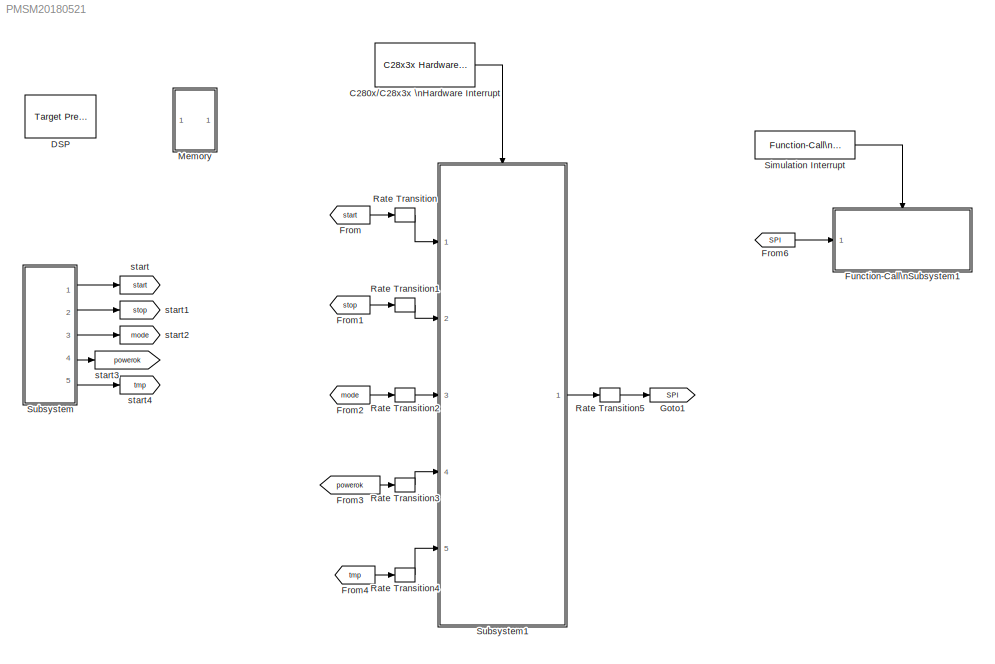
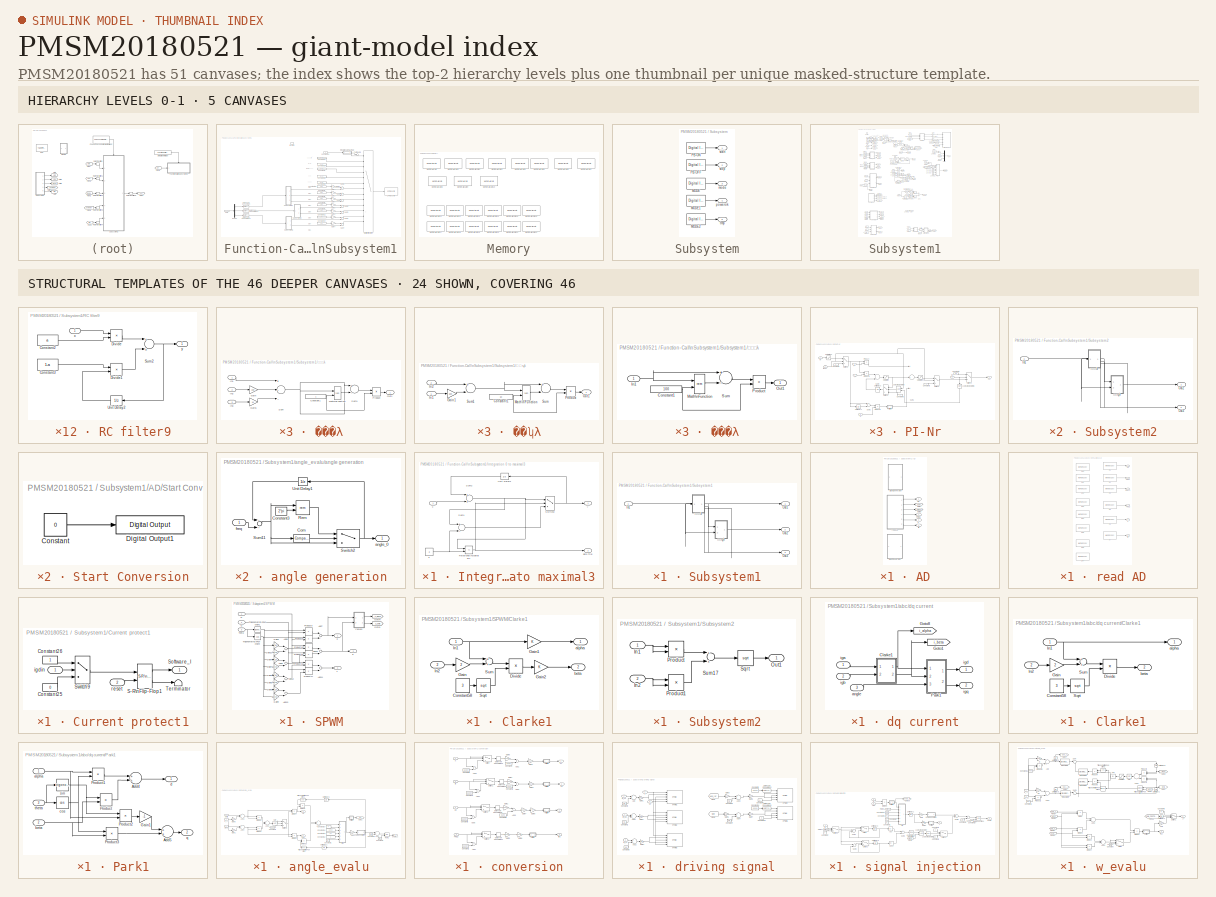
[diagram: thumbnail index - top-2 hierarchy levels (5 canvases) + 24 structural-template representatives of the remaining 46 canvases]
MODEL PMSM20180521
KIND model
BLOCK [Reference] C280x//C28x3x \nHardware Interrupt  REF=idelinklib_ticcs/C280x//C28x3x Hardware Interrupt
  Ports = [0, 1]
  SID = 26939
  SourceBlock = idelinklib_ticcs/C280x//C28x3x Hardware Interrupt
  SourceType = C280x/C28x3x Interrupt Block
  dspchiptype = C280X
  irqnumbers = [3]
  irqpreempts = [0]
  irqpriorities = [30]
  pienumbers = [1]
  showinput = off
BLOCK [Reference] DSP  REF=idelinklib_tgtpref/Target Preferences\nTemplate
  Ports = []
  SID = 30650
  SourceBlock = idelinklib_tgtpref/Target Preferences\nTemplate
  SourceType = Target Preferences
  Tag = ccslinktgtpref
  UserData = DataTag1
  UserDataPersistent = on
  library = off
BLOCK [From] From
  GotoTag = start
  SID = 22808
BLOCK [From] From1
  GotoTag = stop
  SID = 22809
BLOCK [From] From2
  GotoTag = mode
  SID = 22810
BLOCK [From] From3
  GotoTag = powerok
  SID = 22811
BLOCK [From] From4
  GotoTag = tmp
  SID = 22813
BLOCK [From] From6
  GotoTag = SPI
  SID = 30675
BLOCK [SubSystem] Function-Call\nSubsystem1
  FunctionWithSeparateData = off
  MaskHideContents = off
  MinAlgLoopOccurrences = off
  Opaque = off
  Ports = [1, 0, 0, 1]
  PropExecContextOutsideSubsystem = off
  RTWSystemCode = Auto
  RequestExecContextInheritance = off
  SID = 30676
  TreatAsAtomicUnit = on
BLOCK [Constant] Function-Call\nSubsystem1/Constant10
  OutDataTypeStr = uint16
  SID = 30679
BLOCK [Constant] Function-Call\nSubsystem1/Constant12
  OutDataTypeStr = uint16
  SID = 30680
  Value = 256
BLOCK [Constant] Function-Call\nSubsystem1/Constant14
  OutDataTypeStr = uint16
  SID = 30681
  Value = 256
BLOCK [Constant] Function-Call\nSubsystem1/Constant19
  OutDataTypeStr = uint16
  SID = 30682
  Value = 2823
BLOCK [Constant] Function-Call\nSubsystem1/Constant2
  OutDataTypeStr = uint16
  SID = 30683
  Value = 256
BLOCK [Constant] Function-Call\nSubsystem1/Constant20
  OutDataTypeStr = uint16
  SID = 30684
  Value = 3840
BLOCK [Constant] Function-Call\nSubsystem1/Constant28
  OutDataTypeStr = uint16
  SID = 30685
  Value = 256
BLOCK [Constant] Function-Call\nSubsystem1/Constant35
  OutDataTypeStr = uint16
  SID = 30686
  Value = 3073
BLOCK [Constant] Function-Call\nSubsystem1/Constant36
  OutDataTypeStr = uint16
  SID = 30687
  Value = 2566
BLOCK [Constant] Function-Call\nSubsystem1/Constant4
  OutDataTypeStr = uint16
  SID = 30688
  Value = 2559
BLOCK [Constant] Function-Call\nSubsystem1/Constant5
  OutDataTypeStr = uint16
  SID = 30689
  Value = 256
BLOCK [Constant] Function-Call\nSubsystem1/Constant7
  OutDataTypeStr = uint16
  SID = 30690
  Value = 256
BLOCK [Constant] Function-Call\nSubsystem1/Constant8
  OutDataTypeStr = uint16
  SID = 30691
  Value = 256
BLOCK [DataTypeConversion] Function-Call\nSubsystem1/Data Type Conversion
  OutDataTypeStr = uint16
  RndMeth = Floor
  SID = 30692
  SaturateOnIntegerOverflow = off
BLOCK [DataTypeConversion] Function-Call\nSubsystem1/Data Type Conversion1
  OutDataTypeStr = uint16
  RndMeth = Floor
  SID = 30693
  SaturateOnIntegerOverflow = off
BLOCK [DataTypeConversion] Function-Call\nSubsystem1/Data Type Conversion2
  OutDataTypeStr = uint16
  RndMeth = Floor
  SID = 30694
  SaturateOnIntegerOverflow = off
BLOCK [Demux] Function-Call\nSubsystem1/Demux
  DisplayOption = bar
  Outputs = 3
  Ports = [1, 3]
  SID = 30695
BLOCK [Gain] Function-Call\nSubsystem1/Gain1
  Gain = 2
  OutDataTypeStr = Inherit: Inherit via internal rule
  ParamDataTypeStr = Inherit: Inherit via internal rule
  SID = 30696
  SaturateOnIntegerOverflow = off
BLOCK [Gain] Function-Call\nSubsystem1/Gain2
  OutDataTypeStr = Inherit: Inherit via internal rule
  ParamDataTypeStr = Inherit: Inherit via internal rule
  SID = 30697
  SaturateOnIntegerOverflow = off
BLOCK [Gain] Function-Call\nSubsystem1/Gain3
  Gain = 3
  OutDataTypeStr = Inherit: Inherit via internal rule
  ParamDataTypeStr = Inherit: Inherit via internal rule
  SID = 30698
  SaturateOnIntegerOverflow = off
BLOCK [Gain] Function-Call\nSubsystem1/Gain4
  Gain = 4
  OutDataTypeStr = Inherit: Inherit via internal rule
  ParamDataTypeStr = Inherit: Inherit via internal rule
  SID = 30699
  SaturateOnIntegerOverflow = off
BLOCK [Gain] Function-Call\nSubsystem1/Gain5
  Gain = 5
  OutDataTypeStr = Inherit: Inherit via internal rule
  ParamDataTypeStr = Inherit: Inherit via internal rule
  SID = 30700
  SaturateOnIntegerOverflow = off
BLOCK [Gain] Function-Call\nSubsystem1/Gain6
  Gain = 6
  OutDataTypeStr = Inherit: Inherit via internal rule
  ParamDataTypeStr = Inherit: Inherit via internal rule
  SID = 30701
  SaturateOnIntegerOverflow = off
BLOCK [Gain] Function-Call\nSubsystem1/Gain7
  Gain = 7
  OutDataTypeStr = Inherit: Inherit via internal rule
  ParamDataTypeStr = Inherit: Inherit via internal rule
  SID = 30702
  SaturateOnIntegerOverflow = off
BLOCK [SubSystem] Function-Call\nSubsystem1/Integration 0 to maximal3
  FunctionWithSeparateData = off
  MaskEnableString = on
  MaskHideContents = off
  MaskIconFrame = on
  MaskIconOpaque = on
  MaskIconRotate = none
  MaskIconUnits = autoscale
  MaskPortRotate = default
  MaskPromptString = the maximal y
  MaskStyleString = edit
  MaskToolTipString = on
  MaskTunableValueString = on
  MaskValueString = 12
  MaskVariables = a=@1;
  MaskVisibilityString = on
  MinAlgLoopOccurrences = off
  Opaque = off
  Ports = [1, 2]
  PropExecContextOutsideSubsystem = off
  RTWSystemCode = Auto
  RequestExecContextInheritance = off
  SID = 30703
BLOCK [Constant] Function-Call\nSubsystem1/Integration 0 to maximal3/3
  OutDataTypeStr = fixdt(1,32,16)
  SID = 30705
  Value = a
BLOCK [RelationalOperator] Function-Call\nSubsystem1/Integration 0 to maximal3/Relational\nOperator1
  InputSameDT = off
  Operator = <=
  Ports = [2, 1]
  SID = 30706
BLOCK [Sum] Function-Call\nSubsystem1/Integration 0 to maximal3/Sum1
  InputSameDT = off
  Inputs = +-
  OutDataTypeStr = Inherit: Inherit via internal rule
  Ports = [2, 1]
  SID = 30707
  SaturateOnIntegerOverflow = off
BLOCK [Sum] Function-Call\nSubsystem1/Integration 0 to maximal3/Sum2
  InputSameDT = off
  OutDataTypeStr = Inherit: Inherit via internal rule
  Ports = [2, 1]
  SID = 30708
  SaturateOnIntegerOverflow = off
BLOCK [Switch] Function-Call\nSubsystem1/Integration 0 to maximal3/Switch2
  Criteria = u2 > Threshold
  SID = 30709
BLOCK [UnitDelay] Function-Call\nSubsystem1/Integration 0 to maximal3/Unit Delay1
  InputProcessing = Elements as channels (sample based)
  SID = 30710
  SampleTime = -1
BLOCK [Outport] Function-Call\nSubsystem1/Integration 0 to maximal3/Zero Trig
  IconDisplay = Port number
  Port = 2
  SID = 30712
BLOCK [Inport] Function-Call\nSubsystem1/Integration 0 to maximal3/x
  IconDisplay = Port number
  SID = 30704
BLOCK [Outport] Function-Call\nSubsystem1/Integration 0 to maximal3/y
  IconDisplay = Port number
  SID = 30711
BLOCK [MultiPortSwitch] Function-Call\nSubsystem1/Multiport\nSwitch
  DataPortForDefault = Additional data port
  InputSameDT = off
  Inputs = 12
  OutDataTypeStr = uint16
  Ports = [14, 1]
  SID = 30713
  SaturateOnIntegerOverflow = off
  zeroidx = off
BLOCK [Reference] Function-Call\nSubsystem1/SPI Transmit  REF=c280xlib/SPI Transmit
  Ports = [1]
  SID = 30714
  SourceBlock = c280xlib/SPI Transmit
  SourceType = C280x/C2833x SPI Transmit
  enableBlocking = off
  enableTxInt = off
  errFlag = off
  selectModule = SPI_A
BLOCK [Inport] Function-Call\nSubsystem1/SPI2
  IconDisplay = Port number
  SID = 30677
BLOCK [SubSystem] Function-Call\nSubsystem1/Subsystem1
  FunctionWithSeparateData = off
  MaskHideContents = off
  MinAlgLoopOccurrences = off
  Opaque = off
  Ports = [1, 3]
  PropExecContextOutsideSubsystem = off
  RTWSystemCode = Auto
  RequestExecContextInheritance = off
  SID = 30715
BLOCK [Inport] Function-Call\nSubsystem1/Subsystem1/In1
  IconDisplay = Port number
  SID = 30716
BLOCK [Outport] Function-Call\nSubsystem1/Subsystem1/Out1
  IconDisplay = Port number
  SID = 30746
BLOCK [Outport] Function-Call\nSubsystem1/Subsystem1/Out2
  IconDisplay = Port number
  Port = 2
  SID = 30747
BLOCK [Outport] Function-Call\nSubsystem1/Subsystem1/Out3
  IconDisplay = Port number
  Port = 3
  SID = 30748
BLOCK [SubSystem] Function-Call\nSubsystem1/Subsystem1/求百位
  FunctionWithSeparateData = off
  MaskHideContents = off
  MinAlgLoopOccurrences = off
  Opaque = off
  Ports = [1, 1]
  PropExecContextOutsideSubsystem = off
  RTWSystemCode = Auto
  RequestExecContextInheritance = off
  SID = 30739
BLOCK [Constant] Function-Call\nSubsystem1/Subsystem1/求百位/Constant1
  OutDataTypeStr = uint16
  SID = 30741
  Value = 100
BLOCK [Inport] Function-Call\nSubsystem1/Subsystem1/求百位/In1
  IconDisplay = Port number
  SID = 30740
BLOCK [Math] Function-Call\nSubsystem1/Subsystem1/求百位/Math\nFunction
  Operator = rem
  Ports = [2, 1]
  SID = 30742
BLOCK [Outport] Function-Call\nSubsystem1/Subsystem1/求百位/Out1
  IconDisplay = Port number
  SID = 30745
BLOCK [Product] Function-Call\nSubsystem1/Subsystem1/求百位/Product
  InputSameDT = off
  Inputs = */
  OutDataTypeStr = Inherit: Inherit via internal rule
  Ports = [2, 1]
  RndMeth = Floor
  SID = 30743
  SaturateOnIntegerOverflow = off
BLOCK [Sum] Function-Call\nSubsystem1/Subsystem1/求百位/Sum
  InputSameDT = off
  Inputs = +-
  OutDataTypeStr = Inherit: Inherit via internal rule
  Ports = [2, 1]
  SID = 30744
  SaturateOnIntegerOverflow = off
BLOCK [SubSystem] Function-Call\nSubsystem1/Subsystem1/求个位
  FunctionWithSeparateData = off
  MaskHideContents = off
  MinAlgLoopOccurrences = off
  Opaque = off
  Ports = [3, 1]
  PropExecContextOutsideSubsystem = off
  RTWSystemCode = Auto
  RequestExecContextInheritance = off
  SID = 30717
BLOCK [Constant] Function-Call\nSubsystem1/Subsystem1/求个位/Constant1
  OutDataTypeStr = uint16
  SID = 30721
BLOCK [Gain] Function-Call\nSubsystem1/Subsystem1/求个位/Gain
  Gain = 100
  OutDataTypeStr = Inherit: Inherit via internal rule
  ParamDataTypeStr = Inherit: Inherit via internal rule
  SID = 30722
  SaturateOnIntegerOverflow = off
BLOCK [Gain] Function-Call\nSubsystem1/Subsystem1/求个位/Gain1
  Gain = 10
  OutDataTypeStr = Inherit: Inherit via internal rule
  ParamDataTypeStr = Inherit: Inherit via internal rule
  SID = 30723
  SaturateOnIntegerOverflow = off
BLOCK [Inport] Function-Call\nSubsystem1/Subsystem1/求个位/In1
  IconDisplay = Port number
  SID = 30718
BLOCK [Inport] Function-Call\nSubsystem1/Subsystem1/求个位/In2
  IconDisplay = Port number
  Port = 2
  SID = 30719
BLOCK [Inport] Function-Call\nSubsystem1/Subsystem1/求个位/In3
  IconDisplay = Port number
  Port = 3
  SID = 30720
BLOCK [Math] Function-Call\nSubsystem1/Subsystem1/求个位/Math\nFunction
  Operator = rem
  Ports = [2, 1]
  SID = 30724
BLOCK [Outport] Function-Call\nSubsystem1/Subsystem1/求个位/Out1
  IconDisplay = Port number
  SID = 30728
BLOCK [Product] Function-Call\nSubsystem1/Subsystem1/求个位/Product
  InputSameDT = off
  Inputs = */
  OutDataTypeStr = Inherit: Inherit via internal rule
  Ports = [2, 1]
  RndMeth = Floor
  SID = 30725
  SaturateOnIntegerOverflow = off
BLOCK [Sum] Function-Call\nSubsystem1/Subsystem1/求个位/Sum
  AccumDataTypeStr = uint16
  InputSameDT = off
  Inputs = +--
  OutDataTypeStr = uint16
  Ports = [3, 1]
  SID = 30726
  SaturateOnIntegerOverflow = off
BLOCK [Sum] Function-Call\nSubsystem1/Subsystem1/求个位/Sum1
  InputSameDT = off
  Inputs = +-
  OutDataTypeStr = Inherit: Inherit via internal rule
  Ports = [2, 1]
  SID = 30727
  SaturateOnIntegerOverflow = off
BLOCK [SubSystem] Function-Call\nSubsystem1/Subsystem1/求十位
  FunctionWithSeparateData = off
  MaskHideContents = off
  MinAlgLoopOccurrences = off
  Opaque = off
  Ports = [2, 1]
  PropExecContextOutsideSubsystem = off
  RTWSystemCode = Auto
  RequestExecContextInheritance = off
  SID = 30729
BLOCK [Constant] Function-Call\nSubsystem1/Subsystem1/求十位/Constant1
  OutDataTypeStr = uint16
  SID = 30732
  Value = 10
BLOCK [Gain] Function-Call\nSubsystem1/Subsystem1/求十位/Gain1
  Gain = 100
  OutDataTypeStr = Inherit: Inherit via internal rule
  ParamDataTypeStr = Inherit: Inherit via internal rule
  SID = 30733
  SaturateOnIntegerOverflow = off
BLOCK [Inport] Function-Call\nSubsystem1/Subsystem1/求十位/In1
  IconDisplay = Port number
  SID = 30730
BLOCK [Inport] Function-Call\nSubsystem1/Subsystem1/求十位/In2
  IconDisplay = Port number
  Port = 2
  SID = 30731
BLOCK [Math] Function-Call\nSubsystem1/Subsystem1/求十位/Math\nFunction
  Operator = rem
  Ports = [2, 1]
  SID = 30734
BLOCK [Outport] Function-Call\nSubsystem1/Subsystem1/求十位/Out1
  IconDisplay = Port number
  SID = 30738
BLOCK [Product] Function-Call\nSubsystem1/Subsystem1/求十位/Product
  InputSameDT = off
  Inputs = */
  OutDataTypeStr = Inherit: Inherit via internal rule
  Ports = [2, 1]
  RndMeth = Floor
  SID = 30735
  SaturateOnIntegerOverflow = off
BLOCK [Sum] Function-Call\nSubsystem1/Subsystem1/求十位/Sum
  InputSameDT = off
  Inputs = +-
  OutDataTypeStr = Inherit: Inherit via internal rule
  Ports = [2, 1]
  SID = 30736
  SaturateOnIntegerOverflow = off
BLOCK [Sum] Function-Call\nSubsystem1/Subsystem1/求十位/Sum1
  InputSameDT = off
  Inputs = +-
  OutDataTypeStr = uint16
  Ports = [2, 1]
  SID = 30737
  SaturateOnIntegerOverflow = off
BLOCK [SubSystem] Function-Call\nSubsystem1/Subsystem2
  FunctionWithSeparateData = off
  MaskHideContents = off
  MinAlgLoopOccurrences = off
  Opaque = off
  Ports = [1, 2]
  PropExecContextOutsideSubsystem = off
  RTWSystemCode = Auto
  RequestExecContextInheritance = off
  SID = 30749
BLOCK [Inport] Function-Call\nSubsystem1/Subsystem2/In1
  IconDisplay = Port number
  SID = 30750
BLOCK [Outport] Function-Call\nSubsystem1/Subsystem2/Out2
  IconDisplay = Port number
  SID = 30780
BLOCK [Outport] Function-Call\nSubsystem1/Subsystem2/Out3
  IconDisplay = Port number
  Port = 2
  SID = 30781
BLOCK [SubSystem] Function-Call\nSubsystem1/Subsystem2/求百位
  FunctionWithSeparateData = off
  MaskHideContents = off
  MinAlgLoopOccurrences = off
  Opaque = off
  Ports = [1, 1]
  PropExecContextOutsideSubsystem = off
  RTWSystemCode = Auto
  RequestExecContextInheritance = off
  SID = 30773
BLOCK [Constant] Function-Call\nSubsystem1/Subsystem2/求百位/Constant1
  OutDataTypeStr = uint16
  SID = 30775
  Value = 100
BLOCK [Inport] Function-Call\nSubsystem1/Subsystem2/求百位/In1
  IconDisplay = Port number
  SID = 30774
BLOCK [Math] Function-Call\nSubsystem1/Subsystem2/求百位/Math\nFunction
  Operator = rem
  Ports = [2, 1]
  SID = 30776
BLOCK [Outport] Function-Call\nSubsystem1/Subsystem2/求百位/Out1
  IconDisplay = Port number
  SID = 30779
BLOCK [Product] Function-Call\nSubsystem1/Subsystem2/求百位/Product
  InputSameDT = off
  Inputs = */
  OutDataTypeStr = Inherit: Inherit via internal rule
  Ports = [2, 1]
  RndMeth = Floor
  SID = 30777
  SaturateOnIntegerOverflow = off
BLOCK [Sum] Function-Call\nSubsystem1/Subsystem2/求百位/Sum
  InputSameDT = off
  Inputs = +-
  OutDataTypeStr = Inherit: Inherit via internal rule
  Ports = [2, 1]
  SID = 30778
  SaturateOnIntegerOverflow = off
BLOCK [SubSystem] Function-Call\nSubsystem1/Subsystem2/求个位
  FunctionWithSeparateData = off
  MaskHideContents = off
  MinAlgLoopOccurrences = off
  Opaque = off
  Ports = [3, 1]
  PropExecContextOutsideSubsystem = off
  RTWSystemCode = Auto
  RequestExecContextInheritance = off
  SID = 30751
BLOCK [Constant] Function-Call\nSubsystem1/Subsystem2/求个位/Constant1
  OutDataTypeStr = uint16
  SID = 30755
BLOCK [Gain] Function-Call\nSubsystem1/Subsystem2/求个位/Gain
  Gain = 100
  OutDataTypeStr = Inherit: Inherit via internal rule
  ParamDataTypeStr = Inherit: Inherit via internal rule
  SID = 30756
  SaturateOnIntegerOverflow = off
BLOCK [Gain] Function-Call\nSubsystem1/Subsystem2/求个位/Gain1
  Gain = 10
  OutDataTypeStr = Inherit: Inherit via internal rule
  ParamDataTypeStr = Inherit: Inherit via internal rule
  SID = 30757
  SaturateOnIntegerOverflow = off
BLOCK [Inport] Function-Call\nSubsystem1/Subsystem2/求个位/In1
  IconDisplay = Port number
  SID = 30752
BLOCK [Inport] Function-Call\nSubsystem1/Subsystem2/求个位/In2
  IconDisplay = Port number
  Port = 2
  SID = 30753
BLOCK [Inport] Function-Call\nSubsystem1/Subsystem2/求个位/In3
  IconDisplay = Port number
  Port = 3
  SID = 30754
BLOCK [Math] Function-Call\nSubsystem1/Subsystem2/求个位/Math\nFunction
  Operator = rem
  Ports = [2, 1]
  SID = 30758
BLOCK [Outport] Function-Call\nSubsystem1/Subsystem2/求个位/Out1
  IconDisplay = Port number
  SID = 30762
BLOCK [Product] Function-Call\nSubsystem1/Subsystem2/求个位/Product
  InputSameDT = off
  Inputs = */
  OutDataTypeStr = Inherit: Inherit via internal rule
  Ports = [2, 1]
  RndMeth = Floor
  SID = 30759
  SaturateOnIntegerOverflow = off
BLOCK [Sum] Function-Call\nSubsystem1/Subsystem2/求个位/Sum
  AccumDataTypeStr = uint16
  InputSameDT = off
  Inputs = +--
  OutDataTypeStr = uint16
  Ports = [3, 1]
  SID = 30760
  SaturateOnIntegerOverflow = off
BLOCK [Sum] Function-Call\nSubsystem1/Subsystem2/求个位/Sum1
  InputSameDT = off
  Inputs = +-
  OutDataTypeStr = Inherit: Inherit via internal rule
  Ports = [2, 1]
  SID = 30761
  SaturateOnIntegerOverflow = off
BLOCK [SubSystem] Function-Call\nSubsystem1/Subsystem2/求十位
  FunctionWithSeparateData = off
  MaskHideContents = off
  MinAlgLoopOccurrences = off
  Opaque = off
  Ports = [2, 1]
  PropExecContextOutsideSubsystem = off
  RTWSystemCode = Auto
  RequestExecContextInheritance = off
  SID = 30763
BLOCK [Constant] Function-Call\nSubsystem1/Subsystem2/求十位/Constant1
  OutDataTypeStr = uint16
  SID = 30766
  Value = 10
BLOCK [Gain] Function-Call\nSubsystem1/Subsystem2/求十位/Gain1
  Gain = 100
  OutDataTypeStr = Inherit: Inherit via internal rule
  ParamDataTypeStr = Inherit: Inherit via internal rule
  SID = 30767
  SaturateOnIntegerOverflow = off
BLOCK [Inport] Function-Call\nSubsystem1/Subsystem2/求十位/In1
  IconDisplay = Port number
  SID = 30764
BLOCK [Inport] Function-Call\nSubsystem1/Subsystem2/求十位/In2
  IconDisplay = Port number
  Port = 2
  SID = 30765
BLOCK [Math] Function-Call\nSubsystem1/Subsystem2/求十位/Math\nFunction
  Operator = rem
  Ports = [2, 1]
  SID = 30768
BLOCK [Outport] Function-Call\nSubsystem1/Subsystem2/求十位/Out1
  IconDisplay = Port number
  SID = 30772
BLOCK [Product] Function-Call\nSubsystem1/Subsystem2/求十位/Product
  InputSameDT = off
  Inputs = */
  OutDataTypeStr = Inherit: Inherit via internal rule
  Ports = [2, 1]
  RndMeth = Floor
  SID = 30769
  SaturateOnIntegerOverflow = off
BLOCK [Sum] Function-Call\nSubsystem1/Subsystem2/求十位/Sum
  InputSameDT = off
  Inputs = +-
  OutDataTypeStr = Inherit: Inherit via internal rule
  Ports = [2, 1]
  SID = 30770
  SaturateOnIntegerOverflow = off
BLOCK [Sum] Function-Call\nSubsystem1/Subsystem2/求十位/Sum1
  InputSameDT = off
  Inputs = +-
  OutDataTypeStr = uint16
  Ports = [2, 1]
  SID = 30771
  SaturateOnIntegerOverflow = off
BLOCK [SubSystem] Function-Call\nSubsystem1/Subsystem3
  FunctionWithSeparateData = off
  MaskHideContents = off
  MinAlgLoopOccurrences = off
  Opaque = off
  Ports = [1, 2]
  PropExecContextOutsideSubsystem = off
  RTWSystemCode = Auto
  RequestExecContextInheritance = off
  SID = 30782
BLOCK [Inport] Function-Call\nSubsystem1/Subsystem3/In1
  IconDisplay = Port number
  SID = 30783
BLOCK [Outport] Function-Call\nSubsystem1/Subsystem3/Out2
  IconDisplay = Port number
  SID = 30813
BLOCK [Outport] Function-Call\nSubsystem1/Subsystem3/Out3
  IconDisplay = Port number
  Port = 2
  SID = 30814
BLOCK [SubSystem] Function-Call\nSubsystem1/Subsystem3/求百位
  FunctionWithSeparateData = off
  MaskHideContents = off
  MinAlgLoopOccurrences = off
  Opaque = off
  Ports = [1, 1]
  PropExecContextOutsideSubsystem = off
  RTWSystemCode = Auto
  RequestExecContextInheritance = off
  SID = 30806
BLOCK [Constant] Function-Call\nSubsystem1/Subsystem3/求百位/Constant1
  OutDataTypeStr = uint16
  SID = 30808
  Value = 100
BLOCK [Inport] Function-Call\nSubsystem1/Subsystem3/求百位/In1
  IconDisplay = Port number
  SID = 30807
BLOCK [Math] Function-Call\nSubsystem1/Subsystem3/求百位/Math\nFunction
  Operator = rem
  Ports = [2, 1]
  SID = 30809
BLOCK [Outport] Function-Call\nSubsystem1/Subsystem3/求百位/Out1
  IconDisplay = Port number
  SID = 30812
BLOCK [Product] Function-Call\nSubsystem1/Subsystem3/求百位/Product
  InputSameDT = off
  Inputs = */
  OutDataTypeStr = Inherit: Inherit via internal rule
  Ports = [2, 1]
  RndMeth = Floor
  SID = 30810
  SaturateOnIntegerOverflow = off
BLOCK [Sum] Function-Call\nSubsystem1/Subsystem3/求百位/Sum
  InputSameDT = off
  Inputs = +-
  OutDataTypeStr = Inherit: Inherit via internal rule
  Ports = [2, 1]
  SID = 30811
  SaturateOnIntegerOverflow = off
BLOCK [SubSystem] Function-Call\nSubsystem1/Subsystem3/求个位
  FunctionWithSeparateData = off
  MaskHideContents = off
  MinAlgLoopOccurrences = off
  Opaque = off
  Ports = [3, 1]
  PropExecContextOutsideSubsystem = off
  RTWSystemCode = Auto
  RequestExecContextInheritance = off
  SID = 30784
BLOCK [Constant] Function-Call\nSubsystem1/Subsystem3/求个位/Constant1
  OutDataTypeStr = uint16
  SID = 30788
BLOCK [Gain] Function-Call\nSubsystem1/Subsystem3/求个位/Gain
  Gain = 100
  OutDataTypeStr = Inherit: Inherit via internal rule
  ParamDataTypeStr = Inherit: Inherit via internal rule
  SID = 30789
  SaturateOnIntegerOverflow = off
BLOCK [Gain] Function-Call\nSubsystem1/Subsystem3/求个位/Gain1
  Gain = 10
  OutDataTypeStr = Inherit: Inherit via internal rule
  ParamDataTypeStr = Inherit: Inherit via internal rule
  SID = 30790
  SaturateOnIntegerOverflow = off
BLOCK [Inport] Function-Call\nSubsystem1/Subsystem3/求个位/In1
  IconDisplay = Port number
  SID = 30785
BLOCK [Inport] Function-Call\nSubsystem1/Subsystem3/求个位/In2
  IconDisplay = Port number
  Port = 2
  SID = 30786
BLOCK [Inport] Function-Call\nSubsystem1/Subsystem3/求个位/In3
  IconDisplay = Port number
  Port = 3
  SID = 30787
BLOCK [Math] Function-Call\nSubsystem1/Subsystem3/求个位/Math\nFunction
  Operator = rem
  Ports = [2, 1]
  SID = 30791
BLOCK [Outport] Function-Call\nSubsystem1/Subsystem3/求个位/Out1
  IconDisplay = Port number
  SID = 30795
BLOCK [Product] Function-Call\nSubsystem1/Subsystem3/求个位/Product
  InputSameDT = off
  Inputs = */
  OutDataTypeStr = Inherit: Inherit via internal rule
  Ports = [2, 1]
  RndMeth = Floor
  SID = 30792
  SaturateOnIntegerOverflow = off
BLOCK [Sum] Function-Call\nSubsystem1/Subsystem3/求个位/Sum
  AccumDataTypeStr = uint16
  InputSameDT = off
  Inputs = +--
  OutDataTypeStr = uint16
  Ports = [3, 1]
  SID = 30793
  SaturateOnIntegerOverflow = off
BLOCK [Sum] Function-Call\nSubsystem1/Subsystem3/求个位/Sum1
  InputSameDT = off
  Inputs = +-
  OutDataTypeStr = Inherit: Inherit via internal rule
  Ports = [2, 1]
  SID = 30794
  SaturateOnIntegerOverflow = off
BLOCK [SubSystem] Function-Call\nSubsystem1/Subsystem3/求十位
  FunctionWithSeparateData = off
  MaskHideContents = off
  MinAlgLoopOccurrences = off
  Opaque = off
  Ports = [2, 1]
  PropExecContextOutsideSubsystem = off
  RTWSystemCode = Auto
  RequestExecContextInheritance = off
  SID = 30796
BLOCK [Constant] Function-Call\nSubsystem1/Subsystem3/求十位/Constant1
  OutDataTypeStr = uint16
  SID = 30799
  Value = 10
BLOCK [Gain] Function-Call\nSubsystem1/Subsystem3/求十位/Gain1
  Gain = 100
  OutDataTypeStr = Inherit: Inherit via internal rule
  ParamDataTypeStr = Inherit: Inherit via internal rule
  SID = 30800
  SaturateOnIntegerOverflow = off
BLOCK [Inport] Function-Call\nSubsystem1/Subsystem3/求十位/In1
  IconDisplay = Port number
  SID = 30797
BLOCK [Inport] Function-Call\nSubsystem1/Subsystem3/求十位/In2
  IconDisplay = Port number
  Port = 2
  SID = 30798
BLOCK [Math] Function-Call\nSubsystem1/Subsystem3/求十位/Math\nFunction
  Operator = rem
  Ports = [2, 1]
  SID = 30801
BLOCK [Outport] Function-Call\nSubsystem1/Subsystem3/求十位/Out1
  IconDisplay = Port number
  SID = 30805
BLOCK [Product] Function-Call\nSubsystem1/Subsystem3/求十位/Product
  InputSameDT = off
  Inputs = */
  OutDataTypeStr = Inherit: Inherit via internal rule
  Ports = [2, 1]
  RndMeth = Floor
  SID = 30802
  SaturateOnIntegerOverflow = off
BLOCK [Sum] Function-Call\nSubsystem1/Subsystem3/求十位/Sum
  InputSameDT = off
  Inputs = +-
  OutDataTypeStr = Inherit: Inherit via internal rule
  Ports = [2, 1]
  SID = 30803
  SaturateOnIntegerOverflow = off
BLOCK [Sum] Function-Call\nSubsystem1/Subsystem3/求十位/Sum1
  InputSameDT = off
  Inputs = +-
  OutDataTypeStr = uint16
  Ports = [2, 1]
  SID = 30804
  SaturateOnIntegerOverflow = off
BLOCK [Sum] Function-Call\nSubsystem1/Sum1
  InputSameDT = off
  OutDataTypeStr = Inherit: Inherit via internal rule
  Ports = [2, 1]
  SID = 30815
  SaturateOnIntegerOverflow = off
BLOCK [Sum] Function-Call\nSubsystem1/Sum2
  InputSameDT = off
  OutDataTypeStr = Inherit: Inherit via internal rule
  Ports = [2, 1]
  SID = 30816
  SaturateOnIntegerOverflow = off
BLOCK [Sum] Function-Call\nSubsystem1/Sum3
  InputSameDT = off
  OutDataTypeStr = Inherit: Inherit via internal rule
  Ports = [2, 1]
  SID = 30817
  SaturateOnIntegerOverflow = off
BLOCK [Sum] Function-Call\nSubsystem1/Sum4
  InputSameDT = off
  OutDataTypeStr = Inherit: Inherit via internal rule
  Ports = [2, 1]
  SID = 30818
  SaturateOnIntegerOverflow = off
BLOCK [Sum] Function-Call\nSubsystem1/Sum5
  InputSameDT = off
  OutDataTypeStr = Inherit: Inherit via internal rule
  Ports = [2, 1]
  SID = 30819
  SaturateOnIntegerOverflow = off
BLOCK [Sum] Function-Call\nSubsystem1/Sum6
  InputSameDT = off
  OutDataTypeStr = Inherit: Inherit via internal rule
  Ports = [2, 1]
  SID = 30820
  SaturateOnIntegerOverflow = off
BLOCK [Sum] Function-Call\nSubsystem1/Sum7
  InputSameDT = off
  OutDataTypeStr = Inherit: Inherit via internal rule
  Ports = [2, 1]
  SID = 30821
  SaturateOnIntegerOverflow = off
BLOCK [Terminator] Function-Call\nSubsystem1/Terminator4
  SID = 30822
BLOCK [TriggerPort] Function-Call\nSubsystem1/function
  Ports = []
  SID = 30678
  StatesWhenEnabling = held
  TriggerType = function-call
BLOCK [Goto] Goto1
  GotoTag = SPI
  SID = 30843
BLOCK [SubSystem] Memory
  FunctionWithSeparateData = off
  MaskHideContents = off
  MinAlgLoopOccurrences = off
  Opaque = off
  Ports = []
  PropExecContextOutsideSubsystem = off
  RTWSystemCode = Auto
  RequestExecContextInheritance = off
  SID = 30651
BLOCK [Reference] Memory/Memory Allocate  REF=idelinklib_common/Memory Allocate
  Ports = []
  SID = 30652
  SourceBlock = idelinklib_common/Memory Allocate
  SourceType = Memory Allocate
  alignThisVariable = off
  bindMemorySection = off
  dataDimension = 1
  dataType = int16
  initialValue = 0
  initializeMemory = on
  memoryAlignmentBoundary = 4
  memorySection = mySEC1
  sectionStartAddress = hex2dec('8000')
  specifyMemorySection = off
  specifyQualifier = off
  typeQualifier = volatile
  variableName = p1
BLOCK [Reference] Memory/Memory Allocate1  REF=idelinklib_common/Memory Allocate
  Ports = []
  SID = 30653
  SourceBlock = idelinklib_common/Memory Allocate
  SourceType = Memory Allocate
  alignThisVariable = off
  bindMemorySection = off
  dataDimension = 1
  dataType = int16
  initialValue = 0
  initializeMemory = on
  memoryAlignmentBoundary = 4
  memorySection = mySEC1
  sectionStartAddress = hex2dec('8000')
  specifyMemorySection = off
  specifyQualifier = off
  typeQualifier = volatile
  variableName = p2
BLOCK [Reference] Memory/Memory Allocate10  REF=idelinklib_common/Memory Allocate
  Ports = []
  SID = 30654
  SourceBlock = idelinklib_common/Memory Allocate
  SourceType = Memory Allocate
  alignThisVariable = off
  bindMemorySection = off
  dataDimension = 1
  dataType = int16
  initialValue = 0
  initializeMemory = on
  memoryAlignmentBoundary = 4
  memorySection = mySEC1
  sectionStartAddress = hex2dec('8000')
  specifyMemorySection = off
  specifyQualifier = off
  typeQualifier = volatile
  variableName = p11
BLOCK [Reference] Memory/Memory Allocate11  REF=idelinklib_common/Memory Allocate
  Ports = []
  SID = 30655
  SourceBlock = idelinklib_common/Memory Allocate
  SourceType = Memory Allocate
  alignThisVariable = off
  bindMemorySection = off
  dataDimension = 1
  dataType = int16
  initialValue = 0
  initializeMemory = on
  memoryAlignmentBoundary = 4
  memorySection = mySEC1
  sectionStartAddress = hex2dec('8000')
  specifyMemorySection = off
  specifyQualifier = off
  typeQualifier = volatile
  variableName = data1
BLOCK [Reference] Memory/Memory Allocate12  REF=idelinklib_common/Memory Allocate
  Ports = []
  SID = 30656
  SourceBlock = idelinklib_common/Memory Allocate
  SourceType = Memory Allocate
  alignThisVariable = off
  bindMemorySection = off
  dataDimension = 1
  dataType = int16
  initialValue = 0
  initializeMemory = on
  memoryAlignmentBoundary = 4
  memorySection = mySEC1
  sectionStartAddress = hex2dec('8000')
  specifyMemorySection = off
  specifyQualifier = off
  typeQualifier = volatile
  variableName = data2
BLOCK [Reference] Memory/Memory Allocate13  REF=idelinklib_common/Memory Allocate
  Ports = []
  SID = 30657
  SourceBlock = idelinklib_common/Memory Allocate
  SourceType = Memory Allocate
  alignThisVariable = off
  bindMemorySection = off
  dataDimension = 1
  dataType = int16
  initialValue = 0
  initializeMemory = on
  memoryAlignmentBoundary = 4
  memorySection = mySEC1
  sectionStartAddress = hex2dec('8000')
  specifyMemorySection = off
  specifyQualifier = off
  typeQualifier = volatile
  variableName = data3
BLOCK [Reference] Memory/Memory Allocate14  REF=idelinklib_common/Memory Allocate
  Ports = []
  SID = 30658
  SourceBlock = idelinklib_common/Memory Allocate
  SourceType = Memory Allocate
  alignThisVariable = off
  bindMemorySection = off
  dataDimension = 1
  dataType = int16
  initialValue = 0
  initializeMemory = on
  memoryAlignmentBoundary = 4
  memorySection = mySEC1
  sectionStartAddress = hex2dec('8000')
  specifyMemorySection = off
  specifyQualifier = off
  typeQualifier = volatile
  variableName = data4
BLOCK [Reference] Memory/Memory Allocate15  REF=idelinklib_common/Memory Allocate
  Ports = []
  SID = 30659
  SourceBlock = idelinklib_common/Memory Allocate
  SourceType = Memory Allocate
  alignThisVariable = off
  bindMemorySection = off
  dataDimension = 1
  dataType = int16
  initialValue = 0
  initializeMemory = on
  memoryAlignmentBoundary = 4
  memorySection = mySEC1
  sectionStartAddress = hex2dec('8000')
  specifyMemorySection = off
  specifyQualifier = off
  typeQualifier = volatile
  variableName = data5
BLOCK [Reference] Memory/Memory Allocate16  REF=idelinklib_common/Memory Allocate
  Ports = []
  SID = 30660
  SourceBlock = idelinklib_common/Memory Allocate
  SourceType = Memory Allocate
  alignThisVariable = off
  bindMemorySection = off
  dataDimension = 1
  dataType = int16
  initialValue = 0
  initializeMemory = on
  memoryAlignmentBoundary = 4
  memorySection = mySEC1
  sectionStartAddress = hex2dec('8000')
  specifyMemorySection = off
  specifyQualifier = off
  typeQualifier = volatile
  variableName = data6
BLOCK [Reference] Memory/Memory Allocate17  REF=idelinklib_common/Memory Allocate
  Ports = []
  SID = 30661
  SourceBlock = idelinklib_common/Memory Allocate
  SourceType = Memory Allocate
  alignThisVariable = off
  bindMemorySection = off
  dataDimension = 1
  dataType = int16
  initialValue = 0
  initializeMemory = on
  memoryAlignmentBoundary = 4
  memorySection = mySEC1
  sectionStartAddress = hex2dec('8000')
  specifyMemorySection = off
  specifyQualifier = off
  typeQualifier = volatile
  variableName = data7
BLOCK [Reference] Memory/Memory Allocate18  REF=idelinklib_common/Memory Allocate
  Ports = []
  SID = 30662
  SourceBlock = idelinklib_common/Memory Allocate
  SourceType = Memory Allocate
  alignThisVariable = off
  bindMemorySection = off
  dataDimension = 1
  dataType = int16
  initialValue = 0
  initializeMemory = on
  memoryAlignmentBoundary = 4
  memorySection = mySEC1
  sectionStartAddress = hex2dec('8000')
  specifyMemorySection = off
  specifyQualifier = off
  typeQualifier = volatile
  variableName = data8
BLOCK [Reference] Memory/Memory Allocate19  REF=idelinklib_common/Memory Allocate
  Ports = []
  SID = 30663
  SourceBlock = idelinklib_common/Memory Allocate
  SourceType = Memory Allocate
  alignThisVariable = off
  bindMemorySection = off
  dataDimension = 1
  dataType = int16
  initialValue = 0
  initializeMemory = on
  memoryAlignmentBoundary = 4
  memorySection = mySEC1
  sectionStartAddress = hex2dec('8000')
  specifyMemorySection = off
  specifyQualifier = off
  typeQualifier = volatile
  variableName = data9
BLOCK [Reference] Memory/Memory Allocate2  REF=idelinklib_common/Memory Allocate
  Ports = []
  SID = 30664
  SourceBlock = idelinklib_common/Memory Allocate
  SourceType = Memory Allocate
  alignThisVariable = off
  bindMemorySection = off
  dataDimension = 1
  dataType = int16
  initialValue = 0
  initializeMemory = on
  memoryAlignmentBoundary = 4
  memorySection = mySEC1
  sectionStartAddress = hex2dec('8000')
  specifyMemorySection = off
  specifyQualifier = off
  typeQualifier = volatile
  variableName = p3
BLOCK [Reference] Memory/Memory Allocate20  REF=idelinklib_common/Memory Allocate
  Ports = []
  SID = 30665
  SourceBlock = idelinklib_common/Memory Allocate
  SourceType = Memory Allocate
  alignThisVariable = off
  bindMemorySection = off
  dataDimension = 1
  dataType = int16
  initialValue = 0
  initializeMemory = on
  memoryAlignmentBoundary = 4
  memorySection = mySEC1
  sectionStartAddress = hex2dec('8000')
  specifyMemorySection = off
  specifyQualifier = off
  typeQualifier = volatile
  variableName = data10
BLOCK [Reference] Memory/Memory Allocate21  REF=idelinklib_common/Memory Allocate
  Ports = []
  SID = 30666
  SourceBlock = idelinklib_common/Memory Allocate
  SourceType = Memory Allocate
  alignThisVariable = off
  bindMemorySection = off
  dataDimension = 1
  dataType = int16
  initialValue = 0
  initializeMemory = on
  memoryAlignmentBoundary = 4
  memorySection = mySEC1
  sectionStartAddress = hex2dec('8000')
  specifyMemorySection = off
  specifyQualifier = off
  typeQualifier = volatile
  variableName = data11
BLOCK [Reference] Memory/Memory Allocate22  REF=idelinklib_common/Memory Allocate
  Ports = []
  SID = 30667
  SourceBlock = idelinklib_common/Memory Allocate
  SourceType = Memory Allocate
  alignThisVariable = off
  bindMemorySection = off
  dataDimension = 1
  dataType = int16
  initialValue = 0
  initializeMemory = on
  memoryAlignmentBoundary = 4
  memorySection = mySEC1
  sectionStartAddress = hex2dec('8000')
  specifyMemorySection = off
  specifyQualifier = off
  typeQualifier = volatile
  variableName = data12
BLOCK [Reference] Memory/Memory Allocate3  REF=idelinklib_common/Memory Allocate
  Ports = []
  SID = 30668
  SourceBlock = idelinklib_common/Memory Allocate
  SourceType = Memory Allocate
  alignThisVariable = off
  bindMemorySection = off
  dataDimension = 1
  dataType = int16
  initialValue = 0
  initializeMemory = on
  memoryAlignmentBoundary = 4
  memorySection = mySEC1
  sectionStartAddress = hex2dec('8000')
  specifyMemorySection = off
  specifyQualifier = off
  typeQualifier = volatile
  variableName = p4
BLOCK [Reference] Memory/Memory Allocate4  REF=idelinklib_common/Memory Allocate
  Ports = []
  SID = 30669
  SourceBlock = idelinklib_common/Memory Allocate
  SourceType = Memory Allocate
  alignThisVariable = off
  bindMemorySection = off
  dataDimension = 1
  dataType = int16
  initialValue = 0
  initializeMemory = on
  memoryAlignmentBoundary = 4
  memorySection = mySEC1
  sectionStartAddress = hex2dec('8000')
  specifyMemorySection = off
  specifyQualifier = off
  typeQualifier = volatile
  variableName = p5
BLOCK [Reference] Memory/Memory Allocate5  REF=idelinklib_common/Memory Allocate
  Ports = []
  SID = 30670
  SourceBlock = idelinklib_common/Memory Allocate
  SourceType = Memory Allocate
  alignThisVariable = off
  bindMemorySection = off
  dataDimension = 1
  dataType = int16
  initialValue = 0
  initializeMemory = on
  memoryAlignmentBoundary = 4
  memorySection = mySEC1
  sectionStartAddress = hex2dec('8000')
  specifyMemorySection = off
  specifyQualifier = off
  typeQualifier = volatile
  variableName = p6
BLOCK [Reference] Memory/Memory Allocate6  REF=idelinklib_common/Memory Allocate
  Ports = []
  SID = 30671
  SourceBlock = idelinklib_common/Memory Allocate
  SourceType = Memory Allocate
  alignThisVariable = off
  bindMemorySection = off
  dataDimension = 1
  dataType = int16
  initialValue = 0
  initializeMemory = on
  memoryAlignmentBoundary = 4
  memorySection = mySEC1
  sectionStartAddress = hex2dec('8000')
  specifyMemorySection = off
  specifyQualifier = off
  typeQualifier = volatile
  variableName = p7
BLOCK [Reference] Memory/Memory Allocate7  REF=idelinklib_common/Memory Allocate
  Ports = []
  SID = 30672
  SourceBlock = idelinklib_common/Memory Allocate
  SourceType = Memory Allocate
  alignThisVariable = off
  bindMemorySection = off
  dataDimension = 1
  dataType = int16
  initialValue = 0
  initializeMemory = on
  memoryAlignmentBoundary = 4
  memorySection = mySEC1
  sectionStartAddress = hex2dec('8000')
  specifyMemorySection = off
  specifyQualifier = off
  typeQualifier = volatile
  variableName = p8
BLOCK [Reference] Memory/Memory Allocate8  REF=idelinklib_common/Memory Allocate
  Ports = []
  SID = 30673
  SourceBlock = idelinklib_common/Memory Allocate
  SourceType = Memory Allocate
  alignThisVariable = off
  bindMemorySection = off
  dataDimension = 1
  dataType = int16
  initialValue = 0
  initializeMemory = on
  memoryAlignmentBoundary = 4
  memorySection = mySEC1
  sectionStartAddress = hex2dec('8000')
  specifyMemorySection = off
  specifyQualifier = off
  typeQualifier = volatile
  variableName = p9
BLOCK [Reference] Memory/Memory Allocate9  REF=idelinklib_common/Memory Allocate
  Ports = []
  SID = 30674
  SourceBlock = idelinklib_common/Memory Allocate
  SourceType = Memory Allocate
  alignThisVariable = off
  bindMemorySection = off
  dataDimension = 1
  dataType = int16
  initialValue = 0
  initializeMemory = on
  memoryAlignmentBoundary = 4
  memorySection = mySEC1
  sectionStartAddress = hex2dec('8000')
  specifyMemorySection = off
  specifyQualifier = off
  typeQualifier = volatile
  variableName = p10
BLOCK [RateTransition] Rate Transition
  Integrity = off
  SID = 22825
BLOCK [RateTransition] Rate Transition1
  Integrity = off
  SID = 23158
BLOCK [RateTransition] Rate Transition2
  Integrity = off
  SID = 23159
BLOCK [RateTransition] Rate Transition3
  Integrity = off
  SID = 23160
BLOCK [RateTransition] Rate Transition4
  Integrity = off
  SID = 23161
BLOCK [RateTransition] Rate Transition5
  Integrity = off
  SID = 30844
BLOCK [Reference] Simulation Interrupt  REF=simulink/Ports &\nSubsystems/Function-Call\nGenerator
  Ports = [0, 1]
  SID = 30837
  SourceBlock = simulink/Ports &\nSubsystems/Function-Call\nGenerator
  SourceType = Function-Call Generator
  numberOfIterations = 1
  sample_time = 0.005
BLOCK [SubSystem] Subsystem
  FunctionWithSeparateData = off
  MaskHideContents = off
  MinAlgLoopOccurrences = off
  Opaque = off
  Ports = [0, 5]
  PropExecContextOutsideSubsystem = off
  RTWSystemCode = Auto
  RequestExecContextInheritance = off
  SID = 1973
BLOCK [Reference] Subsystem/MODE  REF=c2833xlib/Digital Input
  GPIO_Bit0 = on
  GPIO_Bit0_Qualification = Sync to SYSCLKOUT
  GPIO_Bit1 = off
  GPIO_Bit1_Qualification = Sync to SYSCLKOUT
  GPIO_Bit2 = off
  GPIO_Bit2_Qualification = Sync to SYSCLKOUT
  GPIO_Bit3 = off
  GPIO_Bit3_Qualification = Sync to SYSCLKOUT
  GPIO_Bit4 = off
  GPIO_Bit4_Qualification = Sync to SYSCLKOUT
  GPIO_Bit5 = off
  GPIO_Bit5_Qualification = Sync to SYSCLKOUT
  GPIO_Bit6 = off
  GPIO_Bit6_Qualification = Sync to SYSCLKOUT
  GPIO_Bit7 = off
  GPIO_Bit7_Qualification = Sync to SYSCLKOUT
  GPIO_Number = GPIO40~GPIO47
  Ports = [0, 1]
  Qualification_Period = -1
  SID = 22757
  SourceBlock = c2833xlib/Digital Input
  SourceType = C2833x GPIO Digital Input
  UserData = DataTag2
  UserDataPersistent = on
  dataType = boolean
  sampleTime = -1
BLOCK [Reference] Subsystem/MODE1  REF=c2833xlib/Digital Input
  GPIO_Bit0 = off
  GPIO_Bit0_Qualification = Sync to SYSCLKOUT
  GPIO_Bit1 = on
  GPIO_Bit1_Qualification = Sync to SYSCLKOUT
  GPIO_Bit2 = off
  GPIO_Bit2_Qualification = Sync to SYSCLKOUT
  GPIO_Bit3 = off
  GPIO_Bit3_Qualification = Sync to SYSCLKOUT
  GPIO_Bit4 = off
  GPIO_Bit4_Qualification = Sync to SYSCLKOUT
  GPIO_Bit5 = off
  GPIO_Bit5_Qualification = Sync to SYSCLKOUT
  GPIO_Bit6 = off
  GPIO_Bit6_Qualification = Sync to SYSCLKOUT
  GPIO_Bit7 = off
  GPIO_Bit7_Qualification = Sync to SYSCLKOUT
  GPIO_Number = GPIO32~GPIO39
  Ports = [0, 1]
  Qualification_Period = -1
  SID = 22778
  SourceBlock = c2833xlib/Digital Input
  SourceType = C2833x GPIO Digital Input
  UserData = DataTag3
  UserDataPersistent = on
  dataType = boolean
  sampleTime = -1
BLOCK [Reference] Subsystem/MODE2  REF=c2833xlib/Digital Input
  GPIO_Bit0 = on
  GPIO_Bit0_Qualification = Sync to SYSCLKOUT
  GPIO_Bit1 = off
  GPIO_Bit1_Qualification = Sync to SYSCLKOUT
  GPIO_Bit2 = off
  GPIO_Bit2_Qualification = Sync to SYSCLKOUT
  GPIO_Bit3 = off
  GPIO_Bit3_Qualification = Sync to SYSCLKOUT
  GPIO_Bit4 = off
  GPIO_Bit4_Qualification = Sync to SYSCLKOUT
  GPIO_Bit5 = off
  GPIO_Bit5_Qualification = Sync to SYSCLKOUT
  GPIO_Bit6 = off
  GPIO_Bit6_Qualification = Sync to SYSCLKOUT
  GPIO_Bit7 = off
  GPIO_Bit7_Qualification = Sync to SYSCLKOUT
  GPIO_Number = GPIO32~GPIO39
  Ports = [0, 1]
  Qualification_Period = -1
  SID = 22779
  SourceBlock = c2833xlib/Digital Input
  SourceType = C2833x GPIO Digital Input
  UserData = DataTag4
  UserDataPersistent = on
  dataType = boolean
  sampleTime = -1
BLOCK [Reference] Subsystem/PB-OFF  REF=c2833xlib/Digital Input
  GPIO_Bit0 = off
  GPIO_Bit0_Qualification = Sync to SYSCLKOUT
  GPIO_Bit1 = off
  GPIO_Bit1_Qualification = Sync to SYSCLKOUT
  GPIO_Bit2 = on
  GPIO_Bit2_Qualification = Sync to SYSCLKOUT
  GPIO_Bit3 = off
  GPIO_Bit3_Qualification = Sync to SYSCLKOUT
  GPIO_Bit4 = off
  GPIO_Bit4_Qualification = Sync to SYSCLKOUT
  GPIO_Bit5 = off
  GPIO_Bit5_Qualification = Sync to SYSCLKOUT
  GPIO_Bit6 = off
  GPIO_Bit6_Qualification = Sync to SYSCLKOUT
  GPIO_Bit7 = off
  GPIO_Bit7_Qualification = Sync to SYSCLKOUT
  GPIO_Number = GPIO32~GPIO39
  Ports = [0, 1]
  Qualification_Period = -1
  SID = 22756
  SourceBlock = c2833xlib/Digital Input
  SourceType = C2833x GPIO Digital Input
  UserData = DataTag5
  UserDataPersistent = on
  dataType = boolean
  sampleTime = -1
BLOCK [Reference] Subsystem/PB-ON  REF=c2833xlib/Digital Input
  GPIO_Bit0 = off
  GPIO_Bit0_Qualification = Sync to SYSCLKOUT
  GPIO_Bit1 = off
  GPIO_Bit1_Qualification = Sync to SYSCLKOUT
  GPIO_Bit2 = off
  GPIO_Bit2_Qualification = Sync to SYSCLKOUT
  GPIO_Bit3 = on
  GPIO_Bit3_Qualification = Sync to SYSCLKOUT
  GPIO_Bit4 = off
  GPIO_Bit4_Qualification = Sync to SYSCLKOUT
  GPIO_Bit5 = off
  GPIO_Bit5_Qualification = Sync to SYSCLKOUT
  GPIO_Bit6 = off
  GPIO_Bit6_Qualification = Sync to SYSCLKOUT
  GPIO_Bit7 = off
  GPIO_Bit7_Qualification = Sync to SYSCLKOUT
  GPIO_Number = GPIO32~GPIO39
  Ports = [0, 1]
  Qualification_Period = -1
  SID = 22755
  SourceBlock = c2833xlib/Digital Input
  SourceType = C2833x GPIO Digital Input
  UserData = DataTag6
  UserDataPersistent = on
  dataType = boolean
  sampleTime = -1
BLOCK [Outport] Subsystem/mode
  IconDisplay = Port number
  Port = 3
  SID = 22758
BLOCK [Outport] Subsystem/powerok
  IconDisplay = Port number
  Port = 4
  SID = 22781
BLOCK [Outport] Subsystem/start
  IconDisplay = Port number
  SID = 1980
BLOCK [Outport] Subsystem/stop
  IconDisplay = Port number
  Port = 2
  SID = 1981
BLOCK [Outport] Subsystem/tmp
  IconDisplay = Port number
  Port = 5
  SID = 22782
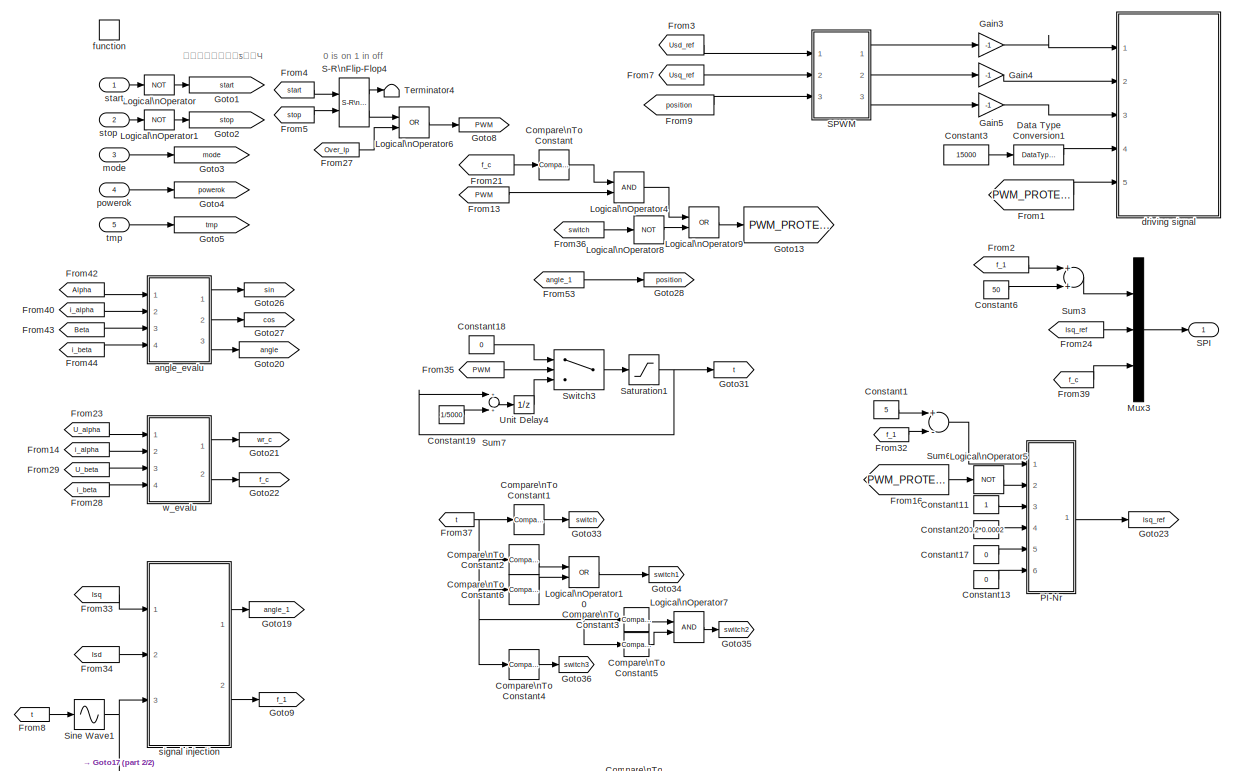
[diagram: Subsystem1 - part 1/2, full width, top band]
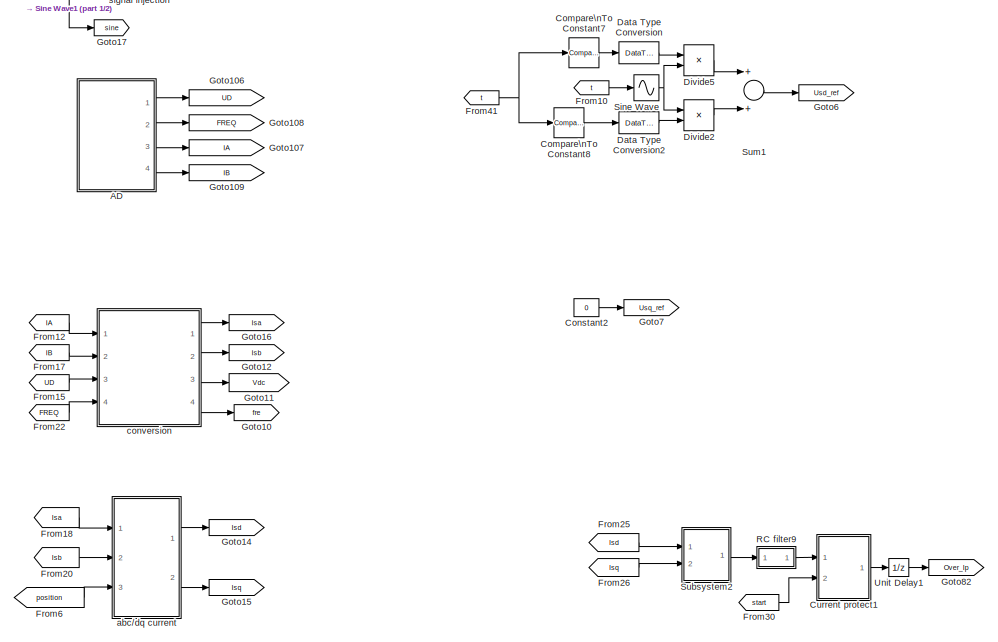
[diagram: Subsystem1 - part 2/2, full width, bottom band]
BLOCK [SubSystem] Subsystem1
  FunctionWithSeparateData = off
  MaskHideContents = off
  MinAlgLoopOccurrences = off
  Opaque = off
  Ports = [5, 1, 0, 1]
  PropExecContextOutsideSubsystem = off
  RTWSystemCode = Auto
  RequestExecContextInheritance = off
  SID = 22796
BLOCK [SubSystem] Subsystem1/AD
  FunctionWithSeparateData = off
  MaskHideContents = off
  MinAlgLoopOccurrences = off
  Opaque = off
  Ports = [0, 4]
  PropExecContextOutsideSubsystem = off
  RTWSystemCode = Auto
  RequestExecContextInheritance = off
  SID = 28198
BLOCK [Outport] Subsystem1/AD/FREQ
  IconDisplay = Port number
  Port = 2
  SID = 28229
BLOCK [Goto] Subsystem1/AD/Goto7
  GotoTag = UOUT
  SID = 28199
BLOCK [Goto] Subsystem1/AD/Goto9
  GotoTag = UOUT1
  SID = 28200
BLOCK [Outport] Subsystem1/AD/IA
  IconDisplay = Port number
  Port = 3
  SID = 28230
BLOCK [Outport] Subsystem1/AD/IB
  IconDisplay = Port number
  Port = 4
  SID = 28231
BLOCK [SubSystem] Subsystem1/AD/Start Conversion
  FunctionWithSeparateData = off
  MaskHideContents = off
  MinAlgLoopOccurrences = off
  Opaque = off
  Ports = []
  Priority = 1
  PropExecContextOutsideSubsystem = off
  RTWSystemCode = Auto
  RequestExecContextInheritance = off
  SID = 28201
BLOCK [Constant] Subsystem1/AD/Start Conversion/Constant
  OutDataTypeStr = boolean
  SID = 28202
  Value = 0
BLOCK [Reference] Subsystem1/AD/Start Conversion/Digital Output1  REF=c2833xlib/Digital Output
  GPIO_BIT0_Toggle = off
  GPIO_BIT1_Toggle = off
  GPIO_BIT2_Toggle = off
  GPIO_BIT3_Toggle = off
  GPIO_BIT4_Toggle = off
  GPIO_BIT5_Toggle = off
  GPIO_BIT6_Toggle = off
  GPIO_BIT7_Toggle = off
  GPIO_Bit0 = off
  GPIO_Bit1 = on
  GPIO_Bit2 = off
  GPIO_Bit3 = off
  GPIO_Bit4 = off
  GPIO_Bit5 = off
  GPIO_Bit6 = off
  GPIO_Bit7 = off
  GPIO_Number = GPIO48~GPIO55
  Ports = [1]
  Priority = 1
  SID = 28203
  SourceBlock = c2833xlib/Digital Output
  SourceType = C2833x GPIO Digital Output
  UserData = DataTag7
  UserDataPersistent = on
BLOCK [SubSystem] Subsystem1/AD/Stop Conversion
  FunctionWithSeparateData = off
  MaskHideContents = off
  MinAlgLoopOccurrences = off
  Opaque = off
  Ports = []
  Priority = 3
  PropExecContextOutsideSubsystem = off
  RTWSystemCode = Auto
  RequestExecContextInheritance = off
  SID = 28204
BLOCK [Constant] Subsystem1/AD/Stop Conversion/Constant12
  OutDataTypeStr = boolean
  SID = 28205
BLOCK [Reference] Subsystem1/AD/Stop Conversion/Digital Output13  REF=c2833xlib/Digital Output
  GPIO_BIT0_Toggle = off
  GPIO_BIT1_Toggle = off
  GPIO_BIT2_Toggle = off
  GPIO_BIT3_Toggle = off
  GPIO_BIT4_Toggle = off
  GPIO_BIT5_Toggle = off
  GPIO_BIT6_Toggle = off
  GPIO_BIT7_Toggle = off
  GPIO_Bit0 = off
  GPIO_Bit1 = on
  GPIO_Bit2 = off
  GPIO_Bit3 = off
  GPIO_Bit4 = off
  GPIO_Bit5 = off
  GPIO_Bit6 = off
  GPIO_Bit7 = off
  GPIO_Number = GPIO48~GPIO55
  Ports = [1]
  Priority = 8
  SID = 28206
  SourceBlock = c2833xlib/Digital Output
  SourceType = C2833x GPIO Digital Output
  UserData = DataTag8
  UserDataPersistent = on
BLOCK [Outport] Subsystem1/AD/UD
  IconDisplay = Port number
  SID = 28228
BLOCK [SubSystem] Subsystem1/AD/read AD
  FunctionWithSeparateData = off
  MaskHideContents = off
  MinAlgLoopOccurrences = off
  Opaque = off
  Ports = [0, 6]
  PropExecContextOutsideSubsystem = off
  RTWSystemCode = Auto
  RequestExecContextInheritance = off
  SID = 28207
BLOCK [Reference] Subsystem1/AD/read AD/CH0  REF=idelinklib_common/Memory Copy
  CCAfterWrite = /* Custom Code After Write*/
  CCBeforeWrite = /* Custom Code Before Write*/
  Ports = []
  SID = 28208
  SourceBlock = idelinklib_common/Memory Copy
  SourceType = Memory Copy
  copyFrom = Specified address
  copyFromAddress = hex2dec('00200000')
  copyFromAddressSource = Specify via dialog
  copyFromSrcCode = myVariableSrc
  copyTo = Specified source code symbol
  copyToAddress = hex2dec('00002000')
  copyToAddressSource = Specify via dialog
  copyToSrcCode = p1
  dataDimensionFrom = 1
  dataTypeFrom = int16
  dataTypeTo = int16
  emitCCAfterWrite = off
  emitCCBeforeWrite = off
  enableBlockingMode = off
  initValue = 1
  initValueSrc = Specify constant value
  initValueSrcCode = myInitValueVariable
  isRealtimeEnabled = off
  maskOperator = bitwise AND
  offsetFrom = 0
  offsetFromSrc = Specify via dialog
  offsetTo = 0
  offsetToSrc = Specify via dialog
  sampleTime = inf
  strideFrom = 1
  strideTo = 1
  termValue = 1
  useAsMask = off
  useDMACopy = off
  useInitValue = off
  useOffsetFrom = off
  useOffsetTo = off
  useTermValue = off
BLOCK [Reference] Subsystem1/AD/read AD/CH1  REF=idelinklib_common/Memory Copy
  CCAfterWrite = /* Custom Code After Write*/
  CCBeforeWrite = /* Custom Code Before Write*/
  Ports = []
  SID = 28209
  SourceBlock = idelinklib_common/Memory Copy
  SourceType = Memory Copy
  copyFrom = Specified address
  copyFromAddress = hex2dec('00200000')
  copyFromAddressSource = Specify via dialog
  copyFromSrcCode = myVariableSrc
  copyTo = Specified source code symbol
  copyToAddress = hex2dec('00002000')
  copyToAddressSource = Specify via dialog
  copyToSrcCode = p2
  dataDimensionFrom = 1
  dataTypeFrom = int16
  dataTypeTo = int16
  emitCCAfterWrite = off
  emitCCBeforeWrite = off
  enableBlockingMode = off
  initValue = 1
  initValueSrc = Specify constant value
  initValueSrcCode = myInitValueVariable
  isRealtimeEnabled = off
  maskOperator = bitwise AND
  offsetFrom = 0
  offsetFromSrc = Specify via dialog
  offsetTo = 0
  offsetToSrc = Specify via dialog
  sampleTime = inf
  strideFrom = 1
  strideTo = 1
  termValue = 1
  useAsMask = off
  useDMACopy = off
  useInitValue = off
  useOffsetFrom = off
  useOffsetTo = off
  useTermValue = off
BLOCK [Reference] Subsystem1/AD/read AD/CH2  REF=idelinklib_common/Memory Copy
  CCAfterWrite = /* Custom Code After Write*/
  CCBeforeWrite = /* Custom Code Before Write*/
  Ports = []
  SID = 28210
  SourceBlock = idelinklib_common/Memory Copy
  SourceType = Memory Copy
  copyFrom = Specified address
  copyFromAddress = hex2dec('00200000')
  copyFromAddressSource = Specify via dialog
  copyFromSrcCode = myVariableSrc
  copyTo = Specified source code symbol
  copyToAddress = hex2dec('00002000')
  copyToAddressSource = Specify via dialog
  copyToSrcCode = p3
  dataDimensionFrom = 1
  dataTypeFrom = int16
  dataTypeTo = int16
  emitCCAfterWrite = off
  emitCCBeforeWrite = off
  enableBlockingMode = off
  initValue = 1
  initValueSrc = Specify constant value
  initValueSrcCode = myInitValueVariable
  isRealtimeEnabled = off
  maskOperator = bitwise AND
  offsetFrom = 0
  offsetFromSrc = Specify via dialog
  offsetTo = 0
  offsetToSrc = Specify via dialog
  sampleTime = inf
  strideFrom = 1
  strideTo = 1
  termValue = 1
  useAsMask = off
  useDMACopy = off
  useInitValue = off
  useOffsetFrom = off
  useOffsetTo = off
  useTermValue = off
BLOCK [Reference] Subsystem1/AD/read AD/CH3  REF=idelinklib_common/Memory Copy
  CCAfterWrite = /* Custom Code After Write*/
  CCBeforeWrite = /* Custom Code Before Write*/
  Ports = []
  SID = 28211
  SourceBlock = idelinklib_common/Memory Copy
  SourceType = Memory Copy
  copyFrom = Specified address
  copyFromAddress = hex2dec('00200000')
  copyFromAddressSource = Specify via dialog
  copyFromSrcCode = myVariableSrc
  copyTo = Specified source code symbol
  copyToAddress = hex2dec('00002000')
  copyToAddressSource = Specify via dialog
  copyToSrcCode = p4
  dataDimensionFrom = 1
  dataTypeFrom = int16
  dataTypeTo = int16
  emitCCAfterWrite = off
  emitCCBeforeWrite = off
  enableBlockingMode = off
  initValue = 1
  initValueSrc = Specify constant value
  initValueSrcCode = myInitValueVariable
  isRealtimeEnabled = off
  maskOperator = bitwise AND
  offsetFrom = 0
  offsetFromSrc = Specify via dialog
  offsetTo = 0
  offsetToSrc = Specify via dialog
  sampleTime = inf
  strideFrom = 1
  strideTo = 1
  termValue = 1
  useAsMask = off
  useDMACopy = off
  useInitValue = off
  useOffsetFrom = off
  useOffsetTo = off
  useTermValue = off
BLOCK [Reference] Subsystem1/AD/read AD/CH4  REF=idelinklib_common/Memory Copy
  CCAfterWrite = /* Custom Code After Write*/
  CCBeforeWrite = /* Custom Code Before Write*/
  Ports = []
  SID = 28212
  SourceBlock = idelinklib_common/Memory Copy
  SourceType = Memory Copy
  copyFrom = Specified address
  copyFromAddress = hex2dec('00200000')
  copyFromAddressSource = Specify via dialog
  copyFromSrcCode = myVariableSrc
  copyTo = Specified source code symbol
  copyToAddress = hex2dec('00002000')
  copyToAddressSource = Specify via dialog
  copyToSrcCode = p5
  dataDimensionFrom = 1
  dataTypeFrom = int16
  dataTypeTo = int16
  emitCCAfterWrite = off
  emitCCBeforeWrite = off
  enableBlockingMode = off
  initValue = 1
  initValueSrc = Specify constant value
  initValueSrcCode = myInitValueVariable
  isRealtimeEnabled = off
  maskOperator = bitwise AND
  offsetFrom = 0
  offsetFromSrc = Specify via dialog
  offsetTo = 0
  offsetToSrc = Specify via dialog
  sampleTime = inf
  strideFrom = 1
  strideTo = 1
  termValue = 1
  useAsMask = off
  useDMACopy = off
  useInitValue = off
  useOffsetFrom = off
  useOffsetTo = off
  useTermValue = off
BLOCK [Reference] Subsystem1/AD/read AD/CH5  REF=idelinklib_common/Memory Copy
  CCAfterWrite = /* Custom Code After Write*/
  CCBeforeWrite = /* Custom Code Before Write*/
  Ports = []
  SID = 28213
  SourceBlock = idelinklib_common/Memory Copy
  SourceType = Memory Copy
  copyFrom = Specified address
  copyFromAddress = hex2dec('00200000')
  copyFromAddressSource = Specify via dialog
  copyFromSrcCode = myVariableSrc
  copyTo = Specified source code symbol
  copyToAddress = hex2dec('00002000')
  copyToAddressSource = Specify via dialog
  copyToSrcCode = p6
  dataDimensionFrom = 1
  dataTypeFrom = int16
  dataTypeTo = int16
  emitCCAfterWrite = off
  emitCCBeforeWrite = off
  enableBlockingMode = off
  initValue = 1
  initValueSrc = Specify constant value
  initValueSrcCode = myInitValueVariable
  isRealtimeEnabled = off
  maskOperator = bitwise AND
  offsetFrom = 0
  offsetFromSrc = Specify via dialog
  offsetTo = 0
  offsetToSrc = Specify via dialog
  sampleTime = inf
  strideFrom = 1
  strideTo = 1
  termValue = 1
  useAsMask = off
  useDMACopy = off
  useInitValue = off
  useOffsetFrom = off
  useOffsetTo = off
  useTermValue = off
BLOCK [Reference] Subsystem1/AD/read AD/CH6  REF=idelinklib_common/Memory Copy
  CCAfterWrite = /* Custom Code After Write*/
  CCBeforeWrite = /* Custom Code Before Write*/
  Ports = []
  SID = 28214
  SourceBlock = idelinklib_common/Memory Copy
  SourceType = Memory Copy
  copyFrom = Specified address
  copyFromAddress = hex2dec('00200000')
  copyFromAddressSource = Specify via dialog
  copyFromSrcCode = myVariableSrc
  copyTo = Specified source code symbol
  copyToAddress = hex2dec('00002000')
  copyToAddressSource = Specify via dialog
  copyToSrcCode = p7
  dataDimensionFrom = 1
  dataTypeFrom = int16
  dataTypeTo = int16
  emitCCAfterWrite = off
  emitCCBeforeWrite = off
  enableBlockingMode = off
  initValue = 1
  initValueSrc = Specify constant value
  initValueSrcCode = myInitValueVariable
  isRealtimeEnabled = off
  maskOperator = bitwise AND
  offsetFrom = 0
  offsetFromSrc = Specify via dialog
  offsetTo = 0
  offsetToSrc = Specify via dialog
  sampleTime = inf
  strideFrom = 1
  strideTo = 1
  termValue = 1
  useAsMask = off
  useDMACopy = off
  useInitValue = off
  useOffsetFrom = off
  useOffsetTo = off
  useTermValue = off
BLOCK [Reference] Subsystem1/AD/read AD/CH7  REF=idelinklib_common/Memory Copy
  CCAfterWrite = /* Custom Code After Write*/
  CCBeforeWrite = /* Custom Code Before Write*/
  Ports = []
  SID = 28215
  SourceBlock = idelinklib_common/Memory Copy
  SourceType = Memory Copy
  copyFrom = Specified address
  copyFromAddress = hex2dec('00200000')
  copyFromAddressSource = Specify via dialog
  copyFromSrcCode = myVariableSrc
  copyTo = Specified source code symbol
  copyToAddress = hex2dec('00002000')
  copyToAddressSource = Specify via dialog
  copyToSrcCode = p8
  dataDimensionFrom = 1
  dataTypeFrom = int16
  dataTypeTo = int16
  emitCCAfterWrite = off
  emitCCBeforeWrite = off
  enableBlockingMode = off
  initValue = 1
  initValueSrc = Specify constant value
  initValueSrcCode = myInitValueVariable
  isRealtimeEnabled = off
  maskOperator = bitwise AND
  offsetFrom = 0
  offsetFromSrc = Specify via dialog
  offsetTo = 0
  offsetToSrc = Specify via dialog
  sampleTime = inf
  strideFrom = 1
  strideTo = 1
  termValue = 1
  useAsMask = off
  useDMACopy = off
  useInitValue = off
  useOffsetFrom = off
  useOffsetTo = off
  useTermValue = off
BLOCK [Outport] Subsystem1/AD/read AD/FREQ
  IconDisplay = Port number
  Port = 4
  SID = 28225
BLOCK [Outport] Subsystem1/AD/read AD/IA
  IconDisplay = Port number
  Port = 5
  SID = 28226
BLOCK [Outport] Subsystem1/AD/read AD/IB
  IconDisplay = Port number
  Port = 6
  SID = 28227
BLOCK [Outport] Subsystem1/AD/read AD/UD
  IconDisplay = Port number
  SID = 28222
BLOCK [Outport] Subsystem1/AD/read AD/UOUT
  IconDisplay = Port number
  Port = 2
  SID = 28223
BLOCK [Outport] Subsystem1/AD/read AD/UOUT1
  IconDisplay = Port number
  Port = 3
  SID = 28224
BLOCK [Reference] Subsystem1/AD/read AD/p1  REF=idelinklib_common/Memory Copy
  CCAfterWrite = /* Custom Code After Write*/
  CCBeforeWrite = /* Custom Code Before Write*/
  Ports = [0, 1]
  SID = 28216
  SourceBlock = idelinklib_common/Memory Copy
  SourceType = Memory Copy
  copyFrom = Specified source code symbol
  copyFromAddress = hex2dec('00200000')
  copyFromAddressSource = Specify via dialog
  copyFromSrcCode = p1
  copyTo = Output port
  copyToAddress = hex2dec('00002000')
  copyToAddressSource = Specify via dialog
  copyToSrcCode = p1
  dataDimensionFrom = 1
  dataTypeFrom = int16
  dataTypeTo = int16
  emitCCAfterWrite = off
  emitCCBeforeWrite = off
  enableBlockingMode = off
  initValue = 1
  initValueSrc = Specify constant value
  initValueSrcCode = myInitValueVariable
  isRealtimeEnabled = off
  maskOperator = bitwise AND
  offsetFrom = 0
  offsetFromSrc = Specify via dialog
  offsetTo = 0
  offsetToSrc = Specify via dialog
  sampleTime = inf
  strideFrom = 1
  strideTo = 1
  termValue = 1
  useAsMask = off
  useDMACopy = off
  useInitValue = off
  useOffsetFrom = off
  useOffsetTo = off
  useTermValue = off
BLOCK [Reference] Subsystem1/AD/read AD/p2  REF=idelinklib_common/Memory Copy
  CCAfterWrite = /* Custom Code After Write*/
  CCBeforeWrite = /* Custom Code Before Write*/
  Ports = [0, 1]
  SID = 28217
  SourceBlock = idelinklib_common/Memory Copy
  SourceType = Memory Copy
  copyFrom = Specified source code symbol
  copyFromAddress = hex2dec('00200000')
  copyFromAddressSource = Specify via dialog
  copyFromSrcCode = p2
  copyTo = Output port
  copyToAddress = hex2dec('00002000')
  copyToAddressSource = Specify via dialog
  copyToSrcCode = p1
  dataDimensionFrom = 1
  dataTypeFrom = int16
  dataTypeTo = int16
  emitCCAfterWrite = off
  emitCCBeforeWrite = off
  enableBlockingMode = off
  initValue = 1
  initValueSrc = Specify constant value
  initValueSrcCode = myInitValueVariable
  isRealtimeEnabled = off
  maskOperator = bitwise AND
  offsetFrom = 0
  offsetFromSrc = Specify via dialog
  offsetTo = 0
  offsetToSrc = Specify via dialog
  sampleTime = inf
  strideFrom = 1
  strideTo = 1
  termValue = 1
  useAsMask = off
  useDMACopy = off
  useInitValue = off
  useOffsetFrom = off
  useOffsetTo = off
  useTermValue = off
BLOCK [Reference] Subsystem1/AD/read AD/p3  REF=idelinklib_common/Memory Copy
  CCAfterWrite = /* Custom Code After Write*/
  CCBeforeWrite = /* Custom Code Before Write*/
  Ports = [0, 1]
  SID = 28218
  SourceBlock = idelinklib_common/Memory Copy
  SourceType = Memory Copy
  copyFrom = Specified source code symbol
  copyFromAddress = hex2dec('00200000')
  copyFromAddressSource = Specify via dialog
  copyFromSrcCode = p3
  copyTo = Output port
  copyToAddress = hex2dec('00002000')
  copyToAddressSource = Specify via dialog
  copyToSrcCode = p1
  dataDimensionFrom = 1
  dataTypeFrom = int16
  dataTypeTo = int16
  emitCCAfterWrite = off
  emitCCBeforeWrite = off
  enableBlockingMode = off
  initValue = 1
  initValueSrc = Specify constant value
  initValueSrcCode = myInitValueVariable
  isRealtimeEnabled = off
  maskOperator = bitwise AND
  offsetFrom = 0
  offsetFromSrc = Specify via dialog
  offsetTo = 0
  offsetToSrc = Specify via dialog
  sampleTime = inf
  strideFrom = 1
  strideTo = 1
  termValue = 1
  useAsMask = off
  useDMACopy = off
  useInitValue = off
  useOffsetFrom = off
  useOffsetTo = off
  useTermValue = off
BLOCK [Reference] Subsystem1/AD/read AD/p5  REF=idelinklib_common/Memory Copy
  CCAfterWrite = /* Custom Code After Write*/
  CCBeforeWrite = /* Custom Code Before Write*/
  Ports = [0, 1]
  SID = 28219
  SourceBlock = idelinklib_common/Memory Copy
  SourceType = Memory Copy
  copyFrom = Specified source code symbol
  copyFromAddress = hex2dec('00200000')
  copyFromAddressSource = Specify via dialog
  copyFromSrcCode = p5
  copyTo = Output port
  copyToAddress = hex2dec('00002000')
  copyToAddressSource = Specify via dialog
  copyToSrcCode = p1
  dataDimensionFrom = 1
  dataTypeFrom = int16
  dataTypeTo = int16
  emitCCAfterWrite = off
  emitCCBeforeWrite = off
  enableBlockingMode = off
  initValue = 1
  initValueSrc = Specify constant value
  initValueSrcCode = myInitValueVariable
  isRealtimeEnabled = off
  maskOperator = bitwise AND
  offsetFrom = 0
  offsetFromSrc = Specify via dialog
  offsetTo = 0
  offsetToSrc = Specify via dialog
  sampleTime = inf
  strideFrom = 1
  strideTo = 1
  termValue = 1
  useAsMask = off
  useDMACopy = off
  useInitValue = off
  useOffsetFrom = off
  useOffsetTo = off
  useTermValue = off
BLOCK [Reference] Subsystem1/AD/read AD/p6  REF=idelinklib_common/Memory Copy
  CCAfterWrite = /* Custom Code After Write*/
  CCBeforeWrite = /* Custom Code Before Write*/
  Ports = [0, 1]
  SID = 28220
  SourceBlock = idelinklib_common/Memory Copy
  SourceType = Memory Copy
  copyFrom = Specified source code symbol
  copyFromAddress = hex2dec('00200000')
  copyFromAddressSource = Specify via dialog
  copyFromSrcCode = p6
  copyTo = Output port
  copyToAddress = hex2dec('00002000')
  copyToAddressSource = Specify via dialog
  copyToSrcCode = p1
  dataDimensionFrom = 1
  dataTypeFrom = int16
  dataTypeTo = int16
  emitCCAfterWrite = off
  emitCCBeforeWrite = off
  enableBlockingMode = off
  initValue = 1
  initValueSrc = Specify constant value
  initValueSrcCode = myInitValueVariable
  isRealtimeEnabled = off
  maskOperator = bitwise AND
  offsetFrom = 0
  offsetFromSrc = Specify via dialog
  offsetTo = 0
  offsetToSrc = Specify via dialog
  sampleTime = inf
  strideFrom = 1
  strideTo = 1
  termValue = 1
  useAsMask = off
  useDMACopy = off
  useInitValue = off
  useOffsetFrom = off
  useOffsetTo = off
  useTermValue = off
BLOCK [Reference] Subsystem1/AD/read AD/p7  REF=idelinklib_common/Memory Copy
  CCAfterWrite = /* Custom Code After Write*/
  CCBeforeWrite = /* Custom Code Before Write*/
  Ports = [0, 1]
  SID = 28221
  SourceBlock = idelinklib_common/Memory Copy
  SourceType = Memory Copy
  copyFrom = Specified source code symbol
  copyFromAddress = hex2dec('00200000')
  copyFromAddressSource = Specify via dialog
  copyFromSrcCode = p7
  copyTo = Output port
  copyToAddress = hex2dec('00002000')
  copyToAddressSource = Specify via dialog
  copyToSrcCode = p1
  dataDimensionFrom = 1
  dataTypeFrom = int16
  dataTypeTo = int16
  emitCCAfterWrite = off
  emitCCBeforeWrite = off
  enableBlockingMode = off
  initValue = 1
  initValueSrc = Specify constant value
  initValueSrcCode = myInitValueVariable
  isRealtimeEnabled = off
  maskOperator = bitwise AND
  offsetFrom = 0
  offsetFromSrc = Specify via dialog
  offsetTo = 0
  offsetToSrc = Specify via dialog
  sampleTime = inf
  strideFrom = 1
  strideTo = 1
  termValue = 1
  useAsMask = off
  useDMACopy = off
  useInitValue = off
  useOffsetFrom = off
  useOffsetTo = off
  useTermValue = off
BLOCK [Reference] Subsystem1/Compare\nTo Constant  REF=simulink/Logic and Bit\nOperations/Compare\nTo Constant
  OutDataTypeStr = boolean
  Ports = [1, 1]
  SID = 27288
  SourceBlock = simulink/Logic and Bit\nOperations/Compare\nTo Constant
  SourceType = Compare To Constant
  ZeroCross = on
  const = 2
  relop = <=
BLOCK [Reference] Subsystem1/Compare\nTo Constant1  REF=simulink/Logic and Bit\nOperations/Compare\nTo Constant
  OutDataTypeStr = boolean
  Ports = [1, 1]
  SID = 32569
  SourceBlock = simulink/Logic and Bit\nOperations/Compare\nTo Constant
  SourceType = Compare To Constant
  ZeroCross = on
  const = 1
  relop = >=
BLOCK [Reference] Subsystem1/Compare\nTo Constant2  REF=simulink/Logic and Bit\nOperations/Compare\nTo Constant
  OutDataTypeStr = boolean
  Ports = [1, 1]
  SID = 32570
  SourceBlock = simulink/Logic and Bit\nOperations/Compare\nTo Constant
  SourceType = Compare To Constant
  ZeroCross = on
  const = 0.2
  relop = <
BLOCK [Reference] Subsystem1/Compare\nTo Constant3  REF=simulink/Logic and Bit\nOperations/Compare\nTo Constant
  OutDataTypeStr = boolean
  Ports = [1, 1]
  SID = 32571
  SourceBlock = simulink/Logic and Bit\nOperations/Compare\nTo Constant
  SourceType = Compare To Constant
  ZeroCross = on
  const = 0.8
  relop = >=
BLOCK [Reference] Subsystem1/Compare\nTo Constant4  REF=simulink/Logic and Bit\nOperations/Compare\nTo Constant
  OutDataTypeStr = boolean
  Ports = [1, 1]
  SID = 32572
  SourceBlock = simulink/Logic and Bit\nOperations/Compare\nTo Constant
  SourceType = Compare To Constant
  ZeroCross = on
  const = 0.3
  relop = >=
BLOCK [Reference] Subsystem1/Compare\nTo Constant5  REF=simulink/Logic and Bit\nOperations/Compare\nTo Constant
  OutDataTypeStr = boolean
  Ports = [1, 1]
  SID = 32573
  SourceBlock = simulink/Logic and Bit\nOperations/Compare\nTo Constant
  SourceType = Compare To Constant
  ZeroCross = on
  const = 0.85
  relop = <=
BLOCK [Reference] Subsystem1/Compare\nTo Constant6  REF=simulink/Logic and Bit\nOperations/Compare\nTo Constant
  OutDataTypeStr = boolean
  Ports = [1, 1]
  SID = 32584
  SourceBlock = simulink/Logic and Bit\nOperations/Compare\nTo Constant
  SourceType = Compare To Constant
  ZeroCross = on
  const = 1
  relop = >=
BLOCK [Reference] Subsystem1/Compare\nTo Constant7  REF=simulink/Logic and Bit\nOperations/Compare\nTo Constant
  OutDataTypeStr = boolean
  Ports = [1, 1]
  SID = 32587
  SourceBlock = simulink/Logic and Bit\nOperations/Compare\nTo Constant
  SourceType = Compare To Constant
  ZeroCross = on
  const = 1
  relop = >=
BLOCK [Reference] Subsystem1/Compare\nTo Constant8  REF=simulink/Logic and Bit\nOperations/Compare\nTo Constant
  OutDataTypeStr = boolean
  Ports = [1, 1]
  SID = 32589
  SourceBlock = simulink/Logic and Bit\nOperations/Compare\nTo Constant
  SourceType = Compare To Constant
  ZeroCross = on
  const = 0.2
  relop = <=
BLOCK [Constant] Subsystem1/Constant1
  OutDataTypeStr = double
  SID = 32462
  Value = 5
BLOCK [Constant] Subsystem1/Constant11
  OutDataTypeStr = double
  SID = 31231
BLOCK [Constant] Subsystem1/Constant13
  OutDataTypeStr = double
  SID = 31232
  Value = 0
BLOCK [Constant] Subsystem1/Constant17
  OutDataTypeStr = double
  SID = 31233
  Value = 0
BLOCK [Constant] Subsystem1/Constant18
  OutDataTypeStr = double
  SID = 32558
  Value = 0
BLOCK [Constant] Subsystem1/Constant19
  OutDataTypeStr = double
  SID = 32559
  Value = 1/5000
BLOCK [Constant] Subsystem1/Constant2
  OutDataTypeStr = double
  SID = 28394
  Value = 0
BLOCK [Constant] Subsystem1/Constant20
  OutDataTypeStr = double
  SID = 31234
  Value = 0.2*0.0002
BLOCK [Constant] Subsystem1/Constant3
  OutDataTypeStr = int16
  SID = 23219
  Value = 15000
BLOCK [Constant] Subsystem1/Constant6
  OutDataTypeStr = double
  SID = 32464
  Value = 50
BLOCK [SubSystem] Subsystem1/Current protect1
  FunctionWithSeparateData = off
  MaskHideContents = off
  MinAlgLoopOccurrences = off
  Opaque = off
  Ports = [2, 1]
  PropExecContextOutsideSubsystem = off
  RTWSystemCode = Auto
  RequestExecContextInheritance = off
  SID = 30030
BLOCK [Constant] Subsystem1/Current protect1/Constant25
  OutDataTypeStr = boolean
  SID = 30033
  Value = 0
BLOCK [Constant] Subsystem1/Current protect1/Constant26
  OutDataTypeStr = boolean
  SID = 30034
BLOCK [Reference] Subsystem1/Current protect1/S-R\nFlip-Flop1  REF=simulink_extras/Flip Flops/S-R\nFlip-Flop
  Ports = [2, 2]
  SID = 30035
  SourceBlock = simulink_extras/Flip Flops/S-R\nFlip-Flop
  SourceType = SRFlipFlop
  initial_condition = 0
BLOCK [Outport] Subsystem1/Current protect1/Software_I
  IconDisplay = Port number
  SID = 30038
BLOCK [Switch] Subsystem1/Current protect1/Switch9
  Criteria = u2 > Threshold
  SID = 30036
  Threshold = 120
BLOCK [Terminator] Subsystem1/Current protect1/Terminator
  SID = 30037
BLOCK [Inport] Subsystem1/Current protect1/igdin
  IconDisplay = Port number
  SID = 30031
BLOCK [Inport] Subsystem1/Current protect1/reset
  IconDisplay = Port number
  Port = 2
  SID = 30032
BLOCK [DataTypeConversion] Subsystem1/Data Type Conversion
  OutDataTypeStr = double
  RndMeth = Floor
  SID = 32588
  SaturateOnIntegerOverflow = off
BLOCK [DataTypeConversion] Subsystem1/Data Type Conversion1
  OutDataTypeStr = uint16
  RndMeth = Floor
  SID = 23220
  SaturateOnIntegerOverflow = off
BLOCK [DataTypeConversion] Subsystem1/Data Type Conversion2
  OutDataTypeStr = double
  RndMeth = Floor
  SID = 32590
  SaturateOnIntegerOverflow = off
BLOCK [Product] Subsystem1/Divide2
  InputSameDT = off
  Inputs = **
  OutDataTypeStr = Inherit: Inherit via internal rule
  Ports = [2, 1]
  RndMeth = Floor
  SID = 32490
  SaturateOnIntegerOverflow = off
BLOCK [Product] Subsystem1/Divide5
  InputSameDT = off
  Inputs = **
  OutDataTypeStr = Inherit: Inherit via internal rule
  Ports = [2, 1]
  RndMeth = Floor
  SID = 32531
  SaturateOnIntegerOverflow = off
BLOCK [From] Subsystem1/From1
  GotoTag = PWM_PROTECT
  SID = 24039
  TagVisibility = global
BLOCK [From] Subsystem1/From10
  GotoTag = t
  SID = 32612
  TagVisibility = global
BLOCK [From] Subsystem1/From12
  GotoTag = IA
  SID = 28232
  TagVisibility = global
BLOCK [From] Subsystem1/From13
  GotoTag = PWM
  SID = 27290
  TagVisibility = global
BLOCK [From] Subsystem1/From14
  GotoTag = i_alpha
  SID = 32384
  TagVisibility = global
BLOCK [From] Subsystem1/From15
  GotoTag = UD
  SID = 28233
  TagVisibility = global
BLOCK [From] Subsystem1/From16
  GotoTag = PWM_PROTECT
  SID = 31235
  TagVisibility = global
BLOCK [From] Subsystem1/From17
  GotoTag = IB
  SID = 28234
  TagVisibility = global
BLOCK [From] Subsystem1/From18
  GotoTag = Isa
  SID = 28311
  TagVisibility = global
BLOCK [From] Subsystem1/From2
  GotoTag = f_1
  SID = 31195
  TagVisibility = global
BLOCK [From] Subsystem1/From20
  GotoTag = Isb
  SID = 28312
  TagVisibility = global
BLOCK [From] Subsystem1/From21
  GotoTag = f_c
  SID = 28563
  TagVisibility = global
BLOCK [From] Subsystem1/From22
  GotoTag = FREQ
  SID = 29684
  TagVisibility = global
BLOCK [From] Subsystem1/From23
  GotoTag = U_alpha
  SID = 32385
  TagVisibility = global
BLOCK [From] Subsystem1/From24
  GotoTag = Isq_ref
  SID = 32082
  TagVisibility = global
BLOCK [From] Subsystem1/From25
  GotoTag = Isd
  SID = 30039
  TagVisibility = global
BLOCK [From] Subsystem1/From26
  GotoTag = Isq
  SID = 30040
  TagVisibility = global
BLOCK [From] Subsystem1/From27
  GotoTag = Over_Ip
  SID = 30061
  TagVisibility = global
BLOCK [From] Subsystem1/From28
  GotoTag = i_beta
  SID = 32386
  TagVisibility = global
BLOCK [From] Subsystem1/From29
  GotoTag = U_beta
  SID = 32387
  TagVisibility = global
BLOCK [From] Subsystem1/From3
  GotoTag = Usd_ref
  SID = 26310
  TagVisibility = global
BLOCK [From] Subsystem1/From30
  GotoTag = start
  SID = 30041
  TagVisibility = global
BLOCK [From] Subsystem1/From32
  GotoTag = f_1
  SID = 31237
  TagVisibility = global
BLOCK [From] Subsystem1/From33
  GotoTag = Isq
  SID = 32373
  TagVisibility = global
BLOCK [From] Subsystem1/From34
  GotoTag = Isd
  SID = 32489
  TagVisibility = global
BLOCK [From] Subsystem1/From35
  GotoTag = PWM
  SID = 32560
  TagVisibility = global
BLOCK [From] Subsystem1/From36
  GotoTag = switch
  SID = 32553
  TagVisibility = global
BLOCK [From] Subsystem1/From37
  GotoTag = t
  SID = 32582
  TagVisibility = global
BLOCK [From] Subsystem1/From39
  GotoTag = f_c
  SID = 30839
  TagVisibility = global
BLOCK [From] Subsystem1/From4
  GotoTag = start
  SID = 23581
  TagVisibility = global
BLOCK [From] Subsystem1/From40
  GotoTag = i_alpha
  SID = 30851
  TagVisibility = global
BLOCK [From] Subsystem1/From41
  GotoTag = t
  SID = 32591
  TagVisibility = global
BLOCK [From] Subsystem1/From42
  GotoTag = Alpha
  SID = 30852
  TagVisibility = global
BLOCK [From] Subsystem1/From43
  GotoTag = Beta
  SID = 30853
  TagVisibility = global
BLOCK [From] Subsystem1/From44
  GotoTag = i_beta
  SID = 30854
  TagVisibility = global
BLOCK [From] Subsystem1/From5
  GotoTag = stop
  SID = 23604
  TagVisibility = global
BLOCK [From] Subsystem1/From53
  GotoTag = angle_1
  SID = 31827
  TagVisibility = global
BLOCK [From] Subsystem1/From6
  GotoTag = position
  SID = 28510
  TagVisibility = global
BLOCK [From] Subsystem1/From7
  GotoTag = Usq_ref
  SID = 26311
  TagVisibility = global
BLOCK [From] Subsystem1/From8
  GotoTag = t
  SID = 32611
  TagVisibility = global
BLOCK [From] Subsystem1/From9
  GotoTag = position
  SID = 29292
  TagVisibility = global
BLOCK [Gain] Subsystem1/Gain3
  Gain = -1
  OutDataTypeStr = Inherit: Inherit via internal rule
  ParamDataTypeStr = Inherit: Inherit via internal rule
  SID = 28402
  SaturateOnIntegerOverflow = off
BLOCK [Gain] Subsystem1/Gain4
  Gain = -1
  OutDataTypeStr = Inherit: Inherit via internal rule
  ParamDataTypeStr = Inherit: Inherit via internal rule
  SID = 28405
  SaturateOnIntegerOverflow = off
BLOCK [Gain] Subsystem1/Gain5
  Gain = -1
  OutDataTypeStr = Inherit: Inherit via internal rule
  ParamDataTypeStr = Inherit: Inherit via internal rule
  SID = 28406
  SaturateOnIntegerOverflow = off
BLOCK [Goto] Subsystem1/Goto1
  GotoTag = start
  SID = 23349
  TagVisibility = global
BLOCK [Goto] Subsystem1/Goto10
  GotoTag = fre
  SID = 29685
  TagVisibility = global
BLOCK [Goto] Subsystem1/Goto106
  GotoTag = UD
  SID = 28236
  TagVisibility = global
BLOCK [Goto] Subsystem1/Goto107
  GotoTag = IA
  SID = 28237
  TagVisibility = global
BLOCK [Goto] Subsystem1/Goto108
  GotoTag = FREQ
  SID = 28238
  TagVisibility = global
BLOCK [Goto] Subsystem1/Goto109
  GotoTag = IB
  SID = 28239
  TagVisibility = global
BLOCK [Goto] Subsystem1/Goto11
  GotoTag = Vdc
  SID = 28235
  TagVisibility = global
BLOCK [Goto] Subsystem1/Goto12
  GotoTag = Isb
  SID = 28240
  TagVisibility = global
BLOCK [Goto] Subsystem1/Goto13
  GotoTag = PWM_PROTECT
  SID = 27291
  TagVisibility = global
BLOCK [Goto] Subsystem1/Goto14
  GotoTag = Isd
  SID = 28314
  TagVisibility = global
BLOCK [Goto] Subsystem1/Goto15
  GotoTag = Isq
  SID = 28315
  TagVisibility = global
BLOCK [Goto] Subsystem1/Goto16
  GotoTag = Isa
  SID = 28241
  TagVisibility = global
BLOCK [Goto] Subsystem1/Goto17
  GotoTag = sine
  SID = 32607
  TagVisibility = global
BLOCK [Goto] Subsystem1/Goto19
  GotoTag = angle_1
  SID = 32283
  TagVisibility = global
BLOCK [Goto] Subsystem1/Goto2
  GotoTag = stop
  SID = 23350
  TagVisibility = global
BLOCK [Goto] Subsystem1/Goto20
  GotoTag = angle
  SID = 30455
  TagVisibility = global
BLOCK [Goto] Subsystem1/Goto21
  GotoTag = wr_c
  SID = 32388
  TagVisibility = global
BLOCK [Goto] Subsystem1/Goto22
  GotoTag = f_c
  SID = 32389
  TagVisibility = global
BLOCK [Goto] Subsystem1/Goto23
  GotoTag = Isq_ref
  SID = 31239
  TagVisibility = global
BLOCK [Goto] Subsystem1/Goto26
  GotoTag = sin
  SID = 30855
  TagVisibility = global
BLOCK [Goto] Subsystem1/Goto27
  GotoTag = cos
  SID = 30856
  TagVisibility = global
BLOCK [Goto] Subsystem1/Goto28
  GotoTag = position
  SID = 31830
  TagVisibility = global
BLOCK [Goto] Subsystem1/Goto3
  GotoTag = mode
  SID = 23351
BLOCK [Goto] Subsystem1/Goto31
  GotoTag = t
  SID = 32567
  TagVisibility = global
BLOCK [Goto] Subsystem1/Goto33
  GotoTag = switch
  SID = 32577
  TagVisibility = global
BLOCK [Goto] Subsystem1/Goto34
  GotoTag = switch1
  SID = 32578
  TagVisibility = global
BLOCK [Goto] Subsystem1/Goto35
  GotoTag = switch2
  SID = 32579
  TagVisibility = global
BLOCK [Goto] Subsystem1/Goto36
  GotoTag = switch3
  SID = 32580
  TagVisibility = global
BLOCK [Goto] Subsystem1/Goto4
  GotoTag = powerok
  SID = 23352
BLOCK [Goto] Subsystem1/Goto5
  GotoTag = tmp
  SID = 23353
BLOCK [Goto] Subsystem1/Goto6
  GotoTag = Usd_ref
  SID = 28118
  TagVisibility = global
BLOCK [Goto] Subsystem1/Goto7
  GotoTag = Usq_ref
  SID = 28119
  TagVisibility = global
BLOCK [Goto] Subsystem1/Goto8
  GotoTag = PWM
  SID = 23606
  TagVisibility = global
BLOCK [Goto] Subsystem1/Goto82
  GotoTag = Over_Ip
  SID = 30042
  TagVisibility = global
BLOCK [Goto] Subsystem1/Goto9
  GotoTag = f_1
  SID = 32282
  TagVisibility = global
BLOCK [Logic] Subsystem1/Logical\nOperator
  AllPortsSameDT = off
  Operator = NOT
  OutDataTypeStr = boolean
  Ports = [1, 1]
  SID = 23582
BLOCK [Logic] Subsystem1/Logical\nOperator1
  AllPortsSameDT = off
  Operator = NOT
  OutDataTypeStr = boolean
  Ports = [1, 1]
  SID = 23583
BLOCK [Logic] Subsystem1/Logical\nOperator10
  AllPortsSameDT = off
  Operator = OR
  OutDataTypeStr = boolean
  Ports = [2, 1]
  SID = 32585
BLOCK [Logic] Subsystem1/Logical\nOperator4
  AllPortsSameDT = off
  OutDataTypeStr = boolean
  Ports = [2, 1]
  SID = 27292
BLOCK [Logic] Subsystem1/Logical\nOperator5
  AllPortsSameDT = off
  Operator = NOT
  OutDataTypeStr = boolean
  Ports = [1, 1]
  SID = 31240
BLOCK [Logic] Subsystem1/Logical\nOperator6
  AllPortsSameDT = off
  Operator = OR
  OutDataTypeStr = boolean
  Ports = [2, 1]
  SID = 30062
BLOCK [Logic] Subsystem1/Logical\nOperator7
  AllPortsSameDT = off
  OutDataTypeStr = boolean
  Ports = [2, 1]
  SID = 32581
BLOCK [Logic] Subsystem1/Logical\nOperator8
  AllPortsSameDT = off
  Operator = NOT
  OutDataTypeStr = boolean
  Ports = [1, 1]
  SID = 32514
BLOCK [Logic] Subsystem1/Logical\nOperator9
  AllPortsSameDT = off
  Operator = OR
  OutDataTypeStr = boolean
  Ports = [2, 1]
  SID = 32532
BLOCK [Mux] Subsystem1/Mux3
  DisplayOption = bar
  Inputs = 3
  Ports = [3, 1]
  SID = 30841
BLOCK [SubSystem] Subsystem1/PI-Nr
  FunctionWithSeparateData = off
  MaskCallbackString = |||
  MaskDisplay = \n
  MaskEnableString = on,on,on,on
  MaskHideContents = off
  MaskIconFrame = on
  MaskIconOpaque = on
  MaskIconRotate = none
  MaskIconUnits = autoscale
  MaskPortRotate = default
  MaskPromptString = Err max limit|Err min limit|Output max limit|Output min limit
  MaskStyleString = edit,edit,edit,edit
  MaskToolTipString = on,on,on,on
  MaskTunableValueString = on,on,on,on
  MaskValueString = 15|-15|19|0
  MaskVariables = ermax=@1;ermin=@2;max=@3;min=@4;
  MaskVisibilityString = on,on,on,on
  MinAlgLoopOccurrences = off
  Opaque = off
  Ports = [6, 1]
  PropExecContextOutsideSubsystem = off
  RTWSystemCode = Auto
  RequestExecContextInheritance = off
  SID = 31241
BLOCK [Constant] Subsystem1/PI-Nr/Constant1
  OutDataTypeStr = Inherit: Inherit via back propagation
  SID = 31248
  Value = 0
BLOCK [Constant] Subsystem1/PI-Nr/Constant2
  OutDataTypeStr = Inherit: Inherit via back propagation
  SID = 31249
  Value = 25
BLOCK [Constant] Subsystem1/PI-Nr/Constant3
  OutDataTypeStr = Inherit: Inherit via back propagation
  SID = 31250
  Value = 0
BLOCK [Constant] Subsystem1/PI-Nr/Constant5
  OutDataTypeStr = Inherit: Inherit via back propagation
  SID = 31251
  Value = 0
BLOCK [Inport] Subsystem1/PI-Nr/D
  IconDisplay = Port number
  Port = 5
  SID = 31246
BLOCK [Inport] Subsystem1/PI-Nr/I
  IconDisplay = Port number
  Port = 4
  SID = 31245
BLOCK [Logic] Subsystem1/PI-Nr/Logical\nOperator5
  AllPortsSameDT = off
  OutDataTypeStr = boolean
  Ports = [2, 1]
  SID = 31252
BLOCK [Logic] Subsystem1/PI-Nr/Logical\nOperator6
  AllPortsSameDT = off
  Operator = NOT
  OutDataTypeStr = boolean
  Ports = [1, 1]
  SID = 31253
BLOCK [Inport] Subsystem1/PI-Nr/OV
  IconDisplay = Port number
  Port = 6
  SID = 31247
BLOCK [Inport] Subsystem1/PI-Nr/P
  IconDisplay = Port number
  Port = 3
  SID = 31244
BLOCK [Product] Subsystem1/PI-Nr/Product
  InputSameDT = off
  OutDataTypeStr = Inherit: Inherit via internal rule
  Ports = [2, 1]
  SID = 31254
  SaturateOnIntegerOverflow = off
BLOCK [Product] Subsystem1/PI-Nr/Product1
  InputSameDT = off
  OutDataTypeStr = Inherit: Inherit via internal rule
  Ports = [2, 1]
  SID = 31255
  SaturateOnIntegerOverflow = off
BLOCK [Product] Subsystem1/PI-Nr/Product2
  InputSameDT = off
  OutDataTypeStr = Inherit: Inherit via internal rule
  Ports = [2, 1]
  SID = 31256
  SaturateOnIntegerOverflow = off
BLOCK [SubSystem] Subsystem1/PI-Nr/RC filter8
  FunctionWithSeparateData = off
  MaskEnableString = on
  MaskHideContents = off
  MaskIconFrame = on
  MaskIconOpaque = on
  MaskIconRotate = none
  MaskIconUnits = autoscale
  MaskPortRotate = default
  MaskPromptString = Time Constant
  MaskStyleString = edit
  MaskToolTipString = on
  MaskTunableValueString = on
  MaskValueString = 0.4
  MaskVariables = a=@1;
  MaskVisibilityString = on
  MinAlgLoopOccurrences = off
  Opaque = off
  Ports = [1, 1]
  PropExecContextOutsideSubsystem = off
  RTWSystemCode = Auto
  RequestExecContextInheritance = off
  SID = 31257
BLOCK [Constant] Subsystem1/PI-Nr/RC filter8/Constant2
  OutDataTypeStr = double
  SID = 31259
  Value = a
BLOCK [Constant] Subsystem1/PI-Nr/RC filter8/Constant3
  OutDataTypeStr = double
  SID = 31260
  Value = 1-a
BLOCK [Product] Subsystem1/PI-Nr/RC filter8/Divide
  InputSameDT = off
  OutDataTypeStr = Inherit: Inherit via internal rule
  Ports = [2, 1]
  RndMeth = Floor
  SID = 31261
  SaturateOnIntegerOverflow = off
BLOCK [Product] Subsystem1/PI-Nr/RC filter8/Divide1
  InputSameDT = off
  OutDataTypeStr = Inherit: Inherit via internal rule
  Ports = [2, 1]
  RndMeth = Floor
  SID = 31262
  SaturateOnIntegerOverflow = off
BLOCK [Sum] Subsystem1/PI-Nr/RC filter8/Sum2
  InputSameDT = off
  OutDataTypeStr = Inherit: Inherit via internal rule
  Ports = [2, 1]
  SID = 31263
  SaturateOnIntegerOverflow = off
BLOCK [UnitDelay] Subsystem1/PI-Nr/RC filter8/Unit Delay2
  InputProcessing = Elements as channels (sample based)
  SID = 31264
  SampleTime = -1
BLOCK [Inport] Subsystem1/PI-Nr/RC filter8/x
  IconDisplay = Port number
  SID = 31258
BLOCK [Outport] Subsystem1/PI-Nr/RC filter8/y
  IconDisplay = Port number
  SID = 31265
BLOCK [Saturate] Subsystem1/PI-Nr/Saturation
  InputPortMap = u0
  LinearizeAsGain = off
  LowerLimit = min
  OutDataTypeStr = double
  Ports = [1, 1]
  SID = 31266
  UpperLimit = max
  ZeroCross = off
BLOCK [Saturate] Subsystem1/PI-Nr/Saturation1
  InputPortMap = u0
  LinearizeAsGain = off
  LowerLimit = ermin
  OutDataTypeStr = double
  Ports = [1, 1]
  SID = 31267
  UpperLimit = ermax
  ZeroCross = off
BLOCK [Saturate] Subsystem1/PI-Nr/Saturation2
  InputPortMap = u0
  LinearizeAsGain = off
  LowerLimit = min
  OutDataTypeStr = double
  Ports = [1, 1]
  SID = 31268
  UpperLimit = max
  ZeroCross = off
BLOCK [Sum] Subsystem1/PI-Nr/Sum1
  InputSameDT = off
  Inputs = +++
  OutDataTypeStr = Inherit: Inherit via internal rule
  Ports = [3, 1]
  SID = 31269
  SaturateOnIntegerOverflow = off
BLOCK [Sum] Subsystem1/PI-Nr/Sum2
  InputSameDT = off
  Inputs = +-
  OutDataTypeStr = Inherit: Inherit via internal rule
  Ports = [2, 1]
  SID = 31270
  SaturateOnIntegerOverflow = off
BLOCK [Sum] Subsystem1/PI-Nr/Sum4
  InputSameDT = off
  OutDataTypeStr = Inherit: Inherit via internal rule
  Ports = [2, 1]
  SID = 31271
  SaturateOnIntegerOverflow = off
BLOCK [Switch] Subsystem1/PI-Nr/Switch1
  Criteria = u2 > Threshold
  SID = 31272
BLOCK [Switch] Subsystem1/PI-Nr/Switch2
  Criteria = u2 > Threshold
  SID = 31273
BLOCK [Switch] Subsystem1/PI-Nr/Switch3
  Criteria = u2 > Threshold
  SID = 31274
BLOCK [Switch] Subsystem1/PI-Nr/Switch4
  Criteria = u2 > Threshold
  SID = 31275
BLOCK [UnitDelay] Subsystem1/PI-Nr/Unit Delay1
  SID = 31276
  SampleTime = -1
BLOCK [UnitDelay] Subsystem1/PI-Nr/Unit Delay3
  SID = 31277
  SampleTime = -1
BLOCK [Inport] Subsystem1/PI-Nr/err
  IconDisplay = Port number
  SID = 31242
BLOCK [Outport] Subsystem1/PI-Nr/out
  IconDisplay = Port number
  SID = 31278
BLOCK [Inport] Subsystem1/PI-Nr/reset
  IconDisplay = Port number
  Port = 2
  SID = 31243
BLOCK [SubSystem] Subsystem1/RC filter9
  FunctionWithSeparateData = off
  MaskEnableString = on
  MaskHideContents = off
  MaskIconFrame = on
  MaskIconOpaque = on
  MaskIconRotate = none
  MaskIconUnits = autoscale
  MaskPortRotate = default
  MaskPromptString = Time Constant
  MaskStyleString = edit
  MaskToolTipString = on
  MaskTunableValueString = on
  MaskValueString = 0.5
  MaskVariables = a=@1;
  MaskVisibilityString = on
  MinAlgLoopOccurrences = off
  Opaque = off
  Ports = [1, 1]
  PropExecContextOutsideSubsystem = off
  RTWSystemCode = Auto
  RequestExecContextInheritance = off
  SID = 30043
BLOCK [Constant] Subsystem1/RC filter9/Constant2
  OutDataTypeStr = double
  SID = 30045
  Value = a
BLOCK [Constant] Subsystem1/RC filter9/Constant3
  OutDataTypeStr = double
  SID = 30046
  Value = 1-a
BLOCK [Product] Subsystem1/RC filter9/Divide
  InputSameDT = off
  OutDataTypeStr = Inherit: Inherit via internal rule
  Ports = [2, 1]
  RndMeth = Floor
  SID = 30047
  SaturateOnIntegerOverflow = off
BLOCK [Product] Subsystem1/RC filter9/Divide1
  InputSameDT = off
  OutDataTypeStr = Inherit: Inherit via internal rule
  Ports = [2, 1]
  RndMeth = Floor
  SID = 30048
  SaturateOnIntegerOverflow = off
BLOCK [Sum] Subsystem1/RC filter9/Sum2
  InputSameDT = off
  OutDataTypeStr = Inherit: Inherit via internal rule
  Ports = [2, 1]
  SID = 30049
  SaturateOnIntegerOverflow = off
BLOCK [UnitDelay] Subsystem1/RC filter9/Unit Delay2
  InputProcessing = Elements as channels (sample based)
  SID = 30050
  SampleTime = -1
BLOCK [Inport] Subsystem1/RC filter9/x
  IconDisplay = Port number
  SID = 30044
BLOCK [Outport] Subsystem1/RC filter9/y
  IconDisplay = Port number
  SID = 30051
BLOCK [Reference] Subsystem1/S-R\nFlip-Flop4  REF=simulink_extras/Flip Flops/S-R\nFlip-Flop
  Ports = [2, 2]
  SID = 23580
  SourceBlock = simulink_extras/Flip Flops/S-R\nFlip-Flop
  SourceType = SRFlipFlop
  initial_condition = 0
BLOCK [Outport] Subsystem1/SPI
  IconDisplay = Port number
  SID = 30842
BLOCK [SubSystem] Subsystem1/SPWM
  FunctionWithSeparateData = off
  MaskHideContents = off
  MinAlgLoopOccurrences = off
  Opaque = off
  Ports = [3, 3]
  PropExecContextOutsideSubsystem = off
  RTWSystemCode = Auto
  RequestExecContextInheritance = off
  SID = 27963
BLOCK [Sum] Subsystem1/SPWM/Add10
  InputSameDT = off
  Inputs = +-
  OutDataTypeStr = Inherit: Inherit via internal rule
  Ports = [2, 1]
  SID = 27967
  SaturateOnIntegerOverflow = off
BLOCK [Sum] Subsystem1/SPWM/Add11
  InputSameDT = off
  Inputs = +-
  OutDataTypeStr = Inherit: Inherit via internal rule
  Ports = [2, 1]
  SID = 27968
  SaturateOnIntegerOverflow = off
BLOCK [Sum] Subsystem1/SPWM/Add12
  InputSameDT = off
  Inputs = --
  OutDataTypeStr = Inherit: Inherit via internal rule
  Ports = [2, 1]
  SID = 27969
  SaturateOnIntegerOverflow = off
BLOCK [Sum] Subsystem1/SPWM/Add13
  InputSameDT = off
  Inputs = -+
  OutDataTypeStr = Inherit: Inherit via internal rule
  Ports = [2, 1]
  SID = 27970
  SaturateOnIntegerOverflow = off
BLOCK [Sum] Subsystem1/SPWM/Add7
  InputSameDT = off
  Inputs = -+
  OutDataTypeStr = Inherit: Inherit via internal rule
  Ports = [2, 1]
  SID = 27971
  SaturateOnIntegerOverflow = off
BLOCK [Sum] Subsystem1/SPWM/Add8
  InputSameDT = off
  Inputs = -+
  OutDataTypeStr = Inherit: Inherit via internal rule
  Ports = [2, 1]
  SID = 27972
  SaturateOnIntegerOverflow = off
BLOCK [Sum] Subsystem1/SPWM/Add9
  InputSameDT = off
  Inputs = --
  OutDataTypeStr = Inherit: Inherit via internal rule
  Ports = [2, 1]
  SID = 27973
  SaturateOnIntegerOverflow = off
BLOCK [SubSystem] Subsystem1/SPWM/Clarke1
  FunctionWithSeparateData = off
  MaskHideContents = off
  MinAlgLoopOccurrences = off
  Opaque = off
  Ports = [2, 2]
  PropExecContextOutsideSubsystem = off
  RTWSystemCode = Auto
  RequestExecContextInheritance = off
  SID = 30231
BLOCK [Constant] Subsystem1/SPWM/Clarke1/Constant58
  OutDataTypeStr = double
  SID = 30234
  Value = 3
BLOCK [Product] Subsystem1/SPWM/Clarke1/Divide
  InputSameDT = off
  Inputs = */
  OutDataTypeStr = Inherit: Inherit via internal rule
  Ports = [2, 1]
  RndMeth = Floor
  SID = 30235
  SaturateOnIntegerOverflow = off
BLOCK [Gain] Subsystem1/SPWM/Clarke1/Gain
  Gain = 2
  OutDataTypeStr = Inherit: Inherit via internal rule
  ParamDataTypeStr = Inherit: Inherit via internal rule
  SID = 30236
  SaturateOnIntegerOverflow = off
BLOCK [Gain] Subsystem1/SPWM/Clarke1/Gain1
  OutDataTypeStr = Inherit: Inherit via internal rule
  ParamDataTypeStr = Inherit: Inherit via internal rule
  SID = 30237
  SaturateOnIntegerOverflow = off
BLOCK [Gain] Subsystem1/SPWM/Clarke1/Gain2
  OutDataTypeStr = Inherit: Inherit via internal rule
  ParamDataTypeStr = Inherit: Inherit via internal rule
  SID = 30238
  SaturateOnIntegerOverflow = off
BLOCK [Inport] Subsystem1/SPWM/Clarke1/In1
  IconDisplay = Port number
  SID = 30232
BLOCK [Inport] Subsystem1/SPWM/Clarke1/In2
  IconDisplay = Port number
  Port = 2
  SID = 30233
BLOCK [Sqrt] Subsystem1/SPWM/Clarke1/Sqrt
  SID = 30239
BLOCK [Sum] Subsystem1/SPWM/Clarke1/Sum
  InputSameDT = off
  OutDataTypeStr = Inherit: Inherit via internal rule
  Ports = [2, 1]
  SID = 30240
  SaturateOnIntegerOverflow = off
BLOCK [Outport] Subsystem1/SPWM/Clarke1/alpha
  IconDisplay = Port number
  SID = 30241
BLOCK [Outport] Subsystem1/SPWM/Clarke1/beta
  IconDisplay = Port number
  Port = 2
  SID = 30242
BLOCK [Inport] Subsystem1/SPWM/D
  IconDisplay = Port number
  SID = 27964
BLOCK [Gain] Subsystem1/SPWM/Gain10
  Gain = sqrt(3)/2
  OutDataTypeStr = Inherit: Inherit via internal rule
  ParamDataTypeStr = Inherit: Inherit via internal rule
  SID = 27974
  SaturateOnIntegerOverflow = off
BLOCK [Gain] Subsystem1/SPWM/Gain3
  Gain = 1/2
  OutDataTypeStr = Inherit: Inherit via internal rule
  ParamDataTypeStr = Inherit: Inherit via internal rule
  SID = 27975
  SaturateOnIntegerOverflow = off
BLOCK [Gain] Subsystem1/SPWM/Gain4
  Gain = 1/2
  OutDataTypeStr = Inherit: Inherit via internal rule
  ParamDataTypeStr = Inherit: Inherit via internal rule
  SID = 27976
  SaturateOnIntegerOverflow = off
BLOCK [Gain] Subsystem1/SPWM/Gain5
  Gain = 1/2
  OutDataTypeStr = Inherit: Inherit via internal rule
  ParamDataTypeStr = Inherit: Inherit via internal rule
  SID = 27977
  SaturateOnIntegerOverflow = off
BLOCK [Gain] Subsystem1/SPWM/Gain6
  Gain = 1/2
  OutDataTypeStr = Inherit: Inherit via internal rule
  ParamDataTypeStr = Inherit: Inherit via internal rule
  SID = 27978
  SaturateOnIntegerOverflow = off
BLOCK [Gain] Subsystem1/SPWM/Gain7
  Gain = sqrt(3)/2
  OutDataTypeStr = Inherit: Inherit via internal rule
  ParamDataTypeStr = Inherit: Inherit via internal rule
  SID = 27979
  SaturateOnIntegerOverflow = off
BLOCK [Gain] Subsystem1/SPWM/Gain8
  Gain = sqrt(3)/2
  OutDataTypeStr = Inherit: Inherit via internal rule
  ParamDataTypeStr = Inherit: Inherit via internal rule
  SID = 27980
  SaturateOnIntegerOverflow = off
BLOCK [Gain] Subsystem1/SPWM/Gain9
  Gain = sqrt(3)/2
  OutDataTypeStr = Inherit: Inherit via internal rule
  ParamDataTypeStr = Inherit: Inherit via internal rule
  SID = 27981
  SaturateOnIntegerOverflow = off
BLOCK [Goto] Subsystem1/SPWM/Goto1
  GotoTag = U_beta
  SID = 30243
  TagVisibility = global
BLOCK [Goto] Subsystem1/SPWM/Goto4
  GotoTag = U_alpha
  SID = 30244
  TagVisibility = global
BLOCK [Product] Subsystem1/SPWM/Product12
  InputSameDT = off
  OutDataTypeStr = Inherit: Inherit via internal rule
  Ports = [2, 1]
  SID = 27982
  SaturateOnIntegerOverflow = off
BLOCK [Product] Subsystem1/SPWM/Product13
  InputSameDT = off
  OutDataTypeStr = Inherit: Inherit via internal rule
  Ports = [2, 1]
  SID = 27983
  SaturateOnIntegerOverflow = off
BLOCK [Product] Subsystem1/SPWM/Product16
  InputSameDT = off
  OutDataTypeStr = Inherit: Inherit via internal rule
  Ports = [2, 1]
  SID = 27984
  SaturateOnIntegerOverflow = off
BLOCK [Product] Subsystem1/SPWM/Product17
  InputSameDT = off
  OutDataTypeStr = Inherit: Inherit via internal rule
  Ports = [2, 1]
  SID = 27985
  SaturateOnIntegerOverflow = off
BLOCK [Product] Subsystem1/SPWM/Product8
  InputSameDT = off
  OutDataTypeStr = Inherit: Inherit via internal rule
  Ports = [2, 1]
  SID = 27986
  SaturateOnIntegerOverflow = off
BLOCK [Product] Subsystem1/SPWM/Product9
  InputSameDT = off
  OutDataTypeStr = Inherit: Inherit via internal rule
  Ports = [2, 1]
  SID = 27987
  SaturateOnIntegerOverflow = off
BLOCK [Inport] Subsystem1/SPWM/Q
  IconDisplay = Port number
  Port = 2
  SID = 27965
BLOCK [Inport] Subsystem1/SPWM/Theta
  IconDisplay = Port number
  Port = 3
  SID = 27966
BLOCK [Trigonometry] Subsystem1/SPWM/Trigonometric\nFunction1
  Ports = [1, 1]
  SID = 27988
BLOCK [Trigonometry] Subsystem1/SPWM/Trigonometric\nFunction4
  Operator = cos
  Ports = [1, 1]
  SID = 27989
BLOCK [Outport] Subsystem1/SPWM/a
  IconDisplay = Port number
  SID = 27990
BLOCK [Outport] Subsystem1/SPWM/b
  IconDisplay = Port number
  Port = 2
  SID = 27991
BLOCK [Outport] Subsystem1/SPWM/c
  IconDisplay = Port number
  Port = 3
  SID = 27992
BLOCK [Saturate] Subsystem1/Saturation1
  InputPortMap = u0
  LinearizeAsGain = off
  LowerLimit = 0
  OutDataTypeStr = double
  Ports = [1, 1]
  SID = 32561
  UpperLimit = 40
  ZeroCross = off
BLOCK [Sin] Subsystem1/Sine Wave
  Amplitude = 0.05
  Frequency = 2*pi*400
  Phase = 0.5*pi
  Ports = [1, 1]
  SID = 32375
  TimeSource = Use external signal
  VectorParams1D = off
BLOCK [Sin] Subsystem1/Sine Wave1
  Frequency = 2*pi*400
  Ports = [1, 1]
  SID = 32376
  TimeSource = Use external signal
  VectorParams1D = off
BLOCK [SubSystem] Subsystem1/Subsystem2
  FunctionWithSeparateData = off
  MaskHideContents = off
  MinAlgLoopOccurrences = off
  Opaque = off
  Ports = [2, 1]
  PropExecContextOutsideSubsystem = off
  RTWSystemCode = Auto
  RequestExecContextInheritance = off
  SID = 30052
BLOCK [Inport] Subsystem1/Subsystem2/In1
  IconDisplay = Port number
  SID = 30053
BLOCK [Inport] Subsystem1/Subsystem2/In2
  IconDisplay = Port number
  Port = 2
  SID = 30054
BLOCK [Outport] Subsystem1/Subsystem2/Out1
  IconDisplay = Port number
  SID = 30059
BLOCK [Product] Subsystem1/Subsystem2/Product
  InputSameDT = off
  OutDataTypeStr = Inherit: Inherit via internal rule
  Ports = [2, 1]
  SID = 30055
  SaturateOnIntegerOverflow = off
BLOCK [Product] Subsystem1/Subsystem2/Product1
  InputSameDT = off
  OutDataTypeStr = Inherit: Inherit via internal rule
  Ports = [2, 1]
  SID = 30056
  SaturateOnIntegerOverflow = off
BLOCK [Sqrt] Subsystem1/Subsystem2/Sqrt
  SID = 30057
BLOCK [Sum] Subsystem1/Subsystem2/Sum17
  InputSameDT = off
  OutDataTypeStr = Inherit: Inherit via internal rule
  Ports = [2, 1]
  SID = 30058
  SaturateOnIntegerOverflow = off
BLOCK [Sum] Subsystem1/Sum1
  InputSameDT = off
  Inputs = 2
  OutDataTypeStr = Inherit: Inherit via internal rule
  Ports = [2, 1]
  SID = 32610
  SaturateOnIntegerOverflow = off
BLOCK [Sum] Subsystem1/Sum3
  InputSameDT = off
  Inputs = 2
  OutDataTypeStr = Inherit: Inherit via internal rule
  Ports = [2, 1]
  SID = 32463
  SaturateOnIntegerOverflow = off
BLOCK [Sum] Subsystem1/Sum6
  InputSameDT = off
  Inputs = +-
  OutDataTypeStr = Inherit: Inherit via internal rule
  Ports = [2, 1]
  SID = 31279
  SaturateOnIntegerOverflow = off
BLOCK [Sum] Subsystem1/Sum7
  InputSameDT = off
  OutDataTypeStr = Inherit: Inherit via internal rule
  Ports = [2, 1]
  SID = 32562
  SaturateOnIntegerOverflow = off
BLOCK [Switch] Subsystem1/Switch3
  InputSameDT = off
  SID = 32564
  SaturateOnIntegerOverflow = off
  Threshold = 1
BLOCK [Terminator] Subsystem1/Terminator4
  SID = 23605
BLOCK [UnitDelay] Subsystem1/Unit Delay1
  InputProcessing = Elements as channels (sample based)
  SID = 30060
  SampleTime = -1
BLOCK [UnitDelay] Subsystem1/Unit Delay4
  InputProcessing = Elements as channels (sample based)
  SID = 32565
  SampleTime = -1
BLOCK [SubSystem] Subsystem1/abc//dq current
  FunctionWithSeparateData = off
  MaskHideContents = off
  MinAlgLoopOccurrences = off
  Opaque = off
  Ports = [3, 2]
  PropExecContextOutsideSubsystem = off
  RTWSystemCode = Auto
  RequestExecContextInheritance = off
  SID = 28280
BLOCK [SubSystem] Subsystem1/abc//dq current/Clarke1
  FunctionWithSeparateData = off
  MaskHideContents = off
  MinAlgLoopOccurrences = off
  Opaque = off
  Ports = [2, 2]
  PropExecContextOutsideSubsystem = off
  RTWSystemCode = Auto
  RequestExecContextInheritance = off
  SID = 28284
BLOCK [Constant] Subsystem1/abc//dq current/Clarke1/Constant58
  OutDataTypeStr = double
  SID = 28287
  Value = 3
BLOCK [Product] Subsystem1/abc//dq current/Clarke1/Divide
  InputSameDT = off
  Inputs = */
  OutDataTypeStr = Inherit: Inherit via internal rule
  Ports = [2, 1]
  RndMeth = Floor
  SID = 28288
  SaturateOnIntegerOverflow = off
BLOCK [Gain] Subsystem1/abc//dq current/Clarke1/Gain
  Gain = 2
  OutDataTypeStr = Inherit: Inherit via internal rule
  ParamDataTypeStr = Inherit: Inherit via internal rule
  SID = 28289
  SaturateOnIntegerOverflow = off
BLOCK [Inport] Subsystem1/abc//dq current/Clarke1/In1
  IconDisplay = Port number
  SID = 28285
BLOCK [Inport] Subsystem1/abc//dq current/Clarke1/In2
  IconDisplay = Port number
  Port = 2
  SID = 28286
BLOCK [Sqrt] Subsystem1/abc//dq current/Clarke1/Sqrt
  SID = 28290
BLOCK [Sum] Subsystem1/abc//dq current/Clarke1/Sum
  InputSameDT = off
  OutDataTypeStr = Inherit: Inherit via internal rule
  Ports = [2, 1]
  SID = 28291
  SaturateOnIntegerOverflow = off
BLOCK [Outport] Subsystem1/abc//dq current/Clarke1/alpha
  IconDisplay = Port number
  SID = 28292
BLOCK [Outport] Subsystem1/abc//dq current/Clarke1/beta
  IconDisplay = Port number
  Port = 2
  SID = 28293
BLOCK [Goto] Subsystem1/abc//dq current/Goto1
  GotoTag = i_beta
  SID = 30246
  TagVisibility = global
BLOCK [Goto] Subsystem1/abc//dq current/Goto8
  GotoTag = i_alpha
  SID = 30245
  TagVisibility = global
BLOCK [SubSystem] Subsystem1/abc//dq current/Park1
  FunctionWithSeparateData = off
  MaskHideContents = off
  MinAlgLoopOccurrences = off
  Opaque = off
  Ports = [3, 2]
  PropExecContextOutsideSubsystem = off
  RTWSystemCode = Auto
  RequestExecContextInheritance = off
  SID = 28294
BLOCK [Sum] Subsystem1/abc//dq current/Park1/Add4
  InputSameDT = off
  OutDataTypeStr = Inherit: Inherit via internal rule
  Ports = [2, 1]
  SID = 28298
  SaturateOnIntegerOverflow = off
BLOCK [Sum] Subsystem1/abc//dq current/Park1/Add5
  InputSameDT = off
  OutDataTypeStr = Inherit: Inherit via internal rule
  Ports = [2, 1]
  SID = 28299
  SaturateOnIntegerOverflow = off
BLOCK [Gain] Subsystem1/abc//dq current/Park1/Gain1
  Gain = -1
  OutDataTypeStr = Inherit: Inherit via internal rule
  ParamDataTypeStr = Inherit: Inherit via internal rule
  SID = 28300
  SaturateOnIntegerOverflow = off
BLOCK [Product] Subsystem1/abc//dq current/Park1/Product
  InputSameDT = off
  OutDataTypeStr = Inherit: Inherit via internal rule
  Ports = [2, 1]
  SID = 28301
  SaturateOnIntegerOverflow = off
BLOCK [Product] Subsystem1/abc//dq current/Park1/Product1
  InputSameDT = off
  OutDataTypeStr = Inherit: Inherit via internal rule
  Ports = [2, 1]
  SID = 28302
  SaturateOnIntegerOverflow = off
BLOCK [Product] Subsystem1/abc//dq current/Park1/Product2
  InputSameDT = off
  OutDataTypeStr = Inherit: Inherit via internal rule
  Ports = [2, 1]
  SID = 28303
  SaturateOnIntegerOverflow = off
BLOCK [Product] Subsystem1/abc//dq current/Park1/Product3
  InputSameDT = off
  OutDataTypeStr = Inherit: Inherit via internal rule
  Ports = [2, 1]
  SID = 28304
  SaturateOnIntegerOverflow = off
BLOCK [Inport] Subsystem1/abc//dq current/Park1/alpha
  IconDisplay = Port number
  SID = 28295
BLOCK [Inport] Subsystem1/abc//dq current/Park1/beta
  IconDisplay = Port number
  Port = 2
  SID = 28296
BLOCK [Trigonometry] Subsystem1/abc//dq current/Park1/cos
  Operator = cos
  Ports = [1, 1]
  SID = 28305
BLOCK [Outport] Subsystem1/abc//dq current/Park1/d
  IconDisplay = Port number
  SID = 28307
BLOCK [Outport] Subsystem1/abc//dq current/Park1/q
  IconDisplay = Port number
  Port = 2
  SID = 28308
BLOCK [Trigonometry] Subsystem1/abc//dq current/Park1/sin
  Ports = [1, 1]
  SID = 28306
BLOCK [Inport] Subsystem1/abc//dq current/Park1/theta
  IconDisplay = Port number
  Port = 3
  SID = 28297
BLOCK [Inport] Subsystem1/abc//dq current/angle
  IconDisplay = Port number
  Port = 3
  SID = 28283
BLOCK [Inport] Subsystem1/abc//dq current/iga
  IconDisplay = Port number
  SID = 28281
BLOCK [Inport] Subsystem1/abc//dq current/igb
  IconDisplay = Port number
  Port = 2
  SID = 28282
BLOCK [Outport] Subsystem1/abc//dq current/igd
  IconDisplay = Port number
  SID = 28309
BLOCK [Outport] Subsystem1/abc//dq current/igq
  IconDisplay = Port number
  Port = 2
  SID = 28310
BLOCK [SubSystem] Subsystem1/angle_evalu
  FunctionWithSeparateData = off
  MaskHideContents = off
  MinAlgLoopOccurrences = off
  Opaque = off
  Ports = [4, 3]
  PropExecContextOutsideSubsystem = off
  RTWSystemCode = Auto
  RequestExecContextInheritance = off
  SID = 30858
BLOCK [Sum] Subsystem1/angle_evalu/Add1
  InputSameDT = off
  OutDataTypeStr = Inherit: Inherit via internal rule
  Ports = [2, 1]
  SID = 31796
  SaturateOnIntegerOverflow = off
BLOCK [Sum] Subsystem1/angle_evalu/Add2
  InputSameDT = off
  OutDataTypeStr = Inherit: Inherit via internal rule
  Ports = [2, 1]
  SID = 30863
  SaturateOnIntegerOverflow = off
BLOCK [Sum] Subsystem1/angle_evalu/Add3
  InputSameDT = off
  Inputs = +-
  OutDataTypeStr = Inherit: Inherit via internal rule
  Ports = [2, 1]
  SID = 30864
  SaturateOnIntegerOverflow = off
BLOCK [Sum] Subsystem1/angle_evalu/Add4
  InputSameDT = off
  Inputs = +-
  OutDataTypeStr = Inherit: Inherit via internal rule
  Ports = [2, 1]
  SID = 30865
  SaturateOnIntegerOverflow = off
BLOCK [Sum] Subsystem1/angle_evalu/Add5
  InputSameDT = off
  Inputs = +-
  OutDataTypeStr = Inherit: Inherit via internal rule
  Ports = [2, 1]
  SID = 30866
  SaturateOnIntegerOverflow = off
BLOCK [Constant] Subsystem1/angle_evalu/Constant1
  OutDataTypeStr = double
  SID = 30867
  Value = 0
BLOCK [Constant] Subsystem1/angle_evalu/Constant12
  OutDataTypeStr = double
  SID = 30868
  Value = 0
BLOCK [Constant] Subsystem1/angle_evalu/Constant13
  OutDataTypeStr = double
  SID = 30869
  Value = 10
BLOCK [Constant] Subsystem1/angle_evalu/Constant14
  OutDataTypeStr = double
  SID = 30870
  Value = 1000
BLOCK [Constant] Subsystem1/angle_evalu/Constant17
  OutDataTypeStr = double
  SID = 30871
BLOCK [Constant] Subsystem1/angle_evalu/Constant2
  OutDataTypeStr = double
  SID = 30872
  Value = 0.000001
BLOCK [Constant] Subsystem1/angle_evalu/Constant3
  OutDataTypeStr = double
  SID = 31797
  Value = 2*pi
BLOCK [Constant] Subsystem1/angle_evalu/Constant4
  OutDataTypeStr = double
  SID = 31798
  Value = 2*pi
BLOCK [Product] Subsystem1/angle_evalu/Divide10
  InputSameDT = off
  Inputs = **
  OutDataTypeStr = Inherit: Inherit via internal rule
  Ports = [2, 1]
  RndMeth = Floor
  SID = 30873
  SaturateOnIntegerOverflow = off
BLOCK [Product] Subsystem1/angle_evalu/Divide5
  InputSameDT = off
  Inputs = **
  OutDataTypeStr = Inherit: Inherit via internal rule
  Ports = [2, 1]
  RndMeth = Floor
  SID = 30874
  SaturateOnIntegerOverflow = off
BLOCK [Product] Subsystem1/angle_evalu/Divide6
  InputSameDT = off
  Inputs = **
  OutDataTypeStr = Inherit: Inherit via internal rule
  Ports = [2, 1]
  RndMeth = Floor
  SID = 30875
  SaturateOnIntegerOverflow = off
BLOCK [Product] Subsystem1/angle_evalu/Divide7
  InputSameDT = off
  Inputs = */
  OutDataTypeStr = Inherit: Inherit via internal rule
  Ports = [2, 1]
  RndMeth = Floor
  SID = 30876
  SaturateOnIntegerOverflow = off
BLOCK [Product] Subsystem1/angle_evalu/Divide8
  InputSameDT = off
  Inputs = **
  OutDataTypeStr = Inherit: Inherit via internal rule
  Ports = [2, 1]
  RndMeth = Floor
  SID = 30877
  SaturateOnIntegerOverflow = off
BLOCK [Product] Subsystem1/angle_evalu/Divide9
  InputSameDT = off
  Inputs = */
  OutDataTypeStr = Inherit: Inherit via internal rule
  Ports = [2, 1]
  RndMeth = Floor
  SID = 30878
  SaturateOnIntegerOverflow = off
BLOCK [Gain] Subsystem1/angle_evalu/Gain
  Gain = 1/5000
  OutDataTypeStr = Inherit: Inherit via internal rule
  ParamDataTypeStr = Inherit: Inherit via internal rule
  SID = 30879
  SaturateOnIntegerOverflow = off
BLOCK [Gain] Subsystem1/angle_evalu/Gain1
  Gain = 0.04
  OutDataTypeStr = Inherit: Inherit via internal rule
  ParamDataTypeStr = Inherit: Inherit via internal rule
  SID = 30880
  SaturateOnIntegerOverflow = off
BLOCK [Gain] Subsystem1/angle_evalu/Gain5
  Gain = 0.04
  OutDataTypeStr = Inherit: Inherit via internal rule
  ParamDataTypeStr = Inherit: Inherit via internal rule
  SID = 30881
  SaturateOnIntegerOverflow = off
BLOCK [Goto] Subsystem1/angle_evalu/Goto2
  GotoTag = w1
  SID = 30882
  TagVisibility = global
BLOCK [Inport] Subsystem1/angle_evalu/Is_¦Á
  IconDisplay = Port number
  Port = 2
  SID = 30860
BLOCK [Inport] Subsystem1/angle_evalu/Is_¦Â
  IconDisplay = Port number
  Port = 4
  SID = 30862
BLOCK [SubSystem] Subsystem1/angle_evalu/PI-ID3
  FunctionWithSeparateData = off
  MaskCallbackString = |||
  MaskDisplay = \n
  MaskEnableString = on,on,on,on
  MaskHideContents = off
  MaskIconFrame = on
  MaskIconOpaque = on
  MaskIconRotate = none
  MaskIconUnits = autoscale
  MaskPortRotate = default
  MaskPromptString = Err max limit|Err min limit|Output max limit|Output min limit
  MaskStyleString = edit,edit,edit,edit
  MaskToolTipString = on,on,on,on
  MaskTunableValueString = on,on,on,on
  MaskValueString = 0.5*pi|-0.5*pi|500|-500
  MaskVariables = ermax=@1;ermin=@2;max=@3;min=@4;
  MaskVisibilityString = on,on,on,on
  MinAlgLoopOccurrences = off
  Opaque = off
  Ports = [6, 1]
  PropExecContextOutsideSubsystem = off
  RTWSystemCode = Auto
  RequestExecContextInheritance = off
  SID = 30883
BLOCK [Constant] Subsystem1/angle_evalu/PI-ID3/Constant1
  OutDataTypeStr = Inherit: Inherit via back propagation
  SID = 30890
  Value = 0
BLOCK [Constant] Subsystem1/angle_evalu/PI-ID3/Constant2
  OutDataTypeStr = Inherit: Inherit via back propagation
  SID = 30891
  Value = 25
BLOCK [Constant] Subsystem1/angle_evalu/PI-ID3/Constant3
  OutDataTypeStr = Inherit: Inherit via back propagation
  SID = 30892
  Value = 0
BLOCK [Constant] Subsystem1/angle_evalu/PI-ID3/Constant5
  OutDataTypeStr = Inherit: Inherit via back propagation
  SID = 30893
  Value = 0
BLOCK [Inport] Subsystem1/angle_evalu/PI-ID3/D
  IconDisplay = Port number
  Port = 5
  SID = 30888
BLOCK [Inport] Subsystem1/angle_evalu/PI-ID3/I
  IconDisplay = Port number
  Port = 4
  SID = 30887
BLOCK [Logic] Subsystem1/angle_evalu/PI-ID3/Logical\nOperator5
  AllPortsSameDT = off
  OutDataTypeStr = boolean
  Ports = [2, 1]
  SID = 30894
BLOCK [Logic] Subsystem1/angle_evalu/PI-ID3/Logical\nOperator6
  AllPortsSameDT = off
  Operator = NOT
  OutDataTypeStr = boolean
  Ports = [1, 1]
  SID = 30895
BLOCK [Inport] Subsystem1/angle_evalu/PI-ID3/OV
  IconDisplay = Port number
  Port = 6
  SID = 30889
BLOCK [Inport] Subsystem1/angle_evalu/PI-ID3/P
  IconDisplay = Port number
  Port = 3
  SID = 30886
BLOCK [Product] Subsystem1/angle_evalu/PI-ID3/Product
  InputSameDT = off
  OutDataTypeStr = Inherit: Inherit via internal rule
  Ports = [2, 1]
  SID = 30896
  SaturateOnIntegerOverflow = off
BLOCK [Product] Subsystem1/angle_evalu/PI-ID3/Product1
  InputSameDT = off
  OutDataTypeStr = Inherit: Inherit via internal rule
  Ports = [2, 1]
  SID = 30897
  SaturateOnIntegerOverflow = off
BLOCK [Product] Subsystem1/angle_evalu/PI-ID3/Product2
  InputSameDT = off
  OutDataTypeStr = Inherit: Inherit via internal rule
  Ports = [2, 1]
  SID = 30898
  SaturateOnIntegerOverflow = off
BLOCK [SubSystem] Subsystem1/angle_evalu/PI-ID3/RC filter8
  FunctionWithSeparateData = off
  MaskEnableString = on
  MaskHideContents = off
  MaskIconFrame = on
  MaskIconOpaque = on
  MaskIconRotate = none
  MaskIconUnits = autoscale
  MaskPortRotate = default
  MaskPromptString = Time Constant
  MaskStyleString = edit
  MaskToolTipString = on
  MaskTunableValueString = on
  MaskValueString = 0.4
  MaskVariables = a=@1;
  MaskVisibilityString = on
  MinAlgLoopOccurrences = off
  Opaque = off
  Ports = [1, 1]
  PropExecContextOutsideSubsystem = off
  RTWSystemCode = Auto
  RequestExecContextInheritance = off
  SID = 30899
BLOCK [Constant] Subsystem1/angle_evalu/PI-ID3/RC filter8/Constant2
  OutDataTypeStr = double
  SID = 30901
  Value = a
BLOCK [Constant] Subsystem1/angle_evalu/PI-ID3/RC filter8/Constant3
  OutDataTypeStr = double
  SID = 30902
  Value = 1-a
BLOCK [Product] Subsystem1/angle_evalu/PI-ID3/RC filter8/Divide
  InputSameDT = off
  OutDataTypeStr = Inherit: Inherit via internal rule
  Ports = [2, 1]
  RndMeth = Floor
  SID = 30903
  SaturateOnIntegerOverflow = off
BLOCK [Product] Subsystem1/angle_evalu/PI-ID3/RC filter8/Divide1
  InputSameDT = off
  OutDataTypeStr = Inherit: Inherit via internal rule
  Ports = [2, 1]
  RndMeth = Floor
  SID = 30904
  SaturateOnIntegerOverflow = off
BLOCK [Sum] Subsystem1/angle_evalu/PI-ID3/RC filter8/Sum2
  InputSameDT = off
  OutDataTypeStr = Inherit: Inherit via internal rule
  Ports = [2, 1]
  SID = 30905
  SaturateOnIntegerOverflow = off
BLOCK [UnitDelay] Subsystem1/angle_evalu/PI-ID3/RC filter8/Unit Delay2
  InputProcessing = Elements as channels (sample based)
  SID = 30906
  SampleTime = -1
BLOCK [Inport] Subsystem1/angle_evalu/PI-ID3/RC filter8/x
  IconDisplay = Port number
  SID = 30900
BLOCK [Outport] Subsystem1/angle_evalu/PI-ID3/RC filter8/y
  IconDisplay = Port number
  SID = 30907
BLOCK [Saturate] Subsystem1/angle_evalu/PI-ID3/Saturation
  InputPortMap = u0
  LinearizeAsGain = off
  LowerLimit = min
  OutDataTypeStr = double
  Ports = [1, 1]
  SID = 30908
  UpperLimit = max
  ZeroCross = off
BLOCK [Saturate] Subsystem1/angle_evalu/PI-ID3/Saturation1
  InputPortMap = u0
  LinearizeAsGain = off
  LowerLimit = ermin
  OutDataTypeStr = double
  Ports = [1, 1]
  SID = 30909
  UpperLimit = ermax
  ZeroCross = off
BLOCK [Saturate] Subsystem1/angle_evalu/PI-ID3/Saturation2
  InputPortMap = u0
  LinearizeAsGain = off
  LowerLimit = min
  OutDataTypeStr = double
  Ports = [1, 1]
  SID = 30910
  UpperLimit = max
  ZeroCross = off
BLOCK [Sum] Subsystem1/angle_evalu/PI-ID3/Sum1
  InputSameDT = off
  Inputs = +++
  OutDataTypeStr = Inherit: Inherit via internal rule
  Ports = [3, 1]
  SID = 30911
  SaturateOnIntegerOverflow = off
BLOCK [Sum] Subsystem1/angle_evalu/PI-ID3/Sum2
  InputSameDT = off
  Inputs = +-
  OutDataTypeStr = Inherit: Inherit via internal rule
  Ports = [2, 1]
  SID = 30912
  SaturateOnIntegerOverflow = off
BLOCK [Sum] Subsystem1/angle_evalu/PI-ID3/Sum4
  InputSameDT = off
  OutDataTypeStr = Inherit: Inherit via internal rule
  Ports = [2, 1]
  SID = 30913
  SaturateOnIntegerOverflow = off
BLOCK [Switch] Subsystem1/angle_evalu/PI-ID3/Switch1
  Criteria = u2 > Threshold
  SID = 30914
BLOCK [Switch] Subsystem1/angle_evalu/PI-ID3/Switch2
  Criteria = u2 > Threshold
  SID = 30915
BLOCK [Switch] Subsystem1/angle_evalu/PI-ID3/Switch3
  Criteria = u2 > Threshold
  SID = 30916
BLOCK [Switch] Subsystem1/angle_evalu/PI-ID3/Switch4
  Criteria = u2 > Threshold
  SID = 30917
BLOCK [UnitDelay] Subsystem1/angle_evalu/PI-ID3/Unit Delay1
  SID = 30918
  SampleTime = -1
BLOCK [UnitDelay] Subsystem1/angle_evalu/PI-ID3/Unit Delay3
  SID = 30919
  SampleTime = -1
BLOCK [Inport] Subsystem1/angle_evalu/PI-ID3/err
  IconDisplay = Port number
  SID = 30884
BLOCK [Outport] Subsystem1/angle_evalu/PI-ID3/out
  IconDisplay = Port number
  SID = 30920
BLOCK [Inport] Subsystem1/angle_evalu/PI-ID3/reset
  IconDisplay = Port number
  Port = 2
  SID = 30885
BLOCK [SubSystem] Subsystem1/angle_evalu/RC filter3
  FunctionWithSeparateData = off
  MaskEnableString = on
  MaskHideContents = off
  MaskIconFrame = on
  MaskIconOpaque = on
  MaskIconRotate = none
  MaskIconUnits = autoscale
  MaskPortRotate = default
  MaskPromptString = Time Constant
  MaskStyleString = edit
  MaskToolTipString = on
  MaskTunableValueString = on
  MaskValueString = 0.8
  MaskVariables = a=@1;
  MaskVisibilityString = on
  MinAlgLoopOccurrences = off
  Opaque = off
  Ports = [1, 1]
  PropExecContextOutsideSubsystem = off
  RTWSystemCode = Auto
  RequestExecContextInheritance = off
  SID = 30921
BLOCK [Constant] Subsystem1/angle_evalu/RC filter3/Constant2
  OutDataTypeStr = double
  SID = 30923
  Value = a
BLOCK [Constant] Subsystem1/angle_evalu/RC filter3/Constant3
  OutDataTypeStr = double
  SID = 30924
  Value = 1-a
BLOCK [Product] Subsystem1/angle_evalu/RC filter3/Divide
  InputSameDT = off
  OutDataTypeStr = Inherit: Inherit via internal rule
  Ports = [2, 1]
  RndMeth = Floor
  SID = 30925
  SaturateOnIntegerOverflow = off
BLOCK [Product] Subsystem1/angle_evalu/RC filter3/Divide1
  InputSameDT = off
  OutDataTypeStr = Inherit: Inherit via internal rule
  Ports = [2, 1]
  RndMeth = Floor
  SID = 30926
  SaturateOnIntegerOverflow = off
BLOCK [Sum] Subsystem1/angle_evalu/RC filter3/Sum2
  InputSameDT = off
  OutDataTypeStr = Inherit: Inherit via internal rule
  Ports = [2, 1]
  SID = 30927
  SaturateOnIntegerOverflow = off
BLOCK [UnitDelay] Subsystem1/angle_evalu/RC filter3/Unit Delay2
  InputProcessing = Elements as channels (sample based)
  SID = 30928
  SampleTime = -1
BLOCK [Inport] Subsystem1/angle_evalu/RC filter3/x
  IconDisplay = Port number
  SID = 30922
BLOCK [Outport] Subsystem1/angle_evalu/RC filter3/y
  IconDisplay = Port number
  SID = 30929
BLOCK [Math] Subsystem1/angle_evalu/Rem1
  Operator = rem
  Ports = [2, 1]
  SID = 31799
BLOCK [Sqrt] Subsystem1/angle_evalu/Sqrt
  SID = 30930
BLOCK [Switch] Subsystem1/angle_evalu/Switch1
  Criteria = u2 ~= 0
  InputSameDT = off
  SID = 30931
  SaturateOnIntegerOverflow = off
BLOCK [Trigonometry] Subsystem1/angle_evalu/Trigonometric\nFunction
  Ports = [1, 1]
  SID = 30932
BLOCK [Trigonometry] Subsystem1/angle_evalu/Trigonometric\nFunction1
  Operator = cos
  Ports = [1, 1]
  SID = 30933
BLOCK [UnitDelay] Subsystem1/angle_evalu/Unit Delay1
  InputProcessing = Elements as channels (sample based)
  SID = 30934
  SampleTime = -1
BLOCK [UnitDelay] Subsystem1/angle_evalu/Unit Delay5
  InputProcessing = Elements as channels (sample based)
  SID = 30935
  SampleTime = -1
BLOCK [Inport] Subsystem1/angle_evalu/alpha
  IconDisplay = Port number
  SID = 30859
BLOCK [SubSystem] Subsystem1/angle_evalu/angle generation
  FunctionWithSeparateData = off
  MaskHideContents = off
  MinAlgLoopOccurrences = off
  Opaque = off
  Ports = [1, 1]
  PropExecContextOutsideSubsystem = off
  RTWSystemCode = Auto
  RequestExecContextInheritance = off
  SID = 30936
BLOCK [Reference] Subsystem1/angle_evalu/angle generation/Com  REF=simulink/Logic and Bit\nOperations/Compare\nTo Constant
  OutDataTypeStr = boolean
  Ports = [1, 1]
  SID = 30938
  SourceBlock = simulink/Logic and Bit\nOperations/Compare\nTo Constant
  SourceType = Compare To Constant
  ZeroCross = on
  const = 2*pi
  relop = >=
BLOCK [Constant] Subsystem1/angle_evalu/angle generation/Constant3
  OutDataTypeStr = double
  SID = 30939
  Value = 2*pi
BLOCK [Math] Subsystem1/angle_evalu/angle generation/Rem
  Operator = rem
  Ports = [2, 1]
  SID = 30940
BLOCK [Sum] Subsystem1/angle_evalu/angle generation/Sum11
  InputSameDT = off
  OutDataTypeStr = Inherit: Inherit via internal rule
  Ports = [2, 1]
  SID = 30941
  SaturateOnIntegerOverflow = off
BLOCK [Switch] Subsystem1/angle_evalu/angle generation/Switch2
  InputSameDT = off
  SID = 30942
  SaturateOnIntegerOverflow = off
  Threshold = 1
BLOCK [UnitDelay] Subsystem1/angle_evalu/angle generation/Unit Delay1
  InputProcessing = Elements as channels (sample based)
  SID = 30943
  SampleTime = -1
BLOCK [Outport] Subsystem1/angle_evalu/angle generation/angle_0
  IconDisplay = Port number
  SID = 30944
BLOCK [Inport] Subsystem1/angle_evalu/angle generation/freq
  IconDisplay = Port number
  SID = 30937
BLOCK [Outport] Subsystem1/angle_evalu/angle_c
  IconDisplay = Port number
  Port = 3
  SID = 30947
BLOCK [Inport] Subsystem1/angle_evalu/belta
  IconDisplay = Port number
  Port = 3
  SID = 30861
BLOCK [Outport] Subsystem1/angle_evalu/cos
  IconDisplay = Port number
  Port = 2
  SID = 30946
BLOCK [Outport] Subsystem1/angle_evalu/sin
  IconDisplay = Port number
  SID = 30945
BLOCK [SubSystem] Subsystem1/conversion
  FunctionWithSeparateData = off
  MaskHideContents = off
  MinAlgLoopOccurrences = off
  Opaque = off
  Ports = [4, 4]
  PropExecContextOutsideSubsystem = off
  RTWSystemCode = Auto
  RequestExecContextInheritance = off
  SID = 31112
BLOCK [Sum] Subsystem1/conversion/Add1
  InputSameDT = off
  Inputs = +-
  OutDataTypeStr = Inherit: Inherit via internal rule
  Ports = [2, 1]
  SID = 31117
  SaturateOnIntegerOverflow = off
BLOCK [Sum] Subsystem1/conversion/Add2
  InputSameDT = off
  Inputs = +-
  OutDataTypeStr = Inherit: Inherit via internal rule
  Ports = [2, 1]
  SID = 31118
  SaturateOnIntegerOverflow = off
BLOCK [Sum] Subsystem1/conversion/Add3
  InputSameDT = off
  Inputs = +-
  OutDataTypeStr = Inherit: Inherit via internal rule
  Ports = [2, 1]
  SID = 31119
  SaturateOnIntegerOverflow = off
BLOCK [Sum] Subsystem1/conversion/Add4
  InputSameDT = off
  Inputs = +-
  OutDataTypeStr = Inherit: Inherit via internal rule
  Ports = [2, 1]
  SID = 31120
  SaturateOnIntegerOverflow = off
BLOCK [Sum] Subsystem1/conversion/Add5
  InputSameDT = off
  Inputs = +-
  OutDataTypeStr = Inherit: Inherit via internal rule
  Ports = [2, 1]
  SID = 31121
  SaturateOnIntegerOverflow = off
BLOCK [Sum] Subsystem1/conversion/Add6
  InputSameDT = off
  Inputs = +-
  OutDataTypeStr = Inherit: Inherit via internal rule
  Ports = [2, 1]
  SID = 31122
  SaturateOnIntegerOverflow = off
BLOCK [Sum] Subsystem1/conversion/Add7
  InputSameDT = off
  Inputs = +-
  OutDataTypeStr = Inherit: Inherit via internal rule
  Ports = [2, 1]
  SID = 31123
  SaturateOnIntegerOverflow = off
BLOCK [Constant] Subsystem1/conversion/Constant1
  OutDataTypeStr = int16
  SID = 31124
  Value = -16384
BLOCK [Constant] Subsystem1/conversion/Constant4
  OutDataTypeStr = double
  SID = 31125
  Value = 0.146
BLOCK [Constant] Subsystem1/conversion/Constant5
  OutDataTypeStr = int16
  SID = 31126
  Value = -16384
BLOCK [Constant] Subsystem1/conversion/Constant6
  OutDataTypeStr = double
  SID = 31127
  Value = 0.146
BLOCK [Constant] Subsystem1/conversion/Constant7
  OutDataTypeStr = int16
  SID = 31128
  Value = -16384
BLOCK [Constant] Subsystem1/conversion/Constant8
  OutDataTypeStr = int16
  SID = 31129
  Value = -16384
BLOCK [Constant] Subsystem1/conversion/Constant9
  OutDataTypeStr = double
  SID = 31130
  Value = 0.192
BLOCK [DataTypeConversion] Subsystem1/conversion/Data Type Conversion1
  OutDataTypeStr = double
  RndMeth = Floor
  SID = 31131
  SaturateOnIntegerOverflow = off
BLOCK [DataTypeConversion] Subsystem1/conversion/Data Type Conversion2
  OutDataTypeStr = double
  RndMeth = Floor
  SID = 31132
  SaturateOnIntegerOverflow = off
BLOCK [DataTypeConversion] Subsystem1/conversion/Data Type Conversion3
  OutDataTypeStr = double
  RndMeth = Floor
  SID = 31133
  SaturateOnIntegerOverflow = off
BLOCK [DataTypeConversion] Subsystem1/conversion/Data Type Conversion9
  OutDataTypeStr = double
  RndMeth = Floor
  SID = 31134
  SaturateOnIntegerOverflow = off
BLOCK [Inport] Subsystem1/conversion/FREQ
  IconDisplay = Port number
  Port = 4
  SID = 31116
BLOCK [Gain] Subsystem1/conversion/Gain1
  Gain = 0.0012903
  OutDataTypeStr = Inherit: Inherit via internal rule
  ParamDataTypeStr = Inherit: Inherit via internal rule
  SID = 31135
  SaturateOnIntegerOverflow = off
BLOCK [Gain] Subsystem1/conversion/Gain2
  Gain = 62
  OutDataTypeStr = Inherit: Inherit via internal rule
  ParamDataTypeStr = Inherit: Inherit via internal rule
  SID = 31136
  SaturateOnIntegerOverflow = off
BLOCK [Gain] Subsystem1/conversion/Gain3
  Gain = 62
  OutDataTypeStr = Inherit: Inherit via internal rule
  ParamDataTypeStr = Inherit: Inherit via internal rule
  SID = 31137
  SaturateOnIntegerOverflow = off
BLOCK [Gain] Subsystem1/conversion/Gain4
  Gain = 0.0012903
  OutDataTypeStr = Inherit: Inherit via internal rule
  ParamDataTypeStr = Inherit: Inherit via internal rule
  SID = 31138
  SaturateOnIntegerOverflow = off
BLOCK [Gain] Subsystem1/conversion/Gain5
  Gain = 0.0012903
  OutDataTypeStr = Inherit: Inherit via internal rule
  ParamDataTypeStr = Inherit: Inherit via internal rule
  SID = 31139
  SaturateOnIntegerOverflow = off
BLOCK [Gain] Subsystem1/conversion/Gain6
  Gain = 0.0012903
  OutDataTypeStr = Inherit: Inherit via internal rule
  ParamDataTypeStr = Inherit: Inherit via internal rule
  SID = 31140
  SaturateOnIntegerOverflow = off
BLOCK [Gain] Subsystem1/conversion/Gain7
  Gain = 2.21875
  OutDataTypeStr = Inherit: Inherit via internal rule
  ParamDataTypeStr = Inherit: Inherit via internal rule
  SID = 31141
  SaturateOnIntegerOverflow = off
BLOCK [Gain] Subsystem1/conversion/Gain8
  Gain = 0.137*40.9
  OutDataTypeStr = Inherit: Inherit via internal rule
  ParamDataTypeStr = Inherit: Inherit via internal rule
  SID = 31142
  SaturateOnIntegerOverflow = off
BLOCK [Gain] Subsystem1/conversion/Gain9
  Gain = 97
  OutDataTypeStr = Inherit: Inherit via internal rule
  ParamDataTypeStr = Inherit: Inherit via internal rule
  SID = 31143
  SaturateOnIntegerOverflow = off
BLOCK [Inport] Subsystem1/conversion/IA
  IconDisplay = Port number
  SID = 31113
BLOCK [Inport] Subsystem1/conversion/IB
  IconDisplay = Port number
  Port = 2
  SID = 31114
BLOCK [Outport] Subsystem1/conversion/Isa
  IconDisplay = Port number
  SID = 31184
BLOCK [Outport] Subsystem1/conversion/Isb
  IconDisplay = Port number
  Port = 2
  SID = 31185
BLOCK [SubSystem] Subsystem1/conversion/RC filter1
  FunctionWithSeparateData = off
  MaskEnableString = on
  MaskHideContents = off
  MaskIconFrame = on
  MaskIconOpaque = on
  MaskIconRotate = none
  MaskIconUnits = autoscale
  MaskPortRotate = default
  MaskPromptString = Time Constant
  MaskStyleString = edit
  MaskToolTipString = on
  MaskTunableValueString = on
  MaskValueString = 0.5
  MaskVariables = a=@1;
  MaskVisibilityString = on
  MinAlgLoopOccurrences = off
  Opaque = off
  Ports = [1, 1]
  PropExecContextOutsideSubsystem = off
  RTWSystemCode = Auto
  RequestExecContextInheritance = off
  SID = 31144
BLOCK [Constant] Subsystem1/conversion/RC filter1/Constant2
  OutDataTypeStr = double
  SID = 31146
  Value = a
BLOCK [Constant] Subsystem1/conversion/RC filter1/Constant3
  OutDataTypeStr = double
  SID = 31147
  Value = 1-a
BLOCK [Product] Subsystem1/conversion/RC filter1/Divide
  InputSameDT = off
  OutDataTypeStr = Inherit: Inherit via internal rule
  Ports = [2, 1]
  RndMeth = Floor
  SID = 31148
  SaturateOnIntegerOverflow = off
BLOCK [Product] Subsystem1/conversion/RC filter1/Divide1
  InputSameDT = off
  OutDataTypeStr = Inherit: Inherit via internal rule
  Ports = [2, 1]
  RndMeth = Floor
  SID = 31149
  SaturateOnIntegerOverflow = off
BLOCK [Sum] Subsystem1/conversion/RC filter1/Sum2
  InputSameDT = off
  OutDataTypeStr = Inherit: Inherit via internal rule
  Ports = [2, 1]
  SID = 31150
  SaturateOnIntegerOverflow = off
BLOCK [UnitDelay] Subsystem1/conversion/RC filter1/Unit Delay2
  InputProcessing = Elements as channels (sample based)
  SID = 31151
  SampleTime = -1
BLOCK [Inport] Subsystem1/conversion/RC filter1/x
  IconDisplay = Port number
  SID = 31145
BLOCK [Outport] Subsystem1/conversion/RC filter1/y
  IconDisplay = Port number
  SID = 31152
BLOCK [SubSystem] Subsystem1/conversion/RC filter2
  FunctionWithSeparateData = off
  MaskEnableString = on
  MaskHideContents = off
  MaskIconFrame = on
  MaskIconOpaque = on
  MaskIconRotate = none
  MaskIconUnits = autoscale
  MaskPortRotate = default
  MaskPromptString = Time Constant
  MaskStyleString = edit
  MaskToolTipString = on
  MaskTunableValueString = on
  MaskValueString = 0.1
  MaskVariables = a=@1;
  MaskVisibilityString = on
  MinAlgLoopOccurrences = off
  Opaque = off
  Ports = [1, 1]
  PropExecContextOutsideSubsystem = off
  RTWSystemCode = Auto
  RequestExecContextInheritance = off
  SID = 31153
BLOCK [Constant] Subsystem1/conversion/RC filter2/Constant2
  OutDataTypeStr = double
  SID = 31155
  Value = a
BLOCK [Constant] Subsystem1/conversion/RC filter2/Constant3
  OutDataTypeStr = double
  SID = 31156
  Value = 1-a
BLOCK [Product] Subsystem1/conversion/RC filter2/Divide
  InputSameDT = off
  OutDataTypeStr = Inherit: Inherit via internal rule
  Ports = [2, 1]
  RndMeth = Floor
  SID = 31157
  SaturateOnIntegerOverflow = off
BLOCK [Product] Subsystem1/conversion/RC filter2/Divide1
  InputSameDT = off
  OutDataTypeStr = Inherit: Inherit via internal rule
  Ports = [2, 1]
  RndMeth = Floor
  SID = 31158
  SaturateOnIntegerOverflow = off
BLOCK [Sum] Subsystem1/conversion/RC filter2/Sum2
  InputSameDT = off
  OutDataTypeStr = Inherit: Inherit via internal rule
  Ports = [2, 1]
  SID = 31159
  SaturateOnIntegerOverflow = off
BLOCK [UnitDelay] Subsystem1/conversion/RC filter2/Unit Delay2
  InputProcessing = Elements as channels (sample based)
  SID = 31160
  SampleTime = -1
BLOCK [Inport] Subsystem1/conversion/RC filter2/x
  IconDisplay = Port number
  SID = 31154
BLOCK [Outport] Subsystem1/conversion/RC filter2/y
  IconDisplay = Port number
  SID = 31161
BLOCK [SubSystem] Subsystem1/conversion/RC filter3
  FunctionWithSeparateData = off
  MaskEnableString = on
  MaskHideContents = off
  MaskIconFrame = on
  MaskIconOpaque = on
  MaskIconRotate = none
  MaskIconUnits = autoscale
  MaskPortRotate = default
  MaskPromptString = Time Constant
  MaskStyleString = edit
  MaskToolTipString = on
  MaskTunableValueString = on
  MaskValueString = 0.5
  MaskVariables = a=@1;
  MaskVisibilityString = on
  MinAlgLoopOccurrences = off
  Opaque = off
  Ports = [1, 1]
  PropExecContextOutsideSubsystem = off
  RTWSystemCode = Auto
  RequestExecContextInheritance = off
  SID = 31162
BLOCK [Constant] Subsystem1/conversion/RC filter3/Constant2
  OutDataTypeStr = double
  SID = 31164
  Value = a
BLOCK [Constant] Subsystem1/conversion/RC filter3/Constant3
  OutDataTypeStr = double
  SID = 31165
  Value = 1-a
BLOCK [Product] Subsystem1/conversion/RC filter3/Divide
  InputSameDT = off
  OutDataTypeStr = Inherit: Inherit via internal rule
  Ports = [2, 1]
  RndMeth = Floor
  SID = 31166
  SaturateOnIntegerOverflow = off
BLOCK [Product] Subsystem1/conversion/RC filter3/Divide1
  InputSameDT = off
  OutDataTypeStr = Inherit: Inherit via internal rule
  Ports = [2, 1]
  RndMeth = Floor
  SID = 31167
  SaturateOnIntegerOverflow = off
BLOCK [Sum] Subsystem1/conversion/RC filter3/Sum2
  InputSameDT = off
  OutDataTypeStr = Inherit: Inherit via internal rule
  Ports = [2, 1]
  SID = 31168
  SaturateOnIntegerOverflow = off
BLOCK [UnitDelay] Subsystem1/conversion/RC filter3/Unit Delay2
  InputProcessing = Elements as channels (sample based)
  SID = 31169
  SampleTime = -1
BLOCK [Inport] Subsystem1/conversion/RC filter3/x
  IconDisplay = Port number
  SID = 31163
BLOCK [Outport] Subsystem1/conversion/RC filter3/y
  IconDisplay = Port number
  SID = 31170
BLOCK [SubSystem] Subsystem1/conversion/RC filter4
  FunctionWithSeparateData = off
  MaskEnableString = on
  MaskHideContents = off
  MaskIconFrame = on
  MaskIconOpaque = on
  MaskIconRotate = none
  MaskIconUnits = autoscale
  MaskPortRotate = default
  MaskPromptString = Time Constant
  MaskStyleString = edit
  MaskToolTipString = on
  MaskTunableValueString = on
  MaskValueString = 0.1
  MaskVariables = a=@1;
  MaskVisibilityString = on
  MinAlgLoopOccurrences = off
  Opaque = off
  Ports = [1, 1]
  PropExecContextOutsideSubsystem = off
  RTWSystemCode = Auto
  RequestExecContextInheritance = off
  SID = 31171
BLOCK [Constant] Subsystem1/conversion/RC filter4/Constant2
  OutDataTypeStr = double
  SID = 31173
  Value = a
BLOCK [Constant] Subsystem1/conversion/RC filter4/Constant3
  OutDataTypeStr = double
  SID = 31174
  Value = 1-a
BLOCK [Product] Subsystem1/conversion/RC filter4/Divide
  InputSameDT = off
  OutDataTypeStr = Inherit: Inherit via internal rule
  Ports = [2, 1]
  RndMeth = Floor
  SID = 31175
  SaturateOnIntegerOverflow = off
BLOCK [Product] Subsystem1/conversion/RC filter4/Divide1
  InputSameDT = off
  OutDataTypeStr = Inherit: Inherit via internal rule
  Ports = [2, 1]
  RndMeth = Floor
  SID = 31176
  SaturateOnIntegerOverflow = off
BLOCK [Sum] Subsystem1/conversion/RC filter4/Sum2
  InputSameDT = off
  OutDataTypeStr = Inherit: Inherit via internal rule
  Ports = [2, 1]
  SID = 31177
  SaturateOnIntegerOverflow = off
BLOCK [UnitDelay] Subsystem1/conversion/RC filter4/Unit Delay2
  InputProcessing = Elements as channels (sample based)
  SID = 31178
  SampleTime = -1
BLOCK [Inport] Subsystem1/conversion/RC filter4/x
  IconDisplay = Port number
  SID = 31172
BLOCK [Outport] Subsystem1/conversion/RC filter4/y
  IconDisplay = Port number
  SID = 31179
BLOCK [Switch] Subsystem1/conversion/Switch
  InputSameDT = off
  SID = 31180
  SaturateOnIntegerOverflow = off
  Threshold = -8192
BLOCK [Switch] Subsystem1/conversion/Switch1
  InputSameDT = off
  SID = 31181
  SaturateOnIntegerOverflow = off
  Threshold = -8192
BLOCK [Switch] Subsystem1/conversion/Switch2
  InputSameDT = off
  SID = 31182
  SaturateOnIntegerOverflow = off
  Threshold = -8192
BLOCK [Switch] Subsystem1/conversion/Switch3
  InputSameDT = off
  SID = 31183
  SaturateOnIntegerOverflow = off
  Threshold = -8192
BLOCK [Inport] Subsystem1/conversion/UD
  IconDisplay = Port number
  Port = 3
  SID = 31115
BLOCK [Outport] Subsystem1/conversion/Vdc
  IconDisplay = Port number
  Port = 3
  SID = 31186
BLOCK [Outport] Subsystem1/conversion/freq
  IconDisplay = Port number
  Port = 4
  SID = 31187
BLOCK [SubSystem] Subsystem1/driving signal
  FunctionWithSeparateData = off
  MaskHideContents = off
  MinAlgLoopOccurrences = off
  Opaque = off
  Ports = [5]
  PropExecContextOutsideSubsystem = off
  RTWSystemCode = Auto
  RequestExecContextInheritance = off
  SID = 23608
BLOCK [Sum] Subsystem1/driving signal/Add
  InputSameDT = off
  OutDataTypeStr = Inherit: Inherit via internal rule
  Ports = [2, 1]
  SID = 24003
  SaturateOnIntegerOverflow = off
BLOCK [Sum] Subsystem1/driving signal/Add1
  InputSameDT = off
  OutDataTypeStr = Inherit: Inherit via internal rule
  Ports = [2, 1]
  SID = 24011
  SaturateOnIntegerOverflow = off
BLOCK [Sum] Subsystem1/driving signal/Add2
  InputSameDT = off
  OutDataTypeStr = Inherit: Inherit via internal rule
  Ports = [2, 1]
  SID = 24018
  SaturateOnIntegerOverflow = off
BLOCK [Sum] Subsystem1/driving signal/Add3
  InputSameDT = off
  OutDataTypeStr = Inherit: Inherit via internal rule
  Ports = [2, 1]
  SID = 32605
  SaturateOnIntegerOverflow = off
BLOCK [Sum] Subsystem1/driving signal/Add4
  InputSameDT = off
  OutDataTypeStr = Inherit: Inherit via internal rule
  Ports = [2, 1]
  SID = 32609
  SaturateOnIntegerOverflow = off
BLOCK [Constant] Subsystem1/driving signal/Constant1
  OutDataTypeStr = double
  SID = 28412
  Value = 0.5
BLOCK [Constant] Subsystem1/driving signal/Constant10
  OutDataTypeStr = int16
  SID = 26081
  Value = 15000
BLOCK [Constant] Subsystem1/driving signal/Constant14
  OutDataTypeStr = boolean
  SID = 26090
  Value = 0
BLOCK [Constant] Subsystem1/driving signal/Constant2
  OutDataTypeStr = double
  SID = 28413
  Value = 0.5
BLOCK [Constant] Subsystem1/driving signal/Constant3
  OutDataTypeStr = double
  SID = 24026
  Value = 0.5
BLOCK [Constant] Subsystem1/driving signal/Constant4
  OutDataTypeStr = double
  SID = 32604
  Value = 0.5
BLOCK [Constant] Subsystem1/driving signal/Constant5
  OutDataTypeStr = int16
  SID = 26080
  Value = 15000
BLOCK [Constant] Subsystem1/driving signal/Constant6
  OutDataTypeStr = boolean
  SID = 26085
  Value = 0
BLOCK [Constant] Subsystem1/driving signal/Constant7
  OutDataTypeStr = double
  SID = 32608
  Value = 0.5
BLOCK [DataTypeConversion] Subsystem1/driving signal/Data Type Conversion2
  OutDataTypeStr = uint16
  RndMeth = Floor
  SID = 26093
  SaturateOnIntegerOverflow = off
BLOCK [DataTypeConversion] Subsystem1/driving signal/Data Type Conversion5
  OutDataTypeStr = uint16
  RndMeth = Floor
  SID = 26096
  SaturateOnIntegerOverflow = off
BLOCK [From] Subsystem1/driving signal/From1
  GotoTag = Usd_ref
  SID = 31229
  TagVisibility = global
BLOCK [From] Subsystem1/driving signal/From2
  GotoTag = sine
  SID = 31286
  TagVisibility = global
BLOCK [Gain] Subsystem1/driving signal/Gain1
  Gain = 98
  OutDataTypeStr = Inherit: Inherit via internal rule
  ParamDataTypeStr = Inherit: Inherit via internal rule
  SID = 28409
  SaturateOnIntegerOverflow = off
BLOCK [Gain] Subsystem1/driving signal/Gain2
  Gain = 98
  OutDataTypeStr = Inherit: Inherit via internal rule
  ParamDataTypeStr = Inherit: Inherit via internal rule
  SID = 28410
  SaturateOnIntegerOverflow = off
BLOCK [Gain] Subsystem1/driving signal/Gain3
  Gain = 10
  OutDataTypeStr = Inherit: Inherit via internal rule
  ParamDataTypeStr = Inherit: Inherit via internal rule
  SID = 30649
  SaturateOnIntegerOverflow = off
BLOCK [Gain] Subsystem1/driving signal/Gain4
  Gain = 98
  OutDataTypeStr = Inherit: Inherit via internal rule
  ParamDataTypeStr = Inherit: Inherit via internal rule
  SID = 28411
  SaturateOnIntegerOverflow = off
BLOCK [Gain] Subsystem1/driving signal/Gain5
  Gain = 0.5
  OutDataTypeStr = Inherit: Inherit via internal rule
  ParamDataTypeStr = Inherit: Inherit via internal rule
  SID = 31096
  SaturateOnIntegerOverflow = off
BLOCK [Gain] Subsystem1/driving signal/Gain6
  Gain = 100
  OutDataTypeStr = Inherit: Inherit via internal rule
  ParamDataTypeStr = Inherit: Inherit via internal rule
  SID = 28416
  SaturateOnIntegerOverflow = off
BLOCK [Gain] Subsystem1/driving signal/Gain7
  Gain = 100
  OutDataTypeStr = Inherit: Inherit via internal rule
  ParamDataTypeStr = Inherit: Inherit via internal rule
  SID = 28417
  SaturateOnIntegerOverflow = off
BLOCK [Inport] Subsystem1/driving signal/SF
  IconDisplay = Port number
  Port = 5
  SID = 23620
BLOCK [Inport] Subsystem1/driving signal/T
  IconDisplay = Port number
  Port = 4
  SID = 23621
BLOCK [Reference] Subsystem1/driving signal/ePWM1  REF=c280xlib/ePWM
  CMPASource = Input port
  CMPAUnits = Percentages
  CMPAValue_clk = 32000
  CMPAValue_per = 0
  CMPBSource = Input port
  CMPBUnits = Percentages
  CMPBValue_clk = 32000
  CMPBValue_per = 0
  DBSource_ePWMxA = ePWMxB
  DBSource_ePWMxB = ePWMxB
  DBedgeDelay = Positive
  DBperiodSource = Specify via dialog
  DBpolarity = AHC
  FEDperiod = 525
  HRPWM_CTLMode = Phase control mode
  HRPWM_EDGMode = Both edge
  HRPWM_LoadMode = CTR=ZERO
  HSclockPrescale = 1
  Ports = [5]
  REDperiod = 525
  SID = 23218
  SourceBlock = c280xlib/ePWM
  SourceType = C280x/C2833x ePWM
  adcrequestEventA = First event
  adcrequestEventB = First event
  adcstartEventA = CTR=Zero
  adcstartEventB = CTR=Zero
  adcstartModuleA = off
  adcstartModuleB = off
  checkMode = off
  chopperDuty = 12.5%
  chopperEnable = off
  chopperFirstwidth = 1
  chopperFrequency = 1
  clockPrescale = 1
  countingMode = Up-Down
  ePWMxACSFenable = on
  ePWMxACSFvalue = Forcing Disable
  ePWMxALoadMode = Load on CTR=Zero
  ePWMxASFreload = Zero
  ePWMxAStatus = off
  ePWMxAValue = 0
  ePWMxAactionLogic1 = Do nothing
  ePWMxAactionLogic2 = Do nothing
  ePWMxAactionLogic3 = Clear
  ePWMxAactionLogic4 = Set
  ePWMxAactionLogic5 = Do nothing
  ePWMxAactionLogic6 = Do nothing
  ePWMxAforced = No action
  ePWMxBCSFenable = on
  ePWMxBCSFvalue = Forcing Disable
  ePWMxBLoadMode = Load on CTR=Zero
  ePWMxBSFreload = Zero
  ePWMxBStatus = on
  ePWMxBValue = 0
  ePWMxBactionLogic1 = Do nothing
  ePWMxBactionLogic2 = Do nothing
  ePWMxBactionLogic3 = Do nothing
  ePWMxBactionLogic4 = Do nothing
  ePWMxBactionLogic5 = Set
  ePWMxBactionLogic6 = Clear
  ePWMxBforced = No action
  enHRPWM = off
  enSFO = on
  enTzCbcIntr = off
  enTzOstIntr = off
  enableDBePWMxA = on
  enableDBePWMxB = on
  intEn = on
  intPrd = First event
  intSel = CTR=Zero
  periodUnits = Clock cycles
  phaseActive = 0
  phaseActiveEnable = Disable
  phaseDirection = Count down after sync
  synchronizationEnable = off
  synchronizationOption = CTR=Zero
  timerPeriod = -1
  timerPeriod_clk = 15000
  timerPeriod_sec = 1/20000
  timerSource = Input port
  tripZoneoption = OSHT
  tripZonesource = Specify via dialog
  tzselCBC1 = off
  tzselCBC2 = off
  tzselCBC3 = off
  tzselCBC4 = off
  tzselCBC5 = off
  tzselCBC6 = off
  tzselOSHT1 = off
  tzselOSHT2 = off
  tzselOSHT3 = off
  tzselOSHT4 = off
  tzselOSHT5 = off
  tzselOSHT6 = off
  useModule = ePWM1
BLOCK [Reference] Subsystem1/driving signal/ePWM2  REF=c280xlib/ePWM
  CMPASource = Input port
  CMPAUnits = Percentages
  CMPAValue_clk = 32000
  CMPAValue_per = 0
  CMPBSource = Input port
  CMPBUnits = Percentages
  CMPBValue_clk = 32000
  CMPBValue_per = 0
  DBSource_ePWMxA = ePWMxB
  DBSource_ePWMxB = ePWMxB
  DBedgeDelay = Positive
  DBperiodSource = Specify via dialog
  DBpolarity = AHC
  FEDperiod = 525
  HRPWM_CTLMode = Phase control mode
  HRPWM_EDGMode = Both edge
  HRPWM_LoadMode = CTR=ZERO
  HSclockPrescale = 1
  Ports = [5]
  REDperiod = 525
  SID = 23243
  SourceBlock = c280xlib/ePWM
  SourceType = C280x/C2833x ePWM
  adcrequestEventA = First event
  adcrequestEventB = First event
  adcstartEventA = CTR=Zero
  adcstartEventB = CTR=Zero
  adcstartModuleA = off
  adcstartModuleB = off
  checkMode = off
  chopperDuty = 12.5%
  chopperEnable = off
  chopperFirstwidth = 1
  chopperFrequency = 1
  clockPrescale = 1
  countingMode = Up-Down
  ePWMxACSFenable = on
  ePWMxACSFvalue = Forcing Disable
  ePWMxALoadMode = Load on CTR=Zero
  ePWMxASFreload = Zero
  ePWMxAStatus = off
  ePWMxAValue = 0
  ePWMxAactionLogic1 = Do nothing
  ePWMxAactionLogic2 = Do nothing
  ePWMxAactionLogic3 = Clear
  ePWMxAactionLogic4 = Set
  ePWMxAactionLogic5 = Do nothing
  ePWMxAactionLogic6 = Do nothing
  ePWMxAforced = No action
  ePWMxBCSFenable = on
  ePWMxBCSFvalue = Forcing Disable
  ePWMxBLoadMode = Load on CTR=Zero
  ePWMxBSFreload = Zero
  ePWMxBStatus = on
  ePWMxBValue = 0
  ePWMxBactionLogic1 = Do nothing
  ePWMxBactionLogic2 = Do nothing
  ePWMxBactionLogic3 = Do nothing
  ePWMxBactionLogic4 = Do nothing
  ePWMxBactionLogic5 = Set
  ePWMxBactionLogic6 = Clear
  ePWMxBforced = No action
  enHRPWM = off
  enSFO = on
  enTzCbcIntr = off
  enTzOstIntr = off
  enableDBePWMxA = on
  enableDBePWMxB = on
  intEn = off
  intPrd = First event
  intSel = CTR=Zero
  periodUnits = Clock cycles
  phaseActive = 0
  phaseActiveEnable = Specify via dialog
  phaseDirection = Count up after sync
  synchronizationEnable = off
  synchronizationOption = EPWMxSYNCI or SWFSYNC
  timerPeriod = -1
  timerPeriod_clk = 15000
  timerPeriod_sec = 1/20000
  timerSource = Input port
  tripZoneoption = OSHT
  tripZonesource = Specify via dialog
  tzselCBC1 = off
  tzselCBC2 = off
  tzselCBC3 = off
  tzselCBC4 = off
  tzselCBC5 = off
  tzselCBC6 = off
  tzselOSHT1 = off
  tzselOSHT2 = off
  tzselOSHT3 = off
  tzselOSHT4 = off
  tzselOSHT5 = off
  tzselOSHT6 = off
  useModule = ePWM2
BLOCK [Reference] Subsystem1/driving signal/ePWM3  REF=c280xlib/ePWM
  CMPASource = Input port
  CMPAUnits = Percentages
  CMPAValue_clk = 32000
  CMPAValue_per = 0
  CMPBSource = Input port
  CMPBUnits = Percentages
  CMPBValue_clk = 32000
  CMPBValue_per = 0
  DBSource_ePWMxA = ePWMxB
  DBSource_ePWMxB = ePWMxB
  DBedgeDelay = Positive
  DBperiodSource = Specify via dialog
  DBpolarity = AHC
  FEDperiod = 525
  HRPWM_CTLMode = Phase control mode
  HRPWM_EDGMode = Both edge
  HRPWM_LoadMode = CTR=ZERO
  HSclockPrescale = 1
  Ports = [5]
  REDperiod = 525
  SID = 23244
  SourceBlock = c280xlib/ePWM
  SourceType = C280x/C2833x ePWM
  adcrequestEventA = First event
  adcrequestEventB = First event
  adcstartEventA = CTR=Zero
  adcstartEventB = CTR=Zero
  adcstartModuleA = off
  adcstartModuleB = off
  checkMode = off
  chopperDuty = 12.5%
  chopperEnable = off
  chopperFirstwidth = 1
  chopperFrequency = 1
  clockPrescale = 1
  countingMode = Up-Down
  ePWMxACSFenable = on
  ePWMxACSFvalue = Forcing Disable
  ePWMxALoadMode = Load on CTR=Zero
  ePWMxASFreload = Zero
  ePWMxAStatus = off
  ePWMxAValue = 0
  ePWMxAactionLogic1 = Do nothing
  ePWMxAactionLogic2 = Do nothing
  ePWMxAactionLogic3 = Clear
  ePWMxAactionLogic4 = Set
  ePWMxAactionLogic5 = Do nothing
  ePWMxAactionLogic6 = Do nothing
  ePWMxAforced = No action
  ePWMxBCSFenable = on
  ePWMxBCSFvalue = Forcing Disable
  ePWMxBLoadMode = Load on CTR=Zero
  ePWMxBSFreload = Zero
  ePWMxBStatus = on
  ePWMxBValue = 0
  ePWMxBactionLogic1 = Do nothing
  ePWMxBactionLogic2 = Do nothing
  ePWMxBactionLogic3 = Do nothing
  ePWMxBactionLogic4 = Do nothing
  ePWMxBactionLogic5 = Set
  ePWMxBactionLogic6 = Clear
  ePWMxBforced = No action
  enHRPWM = off
  enSFO = on
  enTzCbcIntr = off
  enTzOstIntr = off
  enableDBePWMxA = on
  enableDBePWMxB = on
  intEn = off
  intPrd = First event
  intSel = CTR=Zero
  periodUnits = Clock cycles
  phaseActive = 0
  phaseActiveEnable = Specify via dialog
  phaseDirection = Count up after sync
  synchronizationEnable = off
  synchronizationOption = EPWMxSYNCI or SWFSYNC
  timerPeriod = -1
  timerPeriod_clk = 15000
  timerPeriod_sec = 1/20000
  timerSource = Input port
  tripZoneoption = OSHT
  tripZonesource = Specify via dialog
  tzselCBC1 = off
  tzselCBC2 = off
  tzselCBC3 = off
  tzselCBC4 = off
  tzselCBC5 = off
  tzselCBC6 = off
  tzselOSHT1 = off
  tzselOSHT2 = off
  tzselOSHT3 = off
  tzselOSHT4 = off
  tzselOSHT5 = off
  tzselOSHT6 = off
  useModule = ePWM3
BLOCK [Reference] Subsystem1/driving signal/ePWM4  REF=c280xlib/ePWM
  CMPASource = Input port
  CMPAUnits = Percentages
  CMPAValue_clk = 32000
  CMPAValue_per = 0
  CMPBSource = Input port
  CMPBUnits = Percentages
  CMPBValue_clk = 32000
  CMPBValue_per = 0
  DBSource_ePWMxA = ePWMxB
  DBSource_ePWMxB = ePWMxB
  DBedgeDelay = Positive
  DBperiodSource = Specify via dialog
  DBpolarity = AHC
  FEDperiod = 0
  HRPWM_CTLMode = Phase control mode
  HRPWM_EDGMode = Both edge
  HRPWM_LoadMode = CTR=ZERO
  HSclockPrescale = 1
  Ports = [5]
  REDperiod = 0
  SID = 27698
  SourceBlock = c280xlib/ePWM
  SourceType = C280x/C2833x ePWM
  adcrequestEventA = First event
  adcrequestEventB = First event
  adcstartEventA = CTR=Zero
  adcstartEventB = CTR=Zero
  adcstartModuleA = off
  adcstartModuleB = off
  checkMode = off
  chopperDuty = 12.5%
  chopperEnable = off
  chopperFirstwidth = 1
  chopperFrequency = 1
  clockPrescale = 1
  countingMode = Up-Down
  ePWMxACSFenable = on
  ePWMxACSFvalue = Forcing Disable
  ePWMxALoadMode = Load on CTR=Zero
  ePWMxASFreload = Zero
  ePWMxAStatus = on
  ePWMxAValue = 0
  ePWMxAactionLogic1 = Do nothing
  ePWMxAactionLogic2 = Do nothing
  ePWMxAactionLogic3 = Clear
  ePWMxAactionLogic4 = Set
  ePWMxAactionLogic5 = Do nothing
  ePWMxAactionLogic6 = Do nothing
  ePWMxAforced = No action
  ePWMxBCSFenable = on
  ePWMxBCSFvalue = Forcing Disable
  ePWMxBLoadMode = Load on CTR=Zero
  ePWMxBSFreload = Zero
  ePWMxBStatus = on
  ePWMxBValue = 0
  ePWMxBactionLogic1 = Do nothing
  ePWMxBactionLogic2 = Do nothing
  ePWMxBactionLogic3 = Do nothing
  ePWMxBactionLogic4 = Do nothing
  ePWMxBactionLogic5 = Clear
  ePWMxBactionLogic6 = Set
  ePWMxBforced = No action
  enHRPWM = off
  enSFO = on
  enTzCbcIntr = off
  enTzOstIntr = off
  enableDBePWMxA = off
  enableDBePWMxB = off
  intEn = off
  intPrd = First event
  intSel = CTR=Zero
  periodUnits = Clock cycles
  phaseActive = 0
  phaseActiveEnable = Specify via dialog
  phaseDirection = Count up after sync
  synchronizationEnable = off
  synchronizationOption = EPWMxSYNCI or SWFSYNC
  timerPeriod = -1
  timerPeriod_clk = 15000
  timerPeriod_sec = 1/20000
  timerSource = Input port
  tripZoneoption = OSHT
  tripZonesource = Specify via dialog
  tzselCBC1 = off
  tzselCBC2 = off
  tzselCBC3 = off
  tzselCBC4 = off
  tzselCBC5 = off
  tzselCBC6 = off
  tzselOSHT1 = off
  tzselOSHT2 = off
  tzselOSHT3 = off
  tzselOSHT4 = off
  tzselOSHT5 = off
  tzselOSHT6 = off
  useModule = ePWM4
BLOCK [Reference] Subsystem1/driving signal/ePWM5  REF=c280xlib/ePWM
  CMPASource = Input port
  CMPAUnits = Percentages
  CMPAValue_clk = 32000
  CMPAValue_per = 0
  CMPBSource = Input port
  CMPBUnits = Percentages
  CMPBValue_clk = 32000
  CMPBValue_per = 0
  DBSource_ePWMxA = ePWMxB
  DBSource_ePWMxB = ePWMxB
  DBedgeDelay = Positive
  DBperiodSource = Specify via dialog
  DBpolarity = AHC
  FEDperiod = 0
  HRPWM_CTLMode = Phase control mode
  HRPWM_EDGMode = Both edge
  HRPWM_LoadMode = CTR=ZERO
  HSclockPrescale = 1
  Ports = [5]
  REDperiod = 0
  SID = 27699
  SourceBlock = c280xlib/ePWM
  SourceType = C280x/C2833x ePWM
  adcrequestEventA = First event
  adcrequestEventB = First event
  adcstartEventA = CTR=Zero
  adcstartEventB = CTR=Zero
  adcstartModuleA = off
  adcstartModuleB = off
  checkMode = off
  chopperDuty = 12.5%
  chopperEnable = off
  chopperFirstwidth = 1
  chopperFrequency = 1
  clockPrescale = 1
  countingMode = Up-Down
  ePWMxACSFenable = on
  ePWMxACSFvalue = Forcing Disable
  ePWMxALoadMode = Load on CTR=Zero
  ePWMxASFreload = Zero
  ePWMxAStatus = on
  ePWMxAValue = 0
  ePWMxAactionLogic1 = Do nothing
  ePWMxAactionLogic2 = Do nothing
  ePWMxAactionLogic3 = Clear
  ePWMxAactionLogic4 = Set
  ePWMxAactionLogic5 = Do nothing
  ePWMxAactionLogic6 = Do nothing
  ePWMxAforced = No action
  ePWMxBCSFenable = on
  ePWMxBCSFvalue = Forcing Disable
  ePWMxBLoadMode = Load on CTR=Zero
  ePWMxBSFreload = Zero
  ePWMxBStatus = on
  ePWMxBValue = 0
  ePWMxBactionLogic1 = Do nothing
  ePWMxBactionLogic2 = Do nothing
  ePWMxBactionLogic3 = Do nothing
  ePWMxBactionLogic4 = Do nothing
  ePWMxBactionLogic5 = Clear
  ePWMxBactionLogic6 = Set
  ePWMxBforced = No action
  enHRPWM = off
  enSFO = on
  enTzCbcIntr = off
  enTzOstIntr = off
  enableDBePWMxA = off
  enableDBePWMxB = off
  intEn = off
  intPrd = First event
  intSel = CTR=Zero
  periodUnits = Clock cycles
  phaseActive = 0
  phaseActiveEnable = Specify via dialog
  phaseDirection = Count up after sync
  synchronizationEnable = off
  synchronizationOption = EPWMxSYNCI or SWFSYNC
  timerPeriod = -1
  timerPeriod_clk = 15000
  timerPeriod_sec = 1/20000
  timerSource = Input port
  tripZoneoption = OSHT
  tripZonesource = Specify via dialog
  tzselCBC1 = off
  tzselCBC2 = off
  tzselCBC3 = off
  tzselCBC4 = off
  tzselCBC5 = off
  tzselCBC6 = off
  tzselOSHT1 = off
  tzselOSHT2 = off
  tzselOSHT3 = off
  tzselOSHT4 = off
  tzselOSHT5 = off
  tzselOSHT6 = off
  useModule = ePWM5
BLOCK [Inport] Subsystem1/driving signal/ref_ua
  IconDisplay = Port number
  SID = 23617
BLOCK [Inport] Subsystem1/driving signal/ref_ub
  IconDisplay = Port number
  Port = 2
  SID = 23618
BLOCK [Inport] Subsystem1/driving signal/ref_uc
  IconDisplay = Port number
  Port = 3
  SID = 23619
BLOCK [TriggerPort] Subsystem1/function
  Ports = []
  SID = 22793
  StatesWhenEnabling = held
  TriggerType = function-call
BLOCK [Inport] Subsystem1/mode
  IconDisplay = Port number
  Port = 3
  SID = 22804
BLOCK [Inport] Subsystem1/powerok
  IconDisplay = Port number
  Port = 4
  SID = 22805
BLOCK [SubSystem] Subsystem1/signal injection
  FunctionWithSeparateData = off
  MaskHideContents = off
  MinAlgLoopOccurrences = off
  Opaque = off
  Ports = [3, 2]
  PropExecContextOutsideSubsystem = off
  RTWSystemCode = Auto
  RequestExecContextInheritance = off
  SID = 32284
BLOCK [Abs] Subsystem1/signal injection/Abs
  SID = 32466
  SaturateOnIntegerOverflow = off
BLOCK [Abs] Subsystem1/signal injection/Abs1
  SID = 32467
  SaturateOnIntegerOverflow = off
BLOCK [Reference] Subsystem1/signal injection/Compare\nTo Constant  REF=simulink/Logic and Bit\nOperations/Compare\nTo Constant
  OutDataTypeStr = boolean
  Ports = [1, 1]
  SID = 32468
  SourceBlock = simulink/Logic and Bit\nOperations/Compare\nTo Constant
  SourceType = Compare To Constant
  ZeroCross = on
  const = 0
  relop = <
BLOCK [Constant] Subsystem1/signal injection/Constant1
  OutDataTypeStr = double
  SID = 32287
  Value = 0
BLOCK [Constant] Subsystem1/signal injection/Constant12
  OutDataTypeStr = double
  SID = 32288
  Value = 1000
BLOCK [Constant] Subsystem1/signal injection/Constant17
  OutDataTypeStr = double
  SID = 32289
  Value = 2*pi
BLOCK [Constant] Subsystem1/signal injection/Constant2
  OutDataTypeStr = double
  SID = 32469
  Value = 0
BLOCK [Constant] Subsystem1/signal injection/Constant3
  OutDataTypeStr = double
  SID = 32291
  Value = 2*pi
BLOCK [Constant] Subsystem1/signal injection/Constant4
  OutDataTypeStr = double
  SID = 32292
  Value = 0
BLOCK [Constant] Subsystem1/signal injection/Constant5
  OutDataTypeStr = double
  SID = 32293
  Value = 0.1
BLOCK [Constant] Subsystem1/signal injection/Constant6
  OutDataTypeStr = double
  SID = 32470
  Value = pi
BLOCK [Constant] Subsystem1/signal injection/Constant7
  OutDataTypeStr = double
  SID = 32471
  Value = 0
BLOCK [Product] Subsystem1/signal injection/Divide3
  InputSameDT = off
  Inputs = **
  OutDataTypeStr = Inherit: Inherit via internal rule
  Ports = [2, 1]
  RndMeth = Floor
  SID = 32294
  SaturateOnIntegerOverflow = off
BLOCK [From] Subsystem1/signal injection/From1
  GotoTag = switch2
  SID = 32472
  TagVisibility = global
BLOCK [From] Subsystem1/signal injection/From2
  GotoTag = switch3
  SID = 32473
  TagVisibility = global
BLOCK [From] Subsystem1/signal injection/From3
  GotoTag = switch1
  SID = 32526
  TagVisibility = global
BLOCK [Gain] Subsystem1/signal injection/Gain
  Gain = 1/5000
  OutDataTypeStr = Inherit: Inherit via internal rule
  ParamDataTypeStr = Inherit: Inherit via internal rule
  SID = 32295
  SaturateOnIntegerOverflow = off
BLOCK [Gain] Subsystem1/signal injection/Gain1
  Gain = 0.5/pi
  OutDataTypeStr = Inherit: Inherit via internal rule
  ParamDataTypeStr = Inherit: Inherit via internal rule
  SID = 32296
  SaturateOnIntegerOverflow = off
BLOCK [Goto] Subsystem1/signal injection/Goto33
  GotoTag = angle_err
  SID = 32603
  TagVisibility = global
BLOCK [Logic] Subsystem1/signal injection/Logical\nOperator
  AllPortsSameDT = off
  OutDataTypeStr = boolean
  Ports = [2, 1]
  SID = 32474
BLOCK [Logic] Subsystem1/signal injection/Logical\nOperator1
  AllPortsSameDT = off
  Operator = NOT
  OutDataTypeStr = boolean
  Ports = [1, 1]
  SID = 32475
BLOCK [Math] Subsystem1/signal injection/Math\nFunction1
  Operator = rem
  Ports = [2, 1]
  SID = 32297
BLOCK [SubSystem] Subsystem1/signal injection/PI-IQ
  FunctionWithSeparateData = off
  MaskCallbackString = |||
  MaskDisplay = \n
  MaskEnableString = on,on,on,on
  MaskHideContents = off
  MaskIconFrame = on
  MaskIconOpaque = on
  MaskIconRotate = none
  MaskIconUnits = autoscale
  MaskPortRotate = default
  MaskPromptString = Err max limit|Err min limit|Output max limit|Output min limit
  MaskStyleString = edit,edit,edit,edit
  MaskToolTipString = on,on,on,on
  MaskTunableValueString = on,on,on,on
  MaskValueString = 100|-100|300|-300
  MaskVariables = ermax=@1;ermin=@2;max=@3;min=@4;
  MaskVisibilityString = on,on,on,on
  MinAlgLoopOccurrences = off
  Opaque = off
  Ports = [6, 1]
  PropExecContextOutsideSubsystem = off
  RTWSystemCode = Auto
  RequestExecContextInheritance = off
  SID = 32298
BLOCK [Constant] Subsystem1/signal injection/PI-IQ/Constant1
  OutDataTypeStr = Inherit: Inherit via back propagation
  SID = 32305
  Value = 0
BLOCK [Constant] Subsystem1/signal injection/PI-IQ/Constant2
  OutDataTypeStr = Inherit: Inherit via back propagation
  SID = 32306
  Value = 25
BLOCK [Constant] Subsystem1/signal injection/PI-IQ/Constant3
  OutDataTypeStr = Inherit: Inherit via back propagation
  SID = 32307
  Value = 0
BLOCK [Constant] Subsystem1/signal injection/PI-IQ/Constant5
  OutDataTypeStr = Inherit: Inherit via back propagation
  SID = 32308
  Value = 0
BLOCK [Inport] Subsystem1/signal injection/PI-IQ/D
  IconDisplay = Port number
  Port = 5
  SID = 32303
BLOCK [Inport] Subsystem1/signal injection/PI-IQ/I
  IconDisplay = Port number
  Port = 4
  SID = 32302
BLOCK [Logic] Subsystem1/signal injection/PI-IQ/Logical\nOperator5
  AllPortsSameDT = off
  OutDataTypeStr = boolean
  Ports = [2, 1]
  SID = 32309
BLOCK [Logic] Subsystem1/signal injection/PI-IQ/Logical\nOperator6
  AllPortsSameDT = off
  Operator = NOT
  OutDataTypeStr = boolean
  Ports = [1, 1]
  SID = 32310
BLOCK [Inport] Subsystem1/signal injection/PI-IQ/OV
  IconDisplay = Port number
  Port = 6
  SID = 32304
BLOCK [Inport] Subsystem1/signal injection/PI-IQ/P
  IconDisplay = Port number
  Port = 3
  SID = 32301
BLOCK [Product] Subsystem1/signal injection/PI-IQ/Product
  InputSameDT = off
  OutDataTypeStr = Inherit: Inherit via internal rule
  Ports = [2, 1]
  SID = 32311
  SaturateOnIntegerOverflow = off
BLOCK [Product] Subsystem1/signal injection/PI-IQ/Product1
  InputSameDT = off
  OutDataTypeStr = Inherit: Inherit via internal rule
  Ports = [2, 1]
  SID = 32312
  SaturateOnIntegerOverflow = off
BLOCK [Product] Subsystem1/signal injection/PI-IQ/Product2
  InputSameDT = off
  OutDataTypeStr = Inherit: Inherit via internal rule
  Ports = [2, 1]
  SID = 32313
  SaturateOnIntegerOverflow = off
BLOCK [SubSystem] Subsystem1/signal injection/PI-IQ/RC filter8
  FunctionWithSeparateData = off
  MaskEnableString = on
  MaskHideContents = off
  MaskIconFrame = on
  MaskIconOpaque = on
  MaskIconRotate = none
  MaskIconUnits = autoscale
  MaskPortRotate = default
  MaskPromptString = Time Constant
  MaskStyleString = edit
  MaskToolTipString = on
  MaskTunableValueString = on
  MaskValueString = 0.4
  MaskVariables = a=@1;
  MaskVisibilityString = on
  MinAlgLoopOccurrences = off
  Opaque = off
  Ports = [1, 1]
  PropExecContextOutsideSubsystem = off
  RTWSystemCode = Auto
  RequestExecContextInheritance = off
  SID = 32314
BLOCK [Constant] Subsystem1/signal injection/PI-IQ/RC filter8/Constant2
  OutDataTypeStr = double
  SID = 32316
  Value = a
BLOCK [Constant] Subsystem1/signal injection/PI-IQ/RC filter8/Constant3
  OutDataTypeStr = double
  SID = 32317
  Value = 1-a
BLOCK [Product] Subsystem1/signal injection/PI-IQ/RC filter8/Divide
  InputSameDT = off
  OutDataTypeStr = Inherit: Inherit via internal rule
  Ports = [2, 1]
  RndMeth = Floor
  SID = 32318
  SaturateOnIntegerOverflow = off
BLOCK [Product] Subsystem1/signal injection/PI-IQ/RC filter8/Divide1
  InputSameDT = off
  OutDataTypeStr = Inherit: Inherit via internal rule
  Ports = [2, 1]
  RndMeth = Floor
  SID = 32319
  SaturateOnIntegerOverflow = off
BLOCK [Sum] Subsystem1/signal injection/PI-IQ/RC filter8/Sum2
  InputSameDT = off
  OutDataTypeStr = Inherit: Inherit via internal rule
  Ports = [2, 1]
  SID = 32320
  SaturateOnIntegerOverflow = off
BLOCK [UnitDelay] Subsystem1/signal injection/PI-IQ/RC filter8/Unit Delay2
  InputProcessing = Elements as channels (sample based)
  SID = 32321
  SampleTime = -1
BLOCK [Inport] Subsystem1/signal injection/PI-IQ/RC filter8/x
  IconDisplay = Port number
  SID = 32315
BLOCK [Outport] Subsystem1/signal injection/PI-IQ/RC filter8/y
  IconDisplay = Port number
  SID = 32322
BLOCK [Saturate] Subsystem1/signal injection/PI-IQ/Saturation
  InputPortMap = u0
  LinearizeAsGain = off
  LowerLimit = min
  OutDataTypeStr = double
  Ports = [1, 1]
  SID = 32323
  UpperLimit = max
  ZeroCross = off
BLOCK [Saturate] Subsystem1/signal injection/PI-IQ/Saturation1
  InputPortMap = u0
  LinearizeAsGain = off
  LowerLimit = ermin
  OutDataTypeStr = double
  Ports = [1, 1]
  SID = 32324
  UpperLimit = ermax
  ZeroCross = off
BLOCK [Saturate] Subsystem1/signal injection/PI-IQ/Saturation2
  InputPortMap = u0
  LinearizeAsGain = off
  LowerLimit = min
  OutDataTypeStr = double
  Ports = [1, 1]
  SID = 32325
  UpperLimit = max
  ZeroCross = off
BLOCK [Sum] Subsystem1/signal injection/PI-IQ/Sum1
  InputSameDT = off
  Inputs = +++
  OutDataTypeStr = Inherit: Inherit via internal rule
  Ports = [3, 1]
  SID = 32326
  SaturateOnIntegerOverflow = off
BLOCK [Sum] Subsystem1/signal injection/PI-IQ/Sum2
  InputSameDT = off
  Inputs = +-
  OutDataTypeStr = Inherit: Inherit via internal rule
  Ports = [2, 1]
  SID = 32327
  SaturateOnIntegerOverflow = off
BLOCK [Sum] Subsystem1/signal injection/PI-IQ/Sum4
  InputSameDT = off
  OutDataTypeStr = Inherit: Inherit via internal rule
  Ports = [2, 1]
  SID = 32328
  SaturateOnIntegerOverflow = off
BLOCK [Switch] Subsystem1/signal injection/PI-IQ/Switch1
  Criteria = u2 > Threshold
  SID = 32329
BLOCK [Switch] Subsystem1/signal injection/PI-IQ/Switch2
  Criteria = u2 > Threshold
  SID = 32330
BLOCK [Switch] Subsystem1/signal injection/PI-IQ/Switch3
  Criteria = u2 > Threshold
  SID = 32331
BLOCK [Switch] Subsystem1/signal injection/PI-IQ/Switch4
  Criteria = u2 > Threshold
  SID = 32332
BLOCK [UnitDelay] Subsystem1/signal injection/PI-IQ/Unit Delay1
  SID = 32333
  SampleTime = -1
BLOCK [UnitDelay] Subsystem1/signal injection/PI-IQ/Unit Delay3
  SID = 32334
  SampleTime = -1
BLOCK [Inport] Subsystem1/signal injection/PI-IQ/err
  IconDisplay = Port number
  SID = 32299
BLOCK [Outport] Subsystem1/signal injection/PI-IQ/out
  IconDisplay = Port number
  SID = 32335
BLOCK [Inport] Subsystem1/signal injection/PI-IQ/reset
  IconDisplay = Port number
  Port = 2
  SID = 32300
BLOCK [SubSystem] Subsystem1/signal injection/RC filter1
  FunctionWithSeparateData = off
  MaskEnableString = on
  MaskHideContents = off
  MaskIconFrame = on
  MaskIconOpaque = on
  MaskIconRotate = none
  MaskIconUnits = autoscale
  MaskPortRotate = default
  MaskPromptString = Time Constant
  MaskStyleString = edit
  MaskToolTipString = on
  MaskTunableValueString = on
  MaskValueString = 0.05
  MaskVariables = a=@1;
  MaskVisibilityString = on
  MinAlgLoopOccurrences = off
  Opaque = off
  Ports = [1, 1]
  PropExecContextOutsideSubsystem = off
  RTWSystemCode = Auto
  RequestExecContextInheritance = off
  SID = 32336
BLOCK [Constant] Subsystem1/signal injection/RC filter1/Constant2
  OutDataTypeStr = double
  SID = 32338
  Value = a
BLOCK [Constant] Subsystem1/signal injection/RC filter1/Constant3
  OutDataTypeStr = double
  SID = 32339
  Value = 1-a
BLOCK [Product] Subsystem1/signal injection/RC filter1/Divide
  InputSameDT = off
  OutDataTypeStr = Inherit: Inherit via internal rule
  Ports = [2, 1]
  RndMeth = Floor
  SID = 32340
  SaturateOnIntegerOverflow = off
BLOCK [Product] Subsystem1/signal injection/RC filter1/Divide1
  InputSameDT = off
  OutDataTypeStr = Inherit: Inherit via internal rule
  Ports = [2, 1]
  RndMeth = Floor
  SID = 32341
  SaturateOnIntegerOverflow = off
BLOCK [Sum] Subsystem1/signal injection/RC filter1/Sum2
  InputSameDT = off
  OutDataTypeStr = Inherit: Inherit via internal rule
  Ports = [2, 1]
  SID = 32342
  SaturateOnIntegerOverflow = off
BLOCK [UnitDelay] Subsystem1/signal injection/RC filter1/Unit Delay2
  InputProcessing = Elements as channels (sample based)
  SID = 32343
  SampleTime = -1
BLOCK [Inport] Subsystem1/signal injection/RC filter1/x
  IconDisplay = Port number
  SID = 32337
BLOCK [Outport] Subsystem1/signal injection/RC filter1/y
  IconDisplay = Port number
  SID = 32344
BLOCK [SubSystem] Subsystem1/signal injection/RC filter2
  FunctionWithSeparateData = off
  MaskEnableString = on
  MaskHideContents = off
  MaskIconFrame = on
  MaskIconOpaque = on
  MaskIconRotate = none
  MaskIconUnits = autoscale
  MaskPortRotate = default
  MaskPromptString = Time Constant
  MaskStyleString = edit
  MaskToolTipString = on
  MaskTunableValueString = on
  MaskValueString = 0.05
  MaskVariables = a=@1;
  MaskVisibilityString = on
  MinAlgLoopOccurrences = off
  Opaque = off
  Ports = [1, 1]
  PropExecContextOutsideSubsystem = off
  RTWSystemCode = Auto
  RequestExecContextInheritance = off
  SID = 32345
BLOCK [Constant] Subsystem1/signal injection/RC filter2/Constant2
  OutDataTypeStr = double
  SID = 32347
  Value = a
BLOCK [Constant] Subsystem1/signal injection/RC filter2/Constant3
  OutDataTypeStr = double
  SID = 32348
  Value = 1-a
BLOCK [Product] Subsystem1/signal injection/RC filter2/Divide
  InputSameDT = off
  OutDataTypeStr = Inherit: Inherit via internal rule
  Ports = [2, 1]
  RndMeth = Floor
  SID = 32349
  SaturateOnIntegerOverflow = off
BLOCK [Product] Subsystem1/signal injection/RC filter2/Divide1
  InputSameDT = off
  OutDataTypeStr = Inherit: Inherit via internal rule
  Ports = [2, 1]
  RndMeth = Floor
  SID = 32350
  SaturateOnIntegerOverflow = off
BLOCK [Sum] Subsystem1/signal injection/RC filter2/Sum2
  InputSameDT = off
  OutDataTypeStr = Inherit: Inherit via internal rule
  Ports = [2, 1]
  SID = 32351
  SaturateOnIntegerOverflow = off
BLOCK [UnitDelay] Subsystem1/signal injection/RC filter2/Unit Delay2
  InputProcessing = Elements as channels (sample based)
  SID = 32352
  SampleTime = -1
BLOCK [Inport] Subsystem1/signal injection/RC filter2/x
  IconDisplay = Port number
  SID = 32346
BLOCK [Outport] Subsystem1/signal injection/RC filter2/y
  IconDisplay = Port number
  SID = 32353
BLOCK [Sum] Subsystem1/signal injection/Sum1
  InputSameDT = off
  Inputs = +-
  OutDataTypeStr = Inherit: Inherit via internal rule
  Ports = [2, 1]
  SID = 32479
  SaturateOnIntegerOverflow = off
BLOCK [Sum] Subsystem1/signal injection/Sum2
  InputSameDT = off
  Inputs = -+
  OutDataTypeStr = Inherit: Inherit via internal rule
  Ports = [2, 1]
  SID = 32480
  SaturateOnIntegerOverflow = off
BLOCK [Sum] Subsystem1/signal injection/Sum3
  InputSameDT = off
  Inputs = +-
  OutDataTypeStr = Inherit: Inherit via internal rule
  Ports = [2, 1]
  SID = 32481
  SaturateOnIntegerOverflow = off
BLOCK [Sum] Subsystem1/signal injection/Sum4
  InputSameDT = off
  OutDataTypeStr = Inherit: Inherit via internal rule
  Ports = [2, 1]
  SID = 32358
  SaturateOnIntegerOverflow = off
BLOCK [Sum] Subsystem1/signal injection/Sum5
  InputSameDT = off
  OutDataTypeStr = Inherit: Inherit via internal rule
  Ports = [2, 1]
  SID = 32488
  SaturateOnIntegerOverflow = off
BLOCK [Switch] Subsystem1/signal injection/Switch
  InputSameDT = off
  SID = 32482
  SaturateOnIntegerOverflow = off
BLOCK [Switch] Subsystem1/signal injection/Switch1
  Criteria = u2 ~= 0
  InputSameDT = off
  SID = 32483
  SaturateOnIntegerOverflow = off
BLOCK [Switch] Subsystem1/signal injection/Switch2
  InputSameDT = off
  SID = 32484
  SaturateOnIntegerOverflow = off
BLOCK [Switch] Subsystem1/signal injection/Switch3
  Criteria = u2 ~= 0
  InputSameDT = off
  SID = 32485
  SaturateOnIntegerOverflow = off
BLOCK [UnitDelay] Subsystem1/signal injection/Unit Delay1
  InputProcessing = Elements as channels (sample based)
  SID = 32359
  SampleTime = -1
BLOCK [UnitDelay] Subsystem1/signal injection/Unit Delay3
  InputProcessing = Elements as channels (sample based)
  SID = 32486
  SampleTime = -1
BLOCK [UnitDelay] Subsystem1/signal injection/Unit Delay5
  InputProcessing = Elements as channels (sample based)
  SID = 32487
  SampleTime = -1
BLOCK [Outport] Subsystem1/signal injection/angle
  IconDisplay = Port number
  SID = 32369
BLOCK [SubSystem] Subsystem1/signal injection/angle generation
  FunctionWithSeparateData = off
  MaskHideContents = off
  MinAlgLoopOccurrences = off
  Opaque = off
  Ports = [1, 1]
  PropExecContextOutsideSubsystem = off
  RTWSystemCode = Auto
  RequestExecContextInheritance = off
  SID = 32360
BLOCK [Reference] Subsystem1/signal injection/angle generation/Com  REF=simulink/Logic and Bit\nOperations/Compare\nTo Constant
  OutDataTypeStr = boolean
  Ports = [1, 1]
  SID = 32362
  SourceBlock = simulink/Logic and Bit\nOperations/Compare\nTo Constant
  SourceType = Compare To Constant
  ZeroCross = on
  const = 2*pi
  relop = >=
BLOCK [Constant] Subsystem1/signal injection/angle generation/Constant3
  OutDataTypeStr = double
  SID = 32363
  Value = 2*pi
BLOCK [Math] Subsystem1/signal injection/angle generation/Rem
  Operator = rem
  Ports = [2, 1]
  SID = 32364
BLOCK [Sum] Subsystem1/signal injection/angle generation/Sum11
  InputSameDT = off
  OutDataTypeStr = Inherit: Inherit via internal rule
  Ports = [2, 1]
  SID = 32365
  SaturateOnIntegerOverflow = off
BLOCK [Switch] Subsystem1/signal injection/angle generation/Switch2
  InputSameDT = off
  SID = 32366
  SaturateOnIntegerOverflow = off
  Threshold = 1
BLOCK [UnitDelay] Subsystem1/signal injection/angle generation/Unit Delay1
  InputProcessing = Elements as channels (sample based)
  SID = 32367
  SampleTime = -1
BLOCK [Outport] Subsystem1/signal injection/angle generation/angle_0
  IconDisplay = Port number
  SID = 32368
BLOCK [Inport] Subsystem1/signal injection/angle generation/freq
  IconDisplay = Port number
  SID = 32361
BLOCK [Outport] Subsystem1/signal injection/f
  IconDisplay = Port number
  Port = 2
  SID = 32370
BLOCK [Inport] Subsystem1/signal injection/id
  IconDisplay = Port number
  Port = 2
  SID = 32465
BLOCK [Inport] Subsystem1/signal injection/iq
  IconDisplay = Port number
  SID = 32285
BLOCK [Inport] Subsystem1/signal injection/sine
  IconDisplay = Port number
  Port = 3
  SID = 32286
BLOCK [Inport] Subsystem1/start
  IconDisplay = Port number
  SID = 22802
BLOCK [Inport] Subsystem1/stop
  IconDisplay = Port number
  Port = 2
  SID = 22803
BLOCK [Inport] Subsystem1/tmp
  IconDisplay = Port number
  Port = 5
  SID = 22806
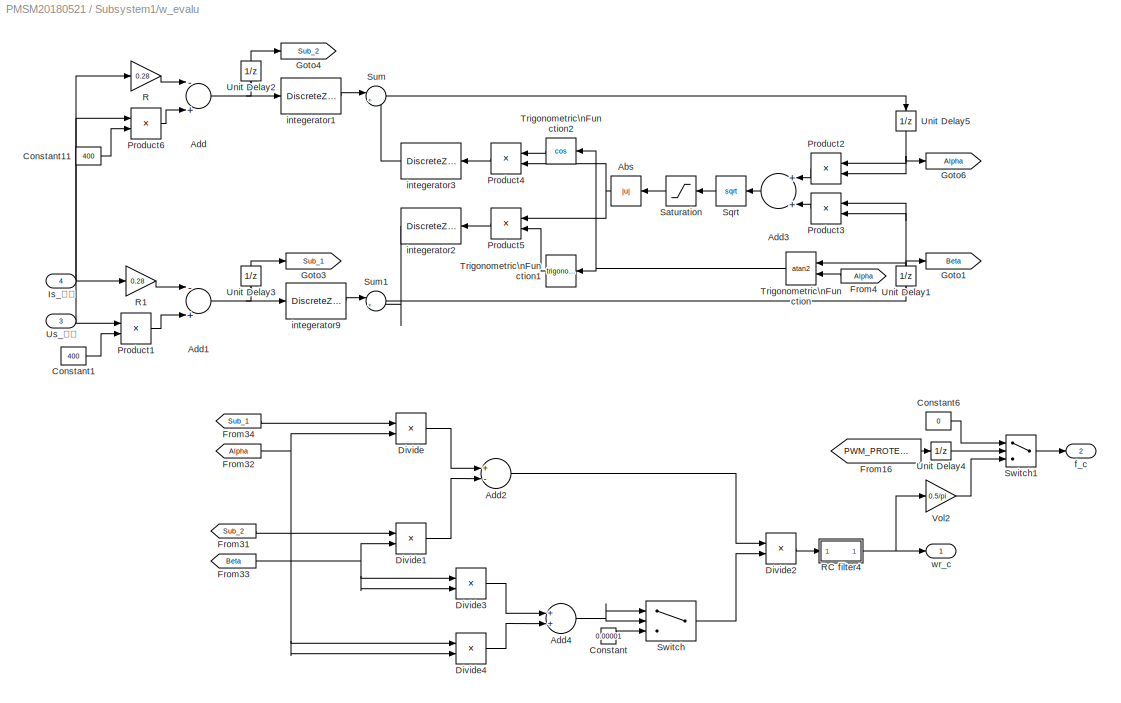
BLOCK [SubSystem] Subsystem1/w_evalu
  FunctionWithSeparateData = off
  MaskHideContents = off
  MinAlgLoopOccurrences = off
  Opaque = off
  Ports = [4, 2]
  PropExecContextOutsideSubsystem = off
  RTWSystemCode = Auto
  RequestExecContextInheritance = off
  SID = 32390
BLOCK [Abs] Subsystem1/w_evalu/Abs
  SID = 32395
  SaturateOnIntegerOverflow = off
BLOCK [Sum] Subsystem1/w_evalu/Add
  InputSameDT = off
  Inputs = -+
  OutDataTypeStr = Inherit: Inherit via internal rule
  Ports = [2, 1]
  SID = 32396
  SaturateOnIntegerOverflow = off
BLOCK [Sum] Subsystem1/w_evalu/Add1
  InputSameDT = off
  Inputs = -+
  OutDataTypeStr = Inherit: Inherit via internal rule
  Ports = [2, 1]
  SID = 32397
  SaturateOnIntegerOverflow = off
BLOCK [Sum] Subsystem1/w_evalu/Add2
  InputSameDT = off
  Inputs = +-
  OutDataTypeStr = Inherit: Inherit via internal rule
  Ports = [2, 1]
  SID = 32398
  SaturateOnIntegerOverflow = off
BLOCK [Sum] Subsystem1/w_evalu/Add3
  InputSameDT = off
  OutDataTypeStr = Inherit: Inherit via internal rule
  Ports = [2, 1]
  SID = 32399
  SaturateOnIntegerOverflow = off
BLOCK [Sum] Subsystem1/w_evalu/Add4
  InputSameDT = off
  OutDataTypeStr = Inherit: Inherit via internal rule
  Ports = [2, 1]
  SID = 32400
  SaturateOnIntegerOverflow = off
BLOCK [Constant] Subsystem1/w_evalu/Constant
  SID = 32401
  Value = 0.00001
BLOCK [Constant] Subsystem1/w_evalu/Constant1
  OutDataTypeStr = double
  SID = 32402
  Value = 400
BLOCK [Constant] Subsystem1/w_evalu/Constant11
  OutDataTypeStr = double
  SID = 32403
  Value = 400
BLOCK [Constant] Subsystem1/w_evalu/Constant6
  OutDataTypeStr = double
  SID = 32404
  Value = 0
BLOCK [Product] Subsystem1/w_evalu/Divide
  InputSameDT = off
  Inputs = **
  OutDataTypeStr = Inherit: Inherit via internal rule
  Ports = [2, 1]
  RndMeth = Floor
  SID = 32405
  SaturateOnIntegerOverflow = off
BLOCK [Product] Subsystem1/w_evalu/Divide1
  InputSameDT = off
  Inputs = **
  OutDataTypeStr = Inherit: Inherit via internal rule
  Ports = [2, 1]
  RndMeth = Floor
  SID = 32406
  SaturateOnIntegerOverflow = off
BLOCK [Product] Subsystem1/w_evalu/Divide2
  InputSameDT = off
  Inputs = */
  OutDataTypeStr = Inherit: Inherit via internal rule
  Ports = [2, 1]
  RndMeth = Floor
  SID = 32407
  SaturateOnIntegerOverflow = off
BLOCK [Product] Subsystem1/w_evalu/Divide3
  InputSameDT = off
  Inputs = **
  OutDataTypeStr = Inherit: Inherit via internal rule
  Ports = [2, 1]
  RndMeth = Floor
  SID = 32408
  SaturateOnIntegerOverflow = off
BLOCK [Product] Subsystem1/w_evalu/Divide4
  InputSameDT = off
  Inputs = **
  OutDataTypeStr = Inherit: Inherit via internal rule
  Ports = [2, 1]
  RndMeth = Floor
  SID = 32409
  SaturateOnIntegerOverflow = off
BLOCK [From] Subsystem1/w_evalu/From16
  GotoTag = PWM_PROTECT
  SID = 32410
  TagVisibility = global
BLOCK [From] Subsystem1/w_evalu/From31
  GotoTag = Sub_2
  SID = 32411
  TagVisibility = global
BLOCK [From] Subsystem1/w_evalu/From32
  GotoTag = Alpha
  SID = 32412
  TagVisibility = global
BLOCK [From] Subsystem1/w_evalu/From33
  GotoTag = Beta
  SID = 32413
  TagVisibility = global
BLOCK [From] Subsystem1/w_evalu/From34
  GotoTag = Sub_1
  SID = 32414
  TagVisibility = global
BLOCK [From] Subsystem1/w_evalu/From4
  GotoTag = Alpha
  SID = 32415
  TagVisibility = global
BLOCK [Goto] Subsystem1/w_evalu/Goto1
  GotoTag = Beta
  SID = 32416
  TagVisibility = global
BLOCK [Goto] Subsystem1/w_evalu/Goto3
  GotoTag = Sub_1
  SID = 32417
  TagVisibility = global
BLOCK [Goto] Subsystem1/w_evalu/Goto4
  GotoTag = Sub_2
  SID = 32418
  TagVisibility = global
BLOCK [Goto] Subsystem1/w_evalu/Goto6
  GotoTag = Alpha
  SID = 32419
  TagVisibility = global
BLOCK [Inport] Subsystem1/w_evalu/Is_¦Á
  IconDisplay = Port number
  Port = 2
  SID = 32392
BLOCK [Inport] Subsystem1/w_evalu/Is_¦Â
  IconDisplay = Port number
  Port = 4
  SID = 32394
BLOCK [Product] Subsystem1/w_evalu/Product1
  InputSameDT = off
  OutDataTypeStr = Inherit: Inherit via internal rule
  Ports = [2, 1]
  SID = 32420
  SaturateOnIntegerOverflow = off
BLOCK [Product] Subsystem1/w_evalu/Product2
  InputSameDT = off
  OutDataTypeStr = Inherit: Inherit via internal rule
  Ports = [2, 1]
  SID = 32421
  SaturateOnIntegerOverflow = off
BLOCK [Product] Subsystem1/w_evalu/Product3
  InputSameDT = off
  OutDataTypeStr = Inherit: Inherit via internal rule
  Ports = [2, 1]
  SID = 32422
  SaturateOnIntegerOverflow = off
BLOCK [Product] Subsystem1/w_evalu/Product4
  InputSameDT = off
  OutDataTypeStr = Inherit: Inherit via internal rule
  Ports = [2, 1]
  SID = 32423
  SaturateOnIntegerOverflow = off
BLOCK [Product] Subsystem1/w_evalu/Product5
  InputSameDT = off
  OutDataTypeStr = Inherit: Inherit via internal rule
  Ports = [2, 1]
  SID = 32424
  SaturateOnIntegerOverflow = off
BLOCK [Product] Subsystem1/w_evalu/Product6
  InputSameDT = off
  OutDataTypeStr = Inherit: Inherit via internal rule
  Ports = [2, 1]
  SID = 32425
  SaturateOnIntegerOverflow = off
BLOCK [Gain] Subsystem1/w_evalu/R
  Gain = 0.28
  OutDataTypeStr = Inherit: Inherit via internal rule
  ParamDataTypeStr = Inherit: Inherit via internal rule
  SID = 32426
  SaturateOnIntegerOverflow = off
BLOCK [Gain] Subsystem1/w_evalu/R1
  Gain = 0.28
  OutDataTypeStr = Inherit: Inherit via internal rule
  ParamDataTypeStr = Inherit: Inherit via internal rule
  SID = 32427
  SaturateOnIntegerOverflow = off
BLOCK [SubSystem] Subsystem1/w_evalu/RC filter4
  FunctionWithSeparateData = off
  MaskEnableString = on
  MaskHideContents = off
  MaskIconFrame = on
  MaskIconOpaque = on
  MaskIconRotate = none
  MaskIconUnits = autoscale
  MaskPortRotate = default
  MaskPromptString = Time Constant
  MaskStyleString = edit
  MaskToolTipString = on
  MaskTunableValueString = on
  MaskValueString = 0.2
  MaskVariables = a=@1;
  MaskVisibilityString = on
  MinAlgLoopOccurrences = off
  Opaque = off
  Ports = [1, 1]
  PropExecContextOutsideSubsystem = off
  RTWSystemCode = Auto
  RequestExecContextInheritance = off
  SID = 32428
BLOCK [Constant] Subsystem1/w_evalu/RC filter4/Constant2
  OutDataTypeStr = double
  SID = 32430
  Value = a
BLOCK [Constant] Subsystem1/w_evalu/RC filter4/Constant3
  OutDataTypeStr = double
  SID = 32431
  Value = 1-a
BLOCK [Product] Subsystem1/w_evalu/RC filter4/Divide
  InputSameDT = off
  OutDataTypeStr = Inherit: Inherit via internal rule
  Ports = [2, 1]
  RndMeth = Floor
  SID = 32432
  SaturateOnIntegerOverflow = off
BLOCK [Product] Subsystem1/w_evalu/RC filter4/Divide1
  InputSameDT = off
  OutDataTypeStr = Inherit: Inherit via internal rule
  Ports = [2, 1]
  RndMeth = Floor
  SID = 32433
  SaturateOnIntegerOverflow = off
BLOCK [Sum] Subsystem1/w_evalu/RC filter4/Sum2
  InputSameDT = off
  OutDataTypeStr = Inherit: Inherit via internal rule
  Ports = [2, 1]
  SID = 32434
  SaturateOnIntegerOverflow = off
BLOCK [UnitDelay] Subsystem1/w_evalu/RC filter4/Unit Delay2
  InputProcessing = Elements as channels (sample based)
  SID = 32435
  SampleTime = -1
BLOCK [Inport] Subsystem1/w_evalu/RC filter4/x
  IconDisplay = Port number
  SID = 32429
BLOCK [Outport] Subsystem1/w_evalu/RC filter4/y
  IconDisplay = Port number
  SID = 32436
BLOCK [Saturate] Subsystem1/w_evalu/Saturation
  InputPortMap = u0
  LowerLimit = -0.56
  Ports = [1, 1]
  SID = 32437
  UpperLimit = 0.56
BLOCK [Sqrt] Subsystem1/w_evalu/Sqrt
  SID = 32438
BLOCK [Sum] Subsystem1/w_evalu/Sum
  IconShape = round
  InputSameDT = off
  Inputs = |++
  OutDataTypeStr = Inherit: Inherit via internal rule
  Ports = [2, 1]
  SID = 32439
  SaturateOnIntegerOverflow = off
BLOCK [Sum] Subsystem1/w_evalu/Sum1
  IconShape = round
  InputSameDT = off
  Inputs = |++
  OutDataTypeStr = Inherit: Inherit via internal rule
  Ports = [2, 1]
  SID = 32440
  SaturateOnIntegerOverflow = off
BLOCK [Switch] Subsystem1/w_evalu/Switch
  Criteria = u2 ~= 0
  InputSameDT = off
  SID = 32441
  SaturateOnIntegerOverflow = off
BLOCK [Switch] Subsystem1/w_evalu/Switch1
  Criteria = u2 ~= 0
  InputSameDT = off
  SID = 32442
  SaturateOnIntegerOverflow = off
BLOCK [Trigonometry] Subsystem1/w_evalu/Trigonometric\nFunction
  Operator = atan2
  Ports = [2, 1]
  SID = 32443
BLOCK [Trigonometry] Subsystem1/w_evalu/Trigonometric\nFunction1
  Ports = [1, 1]
  SID = 32444
BLOCK [Trigonometry] Subsystem1/w_evalu/Trigonometric\nFunction2
  Operator = cos
  Ports = [1, 1]
  SID = 32445
BLOCK [UnitDelay] Subsystem1/w_evalu/Unit Delay1
  InputProcessing = Elements as channels (sample based)
  SID = 32446
  SampleTime = -1
BLOCK [UnitDelay] Subsystem1/w_evalu/Unit Delay2
  InputProcessing = Elements as channels (sample based)
  SID = 32447
  SampleTime = -1
BLOCK [UnitDelay] Subsystem1/w_evalu/Unit Delay3
  InputProcessing = Elements as channels (sample based)
  SID = 32448
  SampleTime = -1
BLOCK [UnitDelay] Subsystem1/w_evalu/Unit Delay4
  InputProcessing = Elements as channels (sample based)
  SID = 32449
  SampleTime = -1
BLOCK [UnitDelay] Subsystem1/w_evalu/Unit Delay5
  InputProcessing = Elements as channels (sample based)
  SID = 32450
  SampleTime = -1
BLOCK [Inport] Subsystem1/w_evalu/Us_¦Á
  IconDisplay = Port number
  SID = 32391
BLOCK [Inport] Subsystem1/w_evalu/Us_¦Â
  IconDisplay = Port number
  Port = 3
  SID = 32393
BLOCK [Gain] Subsystem1/w_evalu/Vol2
  Gain = 0.5/pi
  OutDataTypeStr = Inherit: Inherit via internal rule
  ParamDataTypeStr = Inherit: Inherit via internal rule
  SID = 32451
  SaturateOnIntegerOverflow = off
BLOCK [Outport] Subsystem1/w_evalu/f_c
  IconDisplay = Port number
  Port = 2
  SID = 32457
BLOCK [DiscreteZeroPole] Subsystem1/w_evalu/integerator1
  Gain = 0.0002/1.03
  Poles = [1/1.03]
  SID = 32452
  SampleTime = -1
  Zeros = [0]
BLOCK [DiscreteZeroPole] Subsystem1/w_evalu/integerator2
  Gain = 0.0002/1.03*150
  Poles = [1/1.03]
  SID = 32453
  SampleTime = -1
  Zeros = [0]
BLOCK [DiscreteZeroPole] Subsystem1/w_evalu/integerator3
  Gain = 0.0002/1.03*150
  Poles = [1/1.03]
  SID = 32454
  SampleTime = -1
  Zeros = [0]
BLOCK [DiscreteZeroPole] Subsystem1/w_evalu/integerator9
  Gain = 0.0002/1.03
  Poles = [1/1.03]
  SID = 32455
  SampleTime = -1
  Zeros = [0]
BLOCK [Outport] Subsystem1/w_evalu/wr_c
  IconDisplay = Port number
  SID = 32456
BLOCK [Goto] start
  GotoTag = start
  SID = 22797
BLOCK [Goto] start1
  GotoTag = stop
  SID = 22798
BLOCK [Goto] start2
  GotoTag = mode
  SID = 22799
BLOCK [Goto] start3
  GotoTag = powerok
  SID = 22800
BLOCK [Goto] start4
  GotoTag = tmp
  SID = 22801
ANNOTATION Function-Call\nSubsystem1: BCD½âÂë
ANNOTATION Function-Call\nSubsystem1: DIG1
ANNOTATION Function-Call\nSubsystem1: DIG2
ANNOTATION Function-Call\nSubsystem1: DIG3
ANNOTATION Function-Call\nSubsystem1: DIG4
ANNOTATION Function-Call\nSubsystem1: DIG5
ANNOTATION Function-Call\nSubsystem1: DIG6
ANNOTATION Function-Call\nSubsystem1: DIG7
ANNOTATION Function-Call\nSubsystem1: 测试模式
ANNOTATION Function-Call\nSubsystem1: 关闭
ANNOTATION Function-Call\nSubsystem1: ÁÁ¶È
ANNOTATION Function-Call\nSubsystem1: 扫描范围
ANNOTATION Subsystem1: 0 is on 1 in off
ANNOTATION Subsystem1: 开关机高电平有效
LINE C280x//C28x3x \nHardware Interrupt:1 -> Subsystem1:trigger
LINE From1:1 -> Rate Transition1:1
LINE From2:1 -> Rate Transition2:1
LINE From3:1 -> Rate Transition3:1
LINE From4:1 -> Rate Transition4:1
LINE From6:1 -> Function-Call\nSubsystem1:1
LINE From:1 -> Rate Transition:1
LINE Function-Call\nSubsystem1/Constant10:1 -> Function-Call\nSubsystem1/Integration 0 to maximal3:1
LINE Function-Call\nSubsystem1/Constant12:1 -> Function-Call\nSubsystem1/Gain6:1
LINE Function-Call\nSubsystem1/Constant14:1 -> Function-Call\nSubsystem1/Gain7:1
LINE Function-Call\nSubsystem1/Constant19:1 -> Function-Call\nSubsystem1/Multiport\nSwitch:3
LINE Function-Call\nSubsystem1/Constant20:1 -> Function-Call\nSubsystem1/Multiport\nSwitch:2
LINE Function-Call\nSubsystem1/Constant28:1 -> Function-Call\nSubsystem1/Gain2:1
LINE Function-Call\nSubsystem1/Constant2:1 -> Function-Call\nSubsystem1/Gain1:1
LINE Function-Call\nSubsystem1/Constant35:1 -> Function-Call\nSubsystem1/Multiport\nSwitch:5
LINE Function-Call\nSubsystem1/Constant36:1 -> Function-Call\nSubsystem1/Multiport\nSwitch:6
LINE Function-Call\nSubsystem1/Constant4:1 -> Function-Call\nSubsystem1/Multiport\nSwitch:4
LINE Function-Call\nSubsystem1/Constant5:1 -> Function-Call\nSubsystem1/Gain3:1
LINE Function-Call\nSubsystem1/Constant7:1 -> Function-Call\nSubsystem1/Gain5:1
LINE Function-Call\nSubsystem1/Constant8:1 -> Function-Call\nSubsystem1/Gain4:1
LINE Function-Call\nSubsystem1/Data Type Conversion1:1 -> Function-Call\nSubsystem1/Subsystem2:1
LINE Function-Call\nSubsystem1/Data Type Conversion2:1 -> Function-Call\nSubsystem1/Subsystem3:1
LINE Function-Call\nSubsystem1/Data Type Conversion:1 -> Function-Call\nSubsystem1/Subsystem1:1
LINE Function-Call\nSubsystem1/Demux:1 -> Function-Call\nSubsystem1/Data Type Conversion:1
LINE Function-Call\nSubsystem1/Demux:2 -> Function-Call\nSubsystem1/Data Type Conversion1:1
LINE Function-Call\nSubsystem1/Demux:3 -> Function-Call\nSubsystem1/Data Type Conversion2:1
LINE Function-Call\nSubsystem1/Gain1:1 -> Function-Call\nSubsystem1/Sum1:1
LINE Function-Call\nSubsystem1/Gain2:1 -> Function-Call\nSubsystem1/Sum5:1
LINE Function-Call\nSubsystem1/Gain3:1 -> Function-Call\nSubsystem1/Sum2:1
LINE Function-Call\nSubsystem1/Gain4:1 -> Function-Call\nSubsystem1/Sum6:1
LINE Function-Call\nSubsystem1/Gain5:1 -> Function-Call\nSubsystem1/Sum3:1
LINE Function-Call\nSubsystem1/Gain6:1 -> Function-Call\nSubsystem1/Sum4:1
LINE Function-Call\nSubsystem1/Gain7:1 -> Function-Call\nSubsystem1/Sum7:1
NET Function-Call\nSubsystem1/Integration 0 to maximal3/3:1 -> Function-Call\nSubsystem1/Integration 0 to maximal3/Relational\nOperator1:2, Function-Call\nSubsystem1/Integration 0 to maximal3/Sum1:2
NET Function-Call\nSubsystem1/Integration 0 to maximal3/Relational\nOperator1:1 -> Function-Call\nSubsystem1/Integration 0 to maximal3/Switch2:2, Function-Call\nSubsystem1/Integration 0 to maximal3/Zero Trig:1
LINE Function-Call\nSubsystem1/Integration 0 to maximal3/Sum1:1 -> Function-Call\nSubsystem1/Integration 0 to maximal3/Switch2:3
NET Function-Call\nSubsystem1/Integration 0 to maximal3/Sum2:1 -> Function-Call\nSubsystem1/Integration 0 to maximal3/Relational\nOperator1:1, Function-Call\nSubsystem1/Integration 0 to maximal3/Sum1:1, Function-Call\nSubsystem1/Integration 0 to maximal3/Switch2:1
NET Function-Call\nSubsystem1/Integration 0 to maximal3/Switch2:1 -> Function-Call\nSubsystem1/Integration 0 to maximal3/Unit Delay1:1, Function-Call\nSubsystem1/Integration 0 to maximal3/y:1
LINE Function-Call\nSubsystem1/Integration 0 to maximal3/Unit Delay1:1 -> Function-Call\nSubsystem1/Integration 0 to maximal3/Sum2:1
LINE Function-Call\nSubsystem1/Integration 0 to maximal3/x:1 -> Function-Call\nSubsystem1/Integration 0 to maximal3/Sum2:2
LINE Function-Call\nSubsystem1/Integration 0 to maximal3:1 -> Function-Call\nSubsystem1/Multiport\nSwitch:1
LINE Function-Call\nSubsystem1/Integration 0 to maximal3:2 -> Function-Call\nSubsystem1/Terminator4:1
LINE Function-Call\nSubsystem1/Multiport\nSwitch:1 -> Function-Call\nSubsystem1/SPI Transmit:1
LINE Function-Call\nSubsystem1/SPI2:1 -> Function-Call\nSubsystem1/Demux:1
NET Function-Call\nSubsystem1/Subsystem1/In1:1 -> Function-Call\nSubsystem1/Subsystem1/求百位:1, Function-Call\nSubsystem1/Subsystem1/求个位:1, Function-Call\nSubsystem1/Subsystem1/求十位:2
NET Function-Call\nSubsystem1/Subsystem1/求百位/Constant1:1 -> Function-Call\nSubsystem1/Subsystem1/求百位/Math\nFunction:2, Function-Call\nSubsystem1/Subsystem1/求百位/Product:2
NET Function-Call\nSubsystem1/Subsystem1/求百位/In1:1 -> Function-Call\nSubsystem1/Subsystem1/求百位/Math\nFunction:1, Function-Call\nSubsystem1/Subsystem1/求百位/Sum:1
LINE Function-Call\nSubsystem1/Subsystem1/求百位/Math\nFunction:1 -> Function-Call\nSubsystem1/Subsystem1/求百位/Sum:2
LINE Function-Call\nSubsystem1/Subsystem1/求百位/Product:1 -> Function-Call\nSubsystem1/Subsystem1/求百位/Out1:1
LINE Function-Call\nSubsystem1/Subsystem1/求百位/Sum:1 -> Function-Call\nSubsystem1/Subsystem1/求百位/Product:1
NET Function-Call\nSubsystem1/Subsystem1/求百位:1 -> Function-Call\nSubsystem1/Subsystem1/Out1:1, Function-Call\nSubsystem1/Subsystem1/求个位:2, Function-Call\nSubsystem1/Subsystem1/求十位:1
NET Function-Call\nSubsystem1/Subsystem1/求个位/Constant1:1 -> Function-Call\nSubsystem1/Subsystem1/求个位/Math\nFunction:2, Function-Call\nSubsystem1/Subsystem1/求个位/Product:2
LINE Function-Call\nSubsystem1/Subsystem1/求个位/Gain1:1 -> Function-Call\nSubsystem1/Subsystem1/求个位/Sum:3
LINE Function-Call\nSubsystem1/Subsystem1/求个位/Gain:1 -> Function-Call\nSubsystem1/Subsystem1/求个位/Sum:2
LINE Function-Call\nSubsystem1/Subsystem1/求个位/In1:1 -> Function-Call\nSubsystem1/Subsystem1/求个位/Sum:1
LINE Function-Call\nSubsystem1/Subsystem1/求个位/In2:1 -> Function-Call\nSubsystem1/Subsystem1/求个位/Gain:1
LINE Function-Call\nSubsystem1/Subsystem1/求个位/In3:1 -> Function-Call\nSubsystem1/Subsystem1/求个位/Gain1:1
LINE Function-Call\nSubsystem1/Subsystem1/求个位/Math\nFunction:1 -> Function-Call\nSubsystem1/Subsystem1/求个位/Sum1:2
LINE Function-Call\nSubsystem1/Subsystem1/求个位/Product:1 -> Function-Call\nSubsystem1/Subsystem1/求个位/Out1:1
LINE Function-Call\nSubsystem1/Subsystem1/求个位/Sum1:1 -> Function-Call\nSubsystem1/Subsystem1/求个位/Product:1
NET Function-Call\nSubsystem1/Subsystem1/求个位/Sum:1 -> Function-Call\nSubsystem1/Subsystem1/求个位/Math\nFunction:1, Function-Call\nSubsystem1/Subsystem1/求个位/Sum1:1
LINE Function-Call\nSubsystem1/Subsystem1/求个位:1 -> Function-Call\nSubsystem1/Subsystem1/Out3:1
NET Function-Call\nSubsystem1/Subsystem1/求十位/Constant1:1 -> Function-Call\nSubsystem1/Subsystem1/求十位/Math\nFunction:2, Function-Call\nSubsystem1/Subsystem1/求十位/Product:2
LINE Function-Call\nSubsystem1/Subsystem1/求十位/Gain1:1 -> Function-Call\nSubsystem1/Subsystem1/求十位/Sum1:2
LINE Function-Call\nSubsystem1/Subsystem1/求十位/In1:1 -> Function-Call\nSubsystem1/Subsystem1/求十位/Gain1:1
LINE Function-Call\nSubsystem1/Subsystem1/求十位/In2:1 -> Function-Call\nSubsystem1/Subsystem1/求十位/Sum1:1
LINE Function-Call\nSubsystem1/Subsystem1/求十位/Math\nFunction:1 -> Function-Call\nSubsystem1/Subsystem1/求十位/Sum:2
LINE Function-Call\nSubsystem1/Subsystem1/求十位/Product:1 -> Function-Call\nSubsystem1/Subsystem1/求十位/Out1:1
NET Function-Call\nSubsystem1/Subsystem1/求十位/Sum1:1 -> Function-Call\nSubsystem1/Subsystem1/求十位/Math\nFunction:1, Function-Call\nSubsystem1/Subsystem1/求十位/Sum:1
LINE Function-Call\nSubsystem1/Subsystem1/求十位/Sum:1 -> Function-Call\nSubsystem1/Subsystem1/求十位/Product:1
NET Function-Call\nSubsystem1/Subsystem1/求十位:1 -> Function-Call\nSubsystem1/Subsystem1/Out2:1, Function-Call\nSubsystem1/Subsystem1/求个位:3
LINE Function-Call\nSubsystem1/Subsystem1:1 -> Function-Call\nSubsystem1/Sum5:2
LINE Function-Call\nSubsystem1/Subsystem1:2 -> Function-Call\nSubsystem1/Sum1:2
LINE Function-Call\nSubsystem1/Subsystem1:3 -> Function-Call\nSubsystem1/Sum2:2
NET Function-Call\nSubsystem1/Subsystem2/In1:1 -> Function-Call\nSubsystem1/Subsystem2/求百位:1, Function-Call\nSubsystem1/Subsystem2/求个位:1, Function-Call\nSubsystem1/Subsystem2/求十位:2
NET Function-Call\nSubsystem1/Subsystem2/求百位/Constant1:1 -> Function-Call\nSubsystem1/Subsystem2/求百位/Math\nFunction:2, Function-Call\nSubsystem1/Subsystem2/求百位/Product:2
NET Function-Call\nSubsystem1/Subsystem2/求百位/In1:1 -> Function-Call\nSubsystem1/Subsystem2/求百位/Math\nFunction:1, Function-Call\nSubsystem1/Subsystem2/求百位/Sum:1
LINE Function-Call\nSubsystem1/Subsystem2/求百位/Math\nFunction:1 -> Function-Call\nSubsystem1/Subsystem2/求百位/Sum:2
LINE Function-Call\nSubsystem1/Subsystem2/求百位/Product:1 -> Function-Call\nSubsystem1/Subsystem2/求百位/Out1:1
LINE Function-Call\nSubsystem1/Subsystem2/求百位/Sum:1 -> Function-Call\nSubsystem1/Subsystem2/求百位/Product:1
NET Function-Call\nSubsystem1/Subsystem2/求百位:1 -> Function-Call\nSubsystem1/Subsystem2/求个位:2, Function-Call\nSubsystem1/Subsystem2/求十位:1
NET Function-Call\nSubsystem1/Subsystem2/求个位/Constant1:1 -> Function-Call\nSubsystem1/Subsystem2/求个位/Math\nFunction:2, Function-Call\nSubsystem1/Subsystem2/求个位/Product:2
LINE Function-Call\nSubsystem1/Subsystem2/求个位/Gain1:1 -> Function-Call\nSubsystem1/Subsystem2/求个位/Sum:3
LINE Function-Call\nSubsystem1/Subsystem2/求个位/Gain:1 -> Function-Call\nSubsystem1/Subsystem2/求个位/Sum:2
LINE Function-Call\nSubsystem1/Subsystem2/求个位/In1:1 -> Function-Call\nSubsystem1/Subsystem2/求个位/Sum:1
LINE Function-Call\nSubsystem1/Subsystem2/求个位/In2:1 -> Function-Call\nSubsystem1/Subsystem2/求个位/Gain:1
LINE Function-Call\nSubsystem1/Subsystem2/求个位/In3:1 -> Function-Call\nSubsystem1/Subsystem2/求个位/Gain1:1
LINE Function-Call\nSubsystem1/Subsystem2/求个位/Math\nFunction:1 -> Function-Call\nSubsystem1/Subsystem2/求个位/Sum1:2
LINE Function-Call\nSubsystem1/Subsystem2/求个位/Product:1 -> Function-Call\nSubsystem1/Subsystem2/求个位/Out1:1
LINE Function-Call\nSubsystem1/Subsystem2/求个位/Sum1:1 -> Function-Call\nSubsystem1/Subsystem2/求个位/Product:1
NET Function-Call\nSubsystem1/Subsystem2/求个位/Sum:1 -> Function-Call\nSubsystem1/Subsystem2/求个位/Math\nFunction:1, Function-Call\nSubsystem1/Subsystem2/求个位/Sum1:1
LINE Function-Call\nSubsystem1/Subsystem2/求个位:1 -> Function-Call\nSubsystem1/Subsystem2/Out3:1
NET Function-Call\nSubsystem1/Subsystem2/求十位/Constant1:1 -> Function-Call\nSubsystem1/Subsystem2/求十位/Math\nFunction:2, Function-Call\nSubsystem1/Subsystem2/求十位/Product:2
LINE Function-Call\nSubsystem1/Subsystem2/求十位/Gain1:1 -> Function-Call\nSubsystem1/Subsystem2/求十位/Sum1:2
LINE Function-Call\nSubsystem1/Subsystem2/求十位/In1:1 -> Function-Call\nSubsystem1/Subsystem2/求十位/Gain1:1
LINE Function-Call\nSubsystem1/Subsystem2/求十位/In2:1 -> Function-Call\nSubsystem1/Subsystem2/求十位/Sum1:1
LINE Function-Call\nSubsystem1/Subsystem2/求十位/Math\nFunction:1 -> Function-Call\nSubsystem1/Subsystem2/求十位/Sum:2
LINE Function-Call\nSubsystem1/Subsystem2/求十位/Product:1 -> Function-Call\nSubsystem1/Subsystem2/求十位/Out1:1
NET Function-Call\nSubsystem1/Subsystem2/求十位/Sum1:1 -> Function-Call\nSubsystem1/Subsystem2/求十位/Math\nFunction:1, Function-Call\nSubsystem1/Subsystem2/求十位/Sum:1
LINE Function-Call\nSubsystem1/Subsystem2/求十位/Sum:1 -> Function-Call\nSubsystem1/Subsystem2/求十位/Product:1
NET Function-Call\nSubsystem1/Subsystem2/求十位:1 -> Function-Call\nSubsystem1/Subsystem2/Out2:1, Function-Call\nSubsystem1/Subsystem2/求个位:3
LINE Function-Call\nSubsystem1/Subsystem2:1 -> Function-Call\nSubsystem1/Sum6:2
LINE Function-Call\nSubsystem1/Subsystem2:2 -> Function-Call\nSubsystem1/Sum3:2
NET Function-Call\nSubsystem1/Subsystem3/In1:1 -> Function-Call\nSubsystem1/Subsystem3/求百位:1, Function-Call\nSubsystem1/Subsystem3/求个位:1, Function-Call\nSubsystem1/Subsystem3/求十位:2
NET Function-Call\nSubsystem1/Subsystem3/求百位/Constant1:1 -> Function-Call\nSubsystem1/Subsystem3/求百位/Math\nFunction:2, Function-Call\nSubsystem1/Subsystem3/求百位/Product:2
NET Function-Call\nSubsystem1/Subsystem3/求百位/In1:1 -> Function-Call\nSubsystem1/Subsystem3/求百位/Math\nFunction:1, Function-Call\nSubsystem1/Subsystem3/求百位/Sum:1
LINE Function-Call\nSubsystem1/Subsystem3/求百位/Math\nFunction:1 -> Function-Call\nSubsystem1/Subsystem3/求百位/Sum:2
LINE Function-Call\nSubsystem1/Subsystem3/求百位/Product:1 -> Function-Call\nSubsystem1/Subsystem3/求百位/Out1:1
LINE Function-Call\nSubsystem1/Subsystem3/求百位/Sum:1 -> Function-Call\nSubsystem1/Subsystem3/求百位/Product:1
NET Function-Call\nSubsystem1/Subsystem3/求百位:1 -> Function-Call\nSubsystem1/Subsystem3/求个位:2, Function-Call\nSubsystem1/Subsystem3/求十位:1
NET Function-Call\nSubsystem1/Subsystem3/求个位/Constant1:1 -> Function-Call\nSubsystem1/Subsystem3/求个位/Math\nFunction:2, Function-Call\nSubsystem1/Subsystem3/求个位/Product:2
LINE Function-Call\nSubsystem1/Subsystem3/求个位/Gain1:1 -> Function-Call\nSubsystem1/Subsystem3/求个位/Sum:3
LINE Function-Call\nSubsystem1/Subsystem3/求个位/Gain:1 -> Function-Call\nSubsystem1/Subsystem3/求个位/Sum:2
LINE Function-Call\nSubsystem1/Subsystem3/求个位/In1:1 -> Function-Call\nSubsystem1/Subsystem3/求个位/Sum:1
LINE Function-Call\nSubsystem1/Subsystem3/求个位/In2:1 -> Function-Call\nSubsystem1/Subsystem3/求个位/Gain:1
LINE Function-Call\nSubsystem1/Subsystem3/求个位/In3:1 -> Function-Call\nSubsystem1/Subsystem3/求个位/Gain1:1
LINE Function-Call\nSubsystem1/Subsystem3/求个位/Math\nFunction:1 -> Function-Call\nSubsystem1/Subsystem3/求个位/Sum1:2
LINE Function-Call\nSubsystem1/Subsystem3/求个位/Product:1 -> Function-Call\nSubsystem1/Subsystem3/求个位/Out1:1
LINE Function-Call\nSubsystem1/Subsystem3/求个位/Sum1:1 -> Function-Call\nSubsystem1/Subsystem3/求个位/Product:1
NET Function-Call\nSubsystem1/Subsystem3/求个位/Sum:1 -> Function-Call\nSubsystem1/Subsystem3/求个位/Math\nFunction:1, Function-Call\nSubsystem1/Subsystem3/求个位/Sum1:1
LINE Function-Call\nSubsystem1/Subsystem3/求个位:1 -> Function-Call\nSubsystem1/Subsystem3/Out3:1
NET Function-Call\nSubsystem1/Subsystem3/求十位/Constant1:1 -> Function-Call\nSubsystem1/Subsystem3/求十位/Math\nFunction:2, Function-Call\nSubsystem1/Subsystem3/求十位/Product:2
LINE Function-Call\nSubsystem1/Subsystem3/求十位/Gain1:1 -> Function-Call\nSubsystem1/Subsystem3/求十位/Sum1:2
LINE Function-Call\nSubsystem1/Subsystem3/求十位/In1:1 -> Function-Call\nSubsystem1/Subsystem3/求十位/Gain1:1
LINE Function-Call\nSubsystem1/Subsystem3/求十位/In2:1 -> Function-Call\nSubsystem1/Subsystem3/求十位/Sum1:1
LINE Function-Call\nSubsystem1/Subsystem3/求十位/Math\nFunction:1 -> Function-Call\nSubsystem1/Subsystem3/求十位/Sum:2
LINE Function-Call\nSubsystem1/Subsystem3/求十位/Product:1 -> Function-Call\nSubsystem1/Subsystem3/求十位/Out1:1
NET Function-Call\nSubsystem1/Subsystem3/求十位/Sum1:1 -> Function-Call\nSubsystem1/Subsystem3/求十位/Math\nFunction:1, Function-Call\nSubsystem1/Subsystem3/求十位/Sum:1
LINE Function-Call\nSubsystem1/Subsystem3/求十位/Sum:1 -> Function-Call\nSubsystem1/Subsystem3/求十位/Product:1
NET Function-Call\nSubsystem1/Subsystem3/求十位:1 -> Function-Call\nSubsystem1/Subsystem3/Out2:1, Function-Call\nSubsystem1/Subsystem3/求个位:3
LINE Function-Call\nSubsystem1/Subsystem3:1 -> Function-Call\nSubsystem1/Sum4:2
LINE Function-Call\nSubsystem1/Subsystem3:2 -> Function-Call\nSubsystem1/Sum7:2
LINE Function-Call\nSubsystem1/Sum1:1 -> Function-Call\nSubsystem1/Multiport\nSwitch:8
LINE Function-Call\nSubsystem1/Sum2:1 -> Function-Call\nSubsystem1/Multiport\nSwitch:9
LINE Function-Call\nSubsystem1/Sum3:1 -> Function-Call\nSubsystem1/Multiport\nSwitch:11
LINE Function-Call\nSubsystem1/Sum4:1 -> Function-Call\nSubsystem1/Multiport\nSwitch:12
LINE Function-Call\nSubsystem1/Sum5:1 -> Function-Call\nSubsystem1/Multiport\nSwitch:7
LINE Function-Call\nSubsystem1/Sum6:1 -> Function-Call\nSubsystem1/Multiport\nSwitch:10
LINE Function-Call\nSubsystem1/Sum7:1 -> Function-Call\nSubsystem1/Multiport\nSwitch:13
LINE Rate Transition1:1 -> Subsystem1:2
LINE Rate Transition2:1 -> Subsystem1:3
LINE Rate Transition3:1 -> Subsystem1:4
LINE Rate Transition4:1 -> Subsystem1:5
LINE Rate Transition5:1 -> Goto1:1
LINE Rate Transition:1 -> Subsystem1:1
LINE Simulation Interrupt:1 -> Function-Call\nSubsystem1:trigger
LINE Subsystem/MODE1:1 -> Subsystem/powerok:1
LINE Subsystem/MODE2:1 -> Subsystem/tmp:1
LINE Subsystem/MODE:1 -> Subsystem/mode:1
LINE Subsystem/PB-OFF:1 -> Subsystem/stop:1
LINE Subsystem/PB-ON:1 -> Subsystem/start:1
LINE Subsystem1/AD/Start Conversion/Constant:1 -> Subsystem1/AD/Start Conversion/Digital Output1:1
LINE Subsystem1/AD/Stop Conversion/Constant12:1 -> Subsystem1/AD/Stop Conversion/Digital Output13:1
LINE Subsystem1/AD/read AD/p1:1 -> Subsystem1/AD/read AD/UD:1
LINE Subsystem1/AD/read AD/p2:1 -> Subsystem1/AD/read AD/UOUT:1
LINE Subsystem1/AD/read AD/p3:1 -> Subsystem1/AD/read AD/UOUT1:1
LINE Subsystem1/AD/read AD/p5:1 -> Subsystem1/AD/read AD/FREQ:1
LINE Subsystem1/AD/read AD/p6:1 -> Subsystem1/AD/read AD/IA:1
LINE Subsystem1/AD/read AD/p7:1 -> Subsystem1/AD/read AD/IB:1
LINE Subsystem1/AD/read AD:1 -> Subsystem1/AD/UD:1
LINE Subsystem1/AD/read AD:2 -> Subsystem1/AD/Goto7:1
LINE Subsystem1/AD/read AD:3 -> Subsystem1/AD/Goto9:1
LINE Subsystem1/AD/read AD:4 -> Subsystem1/AD/FREQ:1
LINE Subsystem1/AD/read AD:5 -> Subsystem1/AD/IA:1
LINE Subsystem1/AD/read AD:6 -> Subsystem1/AD/IB:1
LINE Subsystem1/AD:1 -> Subsystem1/Goto106:1
LINE Subsystem1/AD:2 -> Subsystem1/Goto108:1
LINE Subsystem1/AD:3 -> Subsystem1/Goto107:1
LINE Subsystem1/AD:4 -> Subsystem1/Goto109:1
LINE Subsystem1/Compare\nTo Constant1:1 -> Subsystem1/Goto33:1
LINE Subsystem1/Compare\nTo Constant2:1 -> Subsystem1/Logical\nOperator10:1
LINE Subsystem1/Compare\nTo Constant3:1 -> Subsystem1/Logical\nOperator7:1
LINE Subsystem1/Compare\nTo Constant4:1 -> Subsystem1/Goto36:1
LINE Subsystem1/Compare\nTo Constant5:1 -> Subsystem1/Logical\nOperator7:2
LINE Subsystem1/Compare\nTo Constant6:1 -> Subsystem1/Logical\nOperator10:2
LINE Subsystem1/Compare\nTo Constant7:1 -> Subsystem1/Data Type Conversion:1
LINE Subsystem1/Compare\nTo Constant8:1 -> Subsystem1/Data Type Conversion2:1
LINE Subsystem1/Compare\nTo Constant:1 -> Subsystem1/Logical\nOperator4:1
LINE Subsystem1/Constant11:1 -> Subsystem1/PI-Nr:3
LINE Subsystem1/Constant13:1 -> Subsystem1/PI-Nr:6
LINE Subsystem1/Constant17:1 -> Subsystem1/PI-Nr:5
LINE Subsystem1/Constant18:1 -> Subsystem1/Switch3:1
LINE Subsystem1/Constant19:1 -> Subsystem1/Sum7:2
LINE Subsystem1/Constant1:1 -> Subsystem1/Sum6:1
LINE Subsystem1/Constant20:1 -> Subsystem1/PI-Nr:4
LINE Subsystem1/Constant2:1 -> Subsystem1/Goto7:1
LINE Subsystem1/Constant3:1 -> Subsystem1/Data Type Conversion1:1
LINE Subsystem1/Constant6:1 -> Subsystem1/Sum3:2
LINE Subsystem1/Current protect1/Constant25:1 -> Subsystem1/Current protect1/Switch9:3
LINE Subsystem1/Current protect1/Constant26:1 -> Subsystem1/Current protect1/Switch9:1
LINE Subsystem1/Current protect1/S-R\nFlip-Flop1:1 -> Subsystem1/Current protect1/Software_I:1
LINE Subsystem1/Current protect1/S-R\nFlip-Flop1:2 -> Subsystem1/Current protect1/Terminator:1
LINE Subsystem1/Current protect1/Switch9:1 -> Subsystem1/Current protect1/S-R\nFlip-Flop1:1
LINE Subsystem1/Current protect1/igdin:1 -> Subsystem1/Current protect1/Switch9:2
LINE Subsystem1/Current protect1/reset:1 -> Subsystem1/Current protect1/S-R\nFlip-Flop1:2
LINE Subsystem1/Current protect1:1 -> Subsystem1/Unit Delay1:1
LINE Subsystem1/Data Type Conversion1:1 -> Subsystem1/driving signal:4
LINE Subsystem1/Data Type Conversion2:1 -> Subsystem1/Divide2:2
LINE Subsystem1/Data Type Conversion:1 -> Subsystem1/Divide5:1
LINE Subsystem1/Divide2:1 -> Subsystem1/Sum1:2
LINE Subsystem1/Divide5:1 -> Subsystem1/Sum1:1
LINE Subsystem1/From10:1 -> Subsystem1/Sine Wave:1
LINE Subsystem1/From12:1 -> Subsystem1/conversion:1
LINE Subsystem1/From13:1 -> Subsystem1/Logical\nOperator4:2
LINE Subsystem1/From14:1 -> Subsystem1/w_evalu:2
LINE Subsystem1/From15:1 -> Subsystem1/conversion:3
LINE Subsystem1/From16:1 -> Subsystem1/Logical\nOperator5:1
LINE Subsystem1/From17:1 -> Subsystem1/conversion:2
LINE Subsystem1/From18:1 -> Subsystem1/abc//dq current:1
LINE Subsystem1/From1:1 -> Subsystem1/driving signal:5
LINE Subsystem1/From20:1 -> Subsystem1/abc//dq current:2
LINE Subsystem1/From21:1 -> Subsystem1/Compare\nTo Constant:1
LINE Subsystem1/From22:1 -> Subsystem1/conversion:4
LINE Subsystem1/From23:1 -> Subsystem1/w_evalu:1
LINE Subsystem1/From24:1 -> Subsystem1/Mux3:2
LINE Subsystem1/From25:1 -> Subsystem1/Subsystem2:1
LINE Subsystem1/From26:1 -> Subsystem1/Subsystem2:2
LINE Subsystem1/From27:1 -> Subsystem1/Logical\nOperator6:2
LINE Subsystem1/From28:1 -> Subsystem1/w_evalu:4
LINE Subsystem1/From29:1 -> Subsystem1/w_evalu:3
LINE Subsystem1/From2:1 -> Subsystem1/Sum3:1
LINE Subsystem1/From30:1 -> Subsystem1/Current protect1:2
LINE Subsystem1/From32:1 -> Subsystem1/Sum6:2
LINE Subsystem1/From33:1 -> Subsystem1/signal injection:1
LINE Subsystem1/From34:1 -> Subsystem1/signal injection:2
LINE Subsystem1/From35:1 -> Subsystem1/Switch3:2
LINE Subsystem1/From36:1 -> Subsystem1/Logical\nOperator8:1
NET Subsystem1/From37:1 -> Subsystem1/Compare\nTo Constant1:1, Subsystem1/Compare\nTo Constant2:1, Subsystem1/Compare\nTo Constant3:1, Subsystem1/Compare\nTo Constant4:1, Subsystem1/Compare\nTo Constant5:1, Subsystem1/Compare\nTo Constant6:1
LINE Subsystem1/From39:1 -> Subsystem1/Mux3:3
LINE Subsystem1/From3:1 -> Subsystem1/SPWM:1
LINE Subsystem1/From40:1 -> Subsystem1/angle_evalu:2
NET Subsystem1/From41:1 -> Subsystem1/Compare\nTo Constant7:1, Subsystem1/Compare\nTo Constant8:1
LINE Subsystem1/From42:1 -> Subsystem1/angle_evalu:1
LINE Subsystem1/From43:1 -> Subsystem1/angle_evalu:3
LINE Subsystem1/From44:1 -> Subsystem1/angle_evalu:4
LINE Subsystem1/From4:1 -> Subsystem1/S-R\nFlip-Flop4:1
LINE Subsystem1/From53:1 -> Subsystem1/Goto28:1
LINE Subsystem1/From5:1 -> Subsystem1/S-R\nFlip-Flop4:2
LINE Subsystem1/From6:1 -> Subsystem1/abc//dq current:3
LINE Subsystem1/From7:1 -> Subsystem1/SPWM:2
LINE Subsystem1/From8:1 -> Subsystem1/Sine Wave1:1
LINE Subsystem1/From9:1 -> Subsystem1/SPWM:3
LINE Subsystem1/Gain3:1 -> Subsystem1/driving signal:1
LINE Subsystem1/Gain4:1 -> Subsystem1/driving signal:2
LINE Subsystem1/Gain5:1 -> Subsystem1/driving signal:3
LINE Subsystem1/Logical\nOperator10:1 -> Subsystem1/Goto34:1
LINE Subsystem1/Logical\nOperator1:1 -> Subsystem1/Goto2:1
LINE Subsystem1/Logical\nOperator4:1 -> Subsystem1/Logical\nOperator9:1
LINE Subsystem1/Logical\nOperator5:1 -> Subsystem1/PI-Nr:2
LINE Subsystem1/Logical\nOperator6:1 -> Subsystem1/Goto8:1
LINE Subsystem1/Logical\nOperator7:1 -> Subsystem1/Goto35:1
LINE Subsystem1/Logical\nOperator8:1 -> Subsystem1/Logical\nOperator9:2
LINE Subsystem1/Logical\nOperator9:1 -> Subsystem1/Goto13:1
LINE Subsystem1/Logical\nOperator:1 -> Subsystem1/Goto1:1
LINE Subsystem1/Mux3:1 -> Subsystem1/SPI:1
LINE Subsystem1/PI-Nr/Constant1:1 -> Subsystem1/PI-Nr/Switch2:3
LINE Subsystem1/PI-Nr/Constant2:1 -> Subsystem1/PI-Nr/Switch1:1
LINE Subsystem1/PI-Nr/Constant3:1 -> Subsystem1/PI-Nr/Switch3:3
LINE Subsystem1/PI-Nr/Constant5:1 -> Subsystem1/PI-Nr/Switch4:3
LINE Subsystem1/PI-Nr/D:1 -> Subsystem1/PI-Nr/Product2:2
LINE Subsystem1/PI-Nr/I:1 -> Subsystem1/PI-Nr/Product1:2
LINE Subsystem1/PI-Nr/Logical\nOperator5:1 -> Subsystem1/PI-Nr/Switch4:2
LINE Subsystem1/PI-Nr/Logical\nOperator6:1 -> Subsystem1/PI-Nr/Logical\nOperator5:2
NET Subsystem1/PI-Nr/OV:1 -> Subsystem1/PI-Nr/Logical\nOperator6:1, Subsystem1/PI-Nr/Switch1:2
LINE Subsystem1/PI-Nr/P:1 -> Subsystem1/PI-Nr/Product:2
LINE Subsystem1/PI-Nr/Product1:1 -> Subsystem1/PI-Nr/Sum4:1
LINE Subsystem1/PI-Nr/Product2:1 -> Subsystem1/PI-Nr/RC filter8:1
LINE Subsystem1/PI-Nr/Product:1 -> Subsystem1/PI-Nr/Sum1:1
LINE Subsystem1/PI-Nr/RC filter8/Constant2:1 -> Subsystem1/PI-Nr/RC filter8/Divide:2
LINE Subsystem1/PI-Nr/RC filter8/Constant3:1 -> Subsystem1/PI-Nr/RC filter8/Divide1:1
LINE Subsystem1/PI-Nr/RC filter8/Divide1:1 -> Subsystem1/PI-Nr/RC filter8/Sum2:2
LINE Subsystem1/PI-Nr/RC filter8/Divide:1 -> Subsystem1/PI-Nr/RC filter8/Sum2:1
NET Subsystem1/PI-Nr/RC filter8/Sum2:1 -> Subsystem1/PI-Nr/RC filter8/Unit Delay2:1, Subsystem1/PI-Nr/RC filter8/y:1
LINE Subsystem1/PI-Nr/RC filter8/Unit Delay2:1 -> Subsystem1/PI-Nr/RC filter8/Divide1:2
LINE Subsystem1/PI-Nr/RC filter8/x:1 -> Subsystem1/PI-Nr/RC filter8/Divide:1
LINE Subsystem1/PI-Nr/RC filter8:1 -> Subsystem1/PI-Nr/Sum1:3
LINE Subsystem1/PI-Nr/Saturation1:1 -> Subsystem1/PI-Nr/Switch2:1
LINE Subsystem1/PI-Nr/Saturation2:1 -> Subsystem1/PI-Nr/Switch3:1
NET Subsystem1/PI-Nr/Saturation:1 -> Subsystem1/PI-Nr/Sum1:2, Subsystem1/PI-Nr/Switch4:1
LINE Subsystem1/PI-Nr/Sum1:1 -> Subsystem1/PI-Nr/Saturation2:1
LINE Subsystem1/PI-Nr/Sum2:1 -> Subsystem1/PI-Nr/Product2:1
LINE Subsystem1/PI-Nr/Sum4:1 -> Subsystem1/PI-Nr/Saturation:1
LINE Subsystem1/PI-Nr/Switch1:1 -> Subsystem1/PI-Nr/out:1
NET Subsystem1/PI-Nr/Switch2:1 -> Subsystem1/PI-Nr/Product1:1, Subsystem1/PI-Nr/Product:1, Subsystem1/PI-Nr/Sum2:1, Subsystem1/PI-Nr/Unit Delay1:1
LINE Subsystem1/PI-Nr/Switch3:1 -> Subsystem1/PI-Nr/Switch1:3
LINE Subsystem1/PI-Nr/Switch4:1 -> Subsystem1/PI-Nr/Unit Delay3:1
LINE Subsystem1/PI-Nr/Unit Delay1:1 -> Subsystem1/PI-Nr/Sum2:2
LINE Subsystem1/PI-Nr/Unit Delay3:1 -> Subsystem1/PI-Nr/Sum4:2
LINE Subsystem1/PI-Nr/err:1 -> Subsystem1/PI-Nr/Saturation1:1
NET Subsystem1/PI-Nr/reset:1 -> Subsystem1/PI-Nr/Logical\nOperator5:1, Subsystem1/PI-Nr/Switch2:2, Subsystem1/PI-Nr/Switch3:2
LINE Subsystem1/PI-Nr:1 -> Subsystem1/Goto23:1
LINE Subsystem1/RC filter9/Constant2:1 -> Subsystem1/RC filter9/Divide:2
LINE Subsystem1/RC filter9/Constant3:1 -> Subsystem1/RC filter9/Divide1:1
LINE Subsystem1/RC filter9/Divide1:1 -> Subsystem1/RC filter9/Sum2:2
LINE Subsystem1/RC filter9/Divide:1 -> Subsystem1/RC filter9/Sum2:1
NET Subsystem1/RC filter9/Sum2:1 -> Subsystem1/RC filter9/Unit Delay2:1, Subsystem1/RC filter9/y:1
LINE Subsystem1/RC filter9/Unit Delay2:1 -> Subsystem1/RC filter9/Divide1:2
LINE Subsystem1/RC filter9/x:1 -> Subsystem1/RC filter9/Divide:1
LINE Subsystem1/RC filter9:1 -> Subsystem1/Current protect1:1
LINE Subsystem1/S-R\nFlip-Flop4:1 -> Subsystem1/Terminator4:1
LINE Subsystem1/S-R\nFlip-Flop4:2 -> Subsystem1/Logical\nOperator6:1
NET Subsystem1/SPWM/Add10:1 -> Subsystem1/SPWM/Clarke1:2, Subsystem1/SPWM/b:1
LINE Subsystem1/SPWM/Add11:1 -> Subsystem1/SPWM/c:1
LINE Subsystem1/SPWM/Add12:1 -> Subsystem1/SPWM/Product16:2
LINE Subsystem1/SPWM/Add13:1 -> Subsystem1/SPWM/Product17:2
NET Subsystem1/SPWM/Add7:1 -> Subsystem1/SPWM/Clarke1:1, Subsystem1/SPWM/a:1
LINE Subsystem1/SPWM/Add8:1 -> Subsystem1/SPWM/Product13:2
LINE Subsystem1/SPWM/Add9:1 -> Subsystem1/SPWM/Product12:2
LINE Subsystem1/SPWM/Clarke1/Constant58:1 -> Subsystem1/SPWM/Clarke1/Sqrt:1
LINE Subsystem1/SPWM/Clarke1/Divide:1 -> Subsystem1/SPWM/Clarke1/Gain2:1
LINE Subsystem1/SPWM/Clarke1/Gain1:1 -> Subsystem1/SPWM/Clarke1/alpha:1
LINE Subsystem1/SPWM/Clarke1/Gain2:1 -> Subsystem1/SPWM/Clarke1/beta:1
LINE Subsystem1/SPWM/Clarke1/Gain:1 -> Subsystem1/SPWM/Clarke1/Sum:2
NET Subsystem1/SPWM/Clarke1/In1:1 -> Subsystem1/SPWM/Clarke1/Gain1:1, Subsystem1/SPWM/Clarke1/Sum:1
LINE Subsystem1/SPWM/Clarke1/In2:1 -> Subsystem1/SPWM/Clarke1/Gain:1
LINE Subsystem1/SPWM/Clarke1/Sqrt:1 -> Subsystem1/SPWM/Clarke1/Divide:2
LINE Subsystem1/SPWM/Clarke1/Sum:1 -> Subsystem1/SPWM/Clarke1/Divide:1
LINE Subsystem1/SPWM/Clarke1:1 -> Subsystem1/SPWM/Goto4:1
LINE Subsystem1/SPWM/Clarke1:2 -> Subsystem1/SPWM/Goto1:1
NET Subsystem1/SPWM/D:1 -> Subsystem1/SPWM/Product13:1, Subsystem1/SPWM/Product16:1, Subsystem1/SPWM/Product8:2
LINE Subsystem1/SPWM/Gain10:1 -> Subsystem1/SPWM/Add8:2
LINE Subsystem1/SPWM/Gain3:1 -> Subsystem1/SPWM/Add8:1
LINE Subsystem1/SPWM/Gain4:1 -> Subsystem1/SPWM/Add9:1
LINE Subsystem1/SPWM/Gain5:1 -> Subsystem1/SPWM/Add12:1
LINE Subsystem1/SPWM/Gain6:1 -> Subsystem1/SPWM/Add13:1
LINE Subsystem1/SPWM/Gain7:1 -> Subsystem1/SPWM/Add9:2
LINE Subsystem1/SPWM/Gain8:1 -> Subsystem1/SPWM/Add12:2
LINE Subsystem1/SPWM/Gain9:1 -> Subsystem1/SPWM/Add13:2
LINE Subsystem1/SPWM/Product12:1 -> Subsystem1/SPWM/Add10:2
LINE Subsystem1/SPWM/Product13:1 -> Subsystem1/SPWM/Add10:1
LINE Subsystem1/SPWM/Product16:1 -> Subsystem1/SPWM/Add11:1
LINE Subsystem1/SPWM/Product17:1 -> Subsystem1/SPWM/Add11:2
LINE Subsystem1/SPWM/Product8:1 -> Subsystem1/SPWM/Add7:2
LINE Subsystem1/SPWM/Product9:1 -> Subsystem1/SPWM/Add7:1
NET Subsystem1/SPWM/Q:1 -> Subsystem1/SPWM/Product12:1, Subsystem1/SPWM/Product17:1, Subsystem1/SPWM/Product9:2
NET Subsystem1/SPWM/Theta:1 -> Subsystem1/SPWM/Trigonometric\nFunction1:1, Subsystem1/SPWM/Trigonometric\nFunction4:1
NET Subsystem1/SPWM/Trigonometric\nFunction1:1 -> Subsystem1/SPWM/Gain10:1, Subsystem1/SPWM/Gain4:1, Subsystem1/SPWM/Gain6:1, Subsystem1/SPWM/Gain8:1, Subsystem1/SPWM/Product9:1
NET Subsystem1/SPWM/Trigonometric\nFunction4:1 -> Subsystem1/SPWM/Gain3:1, Subsystem1/SPWM/Gain5:1, Subsystem1/SPWM/Gain7:1, Subsystem1/SPWM/Gain9:1, Subsystem1/SPWM/Product8:1
LINE Subsystem1/SPWM:1 -> Subsystem1/Gain3:1
LINE Subsystem1/SPWM:2 -> Subsystem1/Gain4:1
LINE Subsystem1/SPWM:3 -> Subsystem1/Gain5:1
NET Subsystem1/Saturation1:1 -> Subsystem1/Goto31:1, Subsystem1/Sum7:1
NET Subsystem1/Sine Wave1:1 -> Subsystem1/Goto17:1, Subsystem1/signal injection:3
NET Subsystem1/Sine Wave:1 -> Subsystem1/Divide2:1, Subsystem1/Divide5:2
NET Subsystem1/Subsystem2/In1:1 -> Subsystem1/Subsystem2/Product:1, Subsystem1/Subsystem2/Product:2
NET Subsystem1/Subsystem2/In2:1 -> Subsystem1/Subsystem2/Product1:1, Subsystem1/Subsystem2/Product1:2
LINE Subsystem1/Subsystem2/Product1:1 -> Subsystem1/Subsystem2/Sum17:2
LINE Subsystem1/Subsystem2/Product:1 -> Subsystem1/Subsystem2/Sum17:1
LINE Subsystem1/Subsystem2/Sqrt:1 -> Subsystem1/Subsystem2/Out1:1
LINE Subsystem1/Subsystem2/Sum17:1 -> Subsystem1/Subsystem2/Sqrt:1
LINE Subsystem1/Subsystem2:1 -> Subsystem1/RC filter9:1
LINE Subsystem1/Sum1:1 -> Subsystem1/Goto6:1
LINE Subsystem1/Sum3:1 -> Subsystem1/Mux3:1
LINE Subsystem1/Sum6:1 -> Subsystem1/PI-Nr:1
LINE Subsystem1/Sum7:1 -> Subsystem1/Unit Delay4:1
LINE Subsystem1/Switch3:1 -> Subsystem1/Saturation1:1
LINE Subsystem1/Unit Delay1:1 -> Subsystem1/Goto82:1
LINE Subsystem1/Unit Delay4:1 -> Subsystem1/Switch3:3
LINE Subsystem1/abc//dq current/Clarke1/Constant58:1 -> Subsystem1/abc//dq current/Clarke1/Sqrt:1
LINE Subsystem1/abc//dq current/Clarke1/Divide:1 -> Subsystem1/abc//dq current/Clarke1/beta:1
LINE Subsystem1/abc//dq current/Clarke1/Gain:1 -> Subsystem1/abc//dq current/Clarke1/Sum:2
NET Subsystem1/abc//dq current/Clarke1/In1:1 -> Subsystem1/abc//dq current/Clarke1/Sum:1, Subsystem1/abc//dq current/Clarke1/alpha:1
LINE Subsystem1/abc//dq current/Clarke1/In2:1 -> Subsystem1/abc//dq current/Clarke1/Gain:1
LINE Subsystem1/abc//dq current/Clarke1/Sqrt:1 -> Subsystem1/abc//dq current/Clarke1/Divide:2
LINE Subsystem1/abc//dq current/Clarke1/Sum:1 -> Subsystem1/abc//dq current/Clarke1/Divide:1
NET Subsystem1/abc//dq current/Clarke1:1 -> Subsystem1/abc//dq current/Goto8:1, Subsystem1/abc//dq current/Park1:1
NET Subsystem1/abc//dq current/Clarke1:2 -> Subsystem1/abc//dq current/Goto1:1, Subsystem1/abc//dq current/Park1:2
LINE Subsystem1/abc//dq current/Park1/Add4:1 -> Subsystem1/abc//dq current/Park1/d:1
LINE Subsystem1/abc//dq current/Park1/Add5:1 -> Subsystem1/abc//dq current/Park1/q:1
LINE Subsystem1/abc//dq current/Park1/Gain1:1 -> Subsystem1/abc//dq current/Park1/Add5:1
LINE Subsystem1/abc//dq current/Park1/Product1:1 -> Subsystem1/abc//dq current/Park1/Add4:1
LINE Subsystem1/abc//dq current/Park1/Product2:1 -> Subsystem1/abc//dq current/Park1/Gain1:1
LINE Subsystem1/abc//dq current/Park1/Product3:1 -> Subsystem1/abc//dq current/Park1/Add5:2
LINE Subsystem1/abc//dq current/Park1/Product:1 -> Subsystem1/abc//dq current/Park1/Add4:2
NET Subsystem1/abc//dq current/Park1/alpha:1 -> Subsystem1/abc//dq current/Park1/Product1:1, Subsystem1/abc//dq current/Park1/Product2:2
NET Subsystem1/abc//dq current/Park1/beta:1 -> Subsystem1/abc//dq current/Park1/Product3:2, Subsystem1/abc//dq current/Park1/Product:2
NET Subsystem1/abc//dq current/Park1/cos:1 -> Subsystem1/abc//dq current/Park1/Product1:2, Subsystem1/abc//dq current/Park1/Product3:1
NET Subsystem1/abc//dq current/Park1/sin:1 -> Subsystem1/abc//dq current/Park1/Product2:1, Subsystem1/abc//dq current/Park1/Product:1
NET Subsystem1/abc//dq current/Park1/theta:1 -> Subsystem1/abc//dq current/Park1/cos:1, Subsystem1/abc//dq current/Park1/sin:1
LINE Subsystem1/abc//dq current/Park1:1 -> Subsystem1/abc//dq current/igd:1
LINE Subsystem1/abc//dq current/Park1:2 -> Subsystem1/abc//dq current/igq:1
LINE Subsystem1/abc//dq current/angle:1 -> Subsystem1/abc//dq current/Park1:3
LINE Subsystem1/abc//dq current/iga:1 -> Subsystem1/abc//dq current/Clarke1:1
LINE Subsystem1/abc//dq current/igb:1 -> Subsystem1/abc//dq current/Clarke1:2
LINE Subsystem1/abc//dq current:1 -> Subsystem1/Goto14:1
LINE Subsystem1/abc//dq current:2 -> Subsystem1/Goto15:1
LINE Subsystem1/angle_evalu/Add1:1 -> Subsystem1/angle_evalu/Rem1:1
LINE Subsystem1/angle_evalu/Add2:1 -> Subsystem1/angle_evalu/Sqrt:1
NET Subsystem1/angle_evalu/Add3:1 -> Subsystem1/angle_evalu/Divide5:1, Subsystem1/angle_evalu/Divide5:2, Subsystem1/angle_evalu/Divide7:1
NET Subsystem1/angle_evalu/Add4:1 -> Subsystem1/angle_evalu/Divide6:1, Subsystem1/angle_evalu/Divide6:2, Subsystem1/angle_evalu/Divide9:1
LINE Subsystem1/angle_evalu/Add5:1 -> Subsystem1/angle_evalu/PI-ID3:1
LINE Subsystem1/angle_evalu/Constant12:1 -> Subsystem1/angle_evalu/PI-ID3:5
LINE Subsystem1/angle_evalu/Constant13:1 -> Subsystem1/angle_evalu/PI-ID3:4
LINE Subsystem1/angle_evalu/Constant14:1 -> Subsystem1/angle_evalu/PI-ID3:3
LINE Subsystem1/angle_evalu/Constant17:1 -> Subsystem1/angle_evalu/PI-ID3:2
LINE Subsystem1/angle_evalu/Constant1:1 -> Subsystem1/angle_evalu/PI-ID3:6
LINE Subsystem1/angle_evalu/Constant2:1 -> Subsystem1/angle_evalu/Switch1:3
LINE Subsystem1/angle_evalu/Constant3:1 -> Subsystem1/angle_evalu/Add1:2
LINE Subsystem1/angle_evalu/Constant4:1 -> Subsystem1/angle_evalu/Rem1:2
LINE Subsystem1/angle_evalu/Divide10:1 -> Subsystem1/angle_evalu/Add5:2
LINE Subsystem1/angle_evalu/Divide5:1 -> Subsystem1/angle_evalu/Add2:1
LINE Subsystem1/angle_evalu/Divide6:1 -> Subsystem1/angle_evalu/Add2:2
NET Subsystem1/angle_evalu/Divide7:1 -> Subsystem1/angle_evalu/Divide8:2, Subsystem1/angle_evalu/sin:1
LINE Subsystem1/angle_evalu/Divide8:1 -> Subsystem1/angle_evalu/Add5:1
NET Subsystem1/angle_evalu/Divide9:1 -> Subsystem1/angle_evalu/Divide10:1, Subsystem1/angle_evalu/cos:1
LINE Subsystem1/angle_evalu/Gain1:1 -> Subsystem1/angle_evalu/Add4:2
LINE Subsystem1/angle_evalu/Gain5:1 -> Subsystem1/angle_evalu/Add3:2
LINE Subsystem1/angle_evalu/Gain:1 -> Subsystem1/angle_evalu/angle generation:1
LINE Subsystem1/angle_evalu/Is_¦Á:1 -> Subsystem1/angle_evalu/Gain1:1
LINE Subsystem1/angle_evalu/Is_¦Â:1 -> Subsystem1/angle_evalu/Gain5:1
LINE Subsystem1/angle_evalu/PI-ID3/Constant1:1 -> Subsystem1/angle_evalu/PI-ID3/Switch2:3
LINE Subsystem1/angle_evalu/PI-ID3/Constant2:1 -> Subsystem1/angle_evalu/PI-ID3/Switch1:1
LINE Subsystem1/angle_evalu/PI-ID3/Constant3:1 -> Subsystem1/angle_evalu/PI-ID3/Switch3:3
LINE Subsystem1/angle_evalu/PI-ID3/Constant5:1 -> Subsystem1/angle_evalu/PI-ID3/Switch4:3
LINE Subsystem1/angle_evalu/PI-ID3/D:1 -> Subsystem1/angle_evalu/PI-ID3/Product2:2
LINE Subsystem1/angle_evalu/PI-ID3/I:1 -> Subsystem1/angle_evalu/PI-ID3/Product1:2
LINE Subsystem1/angle_evalu/PI-ID3/Logical\nOperator5:1 -> Subsystem1/angle_evalu/PI-ID3/Switch4:2
LINE Subsystem1/angle_evalu/PI-ID3/Logical\nOperator6:1 -> Subsystem1/angle_evalu/PI-ID3/Logical\nOperator5:2
NET Subsystem1/angle_evalu/PI-ID3/OV:1 -> Subsystem1/angle_evalu/PI-ID3/Logical\nOperator6:1, Subsystem1/angle_evalu/PI-ID3/Switch1:2
LINE Subsystem1/angle_evalu/PI-ID3/P:1 -> Subsystem1/angle_evalu/PI-ID3/Product:2
LINE Subsystem1/angle_evalu/PI-ID3/Product1:1 -> Subsystem1/angle_evalu/PI-ID3/Sum4:1
LINE Subsystem1/angle_evalu/PI-ID3/Product2:1 -> Subsystem1/angle_evalu/PI-ID3/RC filter8:1
LINE Subsystem1/angle_evalu/PI-ID3/Product:1 -> Subsystem1/angle_evalu/PI-ID3/Sum1:1
LINE Subsystem1/angle_evalu/PI-ID3/RC filter8/Constant2:1 -> Subsystem1/angle_evalu/PI-ID3/RC filter8/Divide:2
LINE Subsystem1/angle_evalu/PI-ID3/RC filter8/Constant3:1 -> Subsystem1/angle_evalu/PI-ID3/RC filter8/Divide1:1
LINE Subsystem1/angle_evalu/PI-ID3/RC filter8/Divide1:1 -> Subsystem1/angle_evalu/PI-ID3/RC filter8/Sum2:2
LINE Subsystem1/angle_evalu/PI-ID3/RC filter8/Divide:1 -> Subsystem1/angle_evalu/PI-ID3/RC filter8/Sum2:1
NET Subsystem1/angle_evalu/PI-ID3/RC filter8/Sum2:1 -> Subsystem1/angle_evalu/PI-ID3/RC filter8/Unit Delay2:1, Subsystem1/angle_evalu/PI-ID3/RC filter8/y:1
LINE Subsystem1/angle_evalu/PI-ID3/RC filter8/Unit Delay2:1 -> Subsystem1/angle_evalu/PI-ID3/RC filter8/Divide1:2
LINE Subsystem1/angle_evalu/PI-ID3/RC filter8/x:1 -> Subsystem1/angle_evalu/PI-ID3/RC filter8/Divide:1
LINE Subsystem1/angle_evalu/PI-ID3/RC filter8:1 -> Subsystem1/angle_evalu/PI-ID3/Sum1:3
LINE Subsystem1/angle_evalu/PI-ID3/Saturation1:1 -> Subsystem1/angle_evalu/PI-ID3/Switch2:1
LINE Subsystem1/angle_evalu/PI-ID3/Saturation2:1 -> Subsystem1/angle_evalu/PI-ID3/Switch3:1
NET Subsystem1/angle_evalu/PI-ID3/Saturation:1 -> Subsystem1/angle_evalu/PI-ID3/Sum1:2, Subsystem1/angle_evalu/PI-ID3/Switch4:1
LINE Subsystem1/angle_evalu/PI-ID3/Sum1:1 -> Subsystem1/angle_evalu/PI-ID3/Saturation2:1
LINE Subsystem1/angle_evalu/PI-ID3/Sum2:1 -> Subsystem1/angle_evalu/PI-ID3/Product2:1
LINE Subsystem1/angle_evalu/PI-ID3/Sum4:1 -> Subsystem1/angle_evalu/PI-ID3/Saturation:1
LINE Subsystem1/angle_evalu/PI-ID3/Switch1:1 -> Subsystem1/angle_evalu/PI-ID3/out:1
NET Subsystem1/angle_evalu/PI-ID3/Switch2:1 -> Subsystem1/angle_evalu/PI-ID3/Product1:1, Subsystem1/angle_evalu/PI-ID3/Product:1, Subsystem1/angle_evalu/PI-ID3/Sum2:1, Subsystem1/angle_evalu/PI-ID3/Unit Delay1:1
LINE Subsystem1/angle_evalu/PI-ID3/Switch3:1 -> Subsystem1/angle_evalu/PI-ID3/Switch1:3
LINE Subsystem1/angle_evalu/PI-ID3/Switch4:1 -> Subsystem1/angle_evalu/PI-ID3/Unit Delay3:1
LINE Subsystem1/angle_evalu/PI-ID3/Unit Delay1:1 -> Subsystem1/angle_evalu/PI-ID3/Sum2:2
LINE Subsystem1/angle_evalu/PI-ID3/Unit Delay3:1 -> Subsystem1/angle_evalu/PI-ID3/Sum4:2
LINE Subsystem1/angle_evalu/PI-ID3/err:1 -> Subsystem1/angle_evalu/PI-ID3/Saturation1:1
NET Subsystem1/angle_evalu/PI-ID3/reset:1 -> Subsystem1/angle_evalu/PI-ID3/Logical\nOperator5:1, Subsystem1/angle_evalu/PI-ID3/Switch2:2, Subsystem1/angle_evalu/PI-ID3/Switch3:2
NET Subsystem1/angle_evalu/PI-ID3:1 -> Subsystem1/angle_evalu/Gain:1, Subsystem1/angle_evalu/RC filter3:1
LINE Subsystem1/angle_evalu/RC filter3/Constant2:1 -> Subsystem1/angle_evalu/RC filter3/Divide:2
LINE Subsystem1/angle_evalu/RC filter3/Constant3:1 -> Subsystem1/angle_evalu/RC filter3/Divide1:1
LINE Subsystem1/angle_evalu/RC filter3/Divide1:1 -> Subsystem1/angle_evalu/RC filter3/Sum2:2
LINE Subsystem1/angle_evalu/RC filter3/Divide:1 -> Subsystem1/angle_evalu/RC filter3/Sum2:1
NET Subsystem1/angle_evalu/RC filter3/Sum2:1 -> Subsystem1/angle_evalu/RC filter3/Unit Delay2:1, Subsystem1/angle_evalu/RC filter3/y:1
LINE Subsystem1/angle_evalu/RC filter3/Unit Delay2:1 -> Subsystem1/angle_evalu/RC filter3/Divide1:2
LINE Subsystem1/angle_evalu/RC filter3/x:1 -> Subsystem1/angle_evalu/RC filter3/Divide:1
LINE Subsystem1/angle_evalu/RC filter3:1 -> Subsystem1/angle_evalu/Goto2:1
LINE Subsystem1/angle_evalu/Rem1:1 -> Subsystem1/angle_evalu/angle_c:1
NET Subsystem1/angle_evalu/Sqrt:1 -> Subsystem1/angle_evalu/Switch1:1, Subsystem1/angle_evalu/Switch1:2
NET Subsystem1/angle_evalu/Switch1:1 -> Subsystem1/angle_evalu/Divide7:2, Subsystem1/angle_evalu/Divide9:2
LINE Subsystem1/angle_evalu/Trigonometric\nFunction1:1 -> Subsystem1/angle_evalu/Divide8:1
LINE Subsystem1/angle_evalu/Trigonometric\nFunction:1 -> Subsystem1/angle_evalu/Divide10:2
LINE Subsystem1/angle_evalu/Unit Delay1:1 -> Subsystem1/angle_evalu/Trigonometric\nFunction:1
LINE Subsystem1/angle_evalu/Unit Delay5:1 -> Subsystem1/angle_evalu/Trigonometric\nFunction1:1
LINE Subsystem1/angle_evalu/alpha:1 -> Subsystem1/angle_evalu/Add4:1
LINE Subsystem1/angle_evalu/angle generation/Com:1 -> Subsystem1/angle_evalu/angle generation/Switch2:2
LINE Subsystem1/angle_evalu/angle generation/Constant3:1 -> Subsystem1/angle_evalu/angle generation/Rem:2
LINE Subsystem1/angle_evalu/angle generation/Rem:1 -> Subsystem1/angle_evalu/angle generation/Switch2:1
NET Subsystem1/angle_evalu/angle generation/Sum11:1 -> Subsystem1/angle_evalu/angle generation/Com:1, Subsystem1/angle_evalu/angle generation/Rem:1, Subsystem1/angle_evalu/angle generation/Switch2:3
NET Subsystem1/angle_evalu/angle generation/Switch2:1 -> Subsystem1/angle_evalu/angle generation/Unit Delay1:1, Subsystem1/angle_evalu/angle generation/angle_0:1
LINE Subsystem1/angle_evalu/angle generation/Unit Delay1:1 -> Subsystem1/angle_evalu/angle generation/Sum11:1
LINE Subsystem1/angle_evalu/angle generation/freq:1 -> Subsystem1/angle_evalu/angle generation/Sum11:2
NET Subsystem1/angle_evalu/angle generation:1 -> Subsystem1/angle_evalu/Add1:1, Subsystem1/angle_evalu/Unit Delay1:1, Subsystem1/angle_evalu/Unit Delay5:1
LINE Subsystem1/angle_evalu/belta:1 -> Subsystem1/angle_evalu/Add3:1
LINE Subsystem1/angle_evalu:1 -> Subsystem1/Goto26:1
LINE Subsystem1/angle_evalu:2 -> Subsystem1/Goto27:1
LINE Subsystem1/angle_evalu:3 -> Subsystem1/Goto20:1
LINE Subsystem1/conversion/Add1:1 -> Subsystem1/conversion/Gain2:1
LINE Subsystem1/conversion/Add2:1 -> Subsystem1/conversion/Switch:3
LINE Subsystem1/conversion/Add3:1 -> Subsystem1/conversion/Gain3:1
LINE Subsystem1/conversion/Add4:1 -> Subsystem1/conversion/Switch1:3
LINE Subsystem1/conversion/Add5:1 -> Subsystem1/conversion/Switch2:3
LINE Subsystem1/conversion/Add6:1 -> Subsystem1/conversion/Gain7:1
LINE Subsystem1/conversion/Add7:1 -> Subsystem1/conversion/Switch3:3
LINE Subsystem1/conversion/Constant1:1 -> Subsystem1/conversion/Add7:2
LINE Subsystem1/conversion/Constant4:1 -> Subsystem1/conversion/Add1:2
LINE Subsystem1/conversion/Constant5:1 -> Subsystem1/conversion/Add2:2
LINE Subsystem1/conversion/Constant6:1 -> Subsystem1/conversion/Add3:2
LINE Subsystem1/conversion/Constant7:1 -> Subsystem1/conversion/Add4:2
LINE Subsystem1/conversion/Constant8:1 -> Subsystem1/conversion/Add5:2
LINE Subsystem1/conversion/Constant9:1 -> Subsystem1/conversion/Add6:2
LINE Subsystem1/conversion/Data Type Conversion1:1 -> Subsystem1/conversion/Gain5:1
LINE Subsystem1/conversion/Data Type Conversion2:1 -> Subsystem1/conversion/Gain4:1
LINE Subsystem1/conversion/Data Type Conversion3:1 -> Subsystem1/conversion/Gain6:1
LINE Subsystem1/conversion/Data Type Conversion9:1 -> Subsystem1/conversion/Gain1:1
NET Subsystem1/conversion/FREQ:1 -> Subsystem1/conversion/Add7:1, Subsystem1/conversion/Switch3:1, Subsystem1/conversion/Switch3:2
LINE Subsystem1/conversion/Gain1:1 -> Subsystem1/conversion/Add6:1
LINE Subsystem1/conversion/Gain2:1 -> Subsystem1/conversion/RC filter3:1
LINE Subsystem1/conversion/Gain3:1 -> Subsystem1/conversion/RC filter1:1
LINE Subsystem1/conversion/Gain4:1 -> Subsystem1/conversion/Add3:1
LINE Subsystem1/conversion/Gain5:1 -> Subsystem1/conversion/Gain8:1
LINE Subsystem1/conversion/Gain6:1 -> Subsystem1/conversion/Add1:1
LINE Subsystem1/conversion/Gain7:1 -> Subsystem1/conversion/Gain9:1
LINE Subsystem1/conversion/Gain8:1 -> Subsystem1/conversion/RC filter2:1
LINE Subsystem1/conversion/Gain9:1 -> Subsystem1/conversion/RC filter4:1
NET Subsystem1/conversion/IA:1 -> Subsystem1/conversion/Add2:1, Subsystem1/conversion/Switch:1, Subsystem1/conversion/Switch:2
NET Subsystem1/conversion/IB:1 -> Subsystem1/conversion/Add4:1, Subsystem1/conversion/Switch1:1, Subsystem1/conversion/Switch1:2
LINE Subsystem1/conversion/RC filter1/Constant2:1 -> Subsystem1/conversion/RC filter1/Divide:2
LINE Subsystem1/conversion/RC filter1/Constant3:1 -> Subsystem1/conversion/RC filter1/Divide1:1
LINE Subsystem1/conversion/RC filter1/Divide1:1 -> Subsystem1/conversion/RC filter1/Sum2:2
LINE Subsystem1/conversion/RC filter1/Divide:1 -> Subsystem1/conversion/RC filter1/Sum2:1
NET Subsystem1/conversion/RC filter1/Sum2:1 -> Subsystem1/conversion/RC filter1/Unit Delay2:1, Subsystem1/conversion/RC filter1/y:1
LINE Subsystem1/conversion/RC filter1/Unit Delay2:1 -> Subsystem1/conversion/RC filter1/Divide1:2
LINE Subsystem1/conversion/RC filter1/x:1 -> Subsystem1/conversion/RC filter1/Divide:1
LINE Subsystem1/conversion/RC filter1:1 -> Subsystem1/conversion/Isb:1
LINE Subsystem1/conversion/RC filter2/Constant2:1 -> Subsystem1/conversion/RC filter2/Divide:2
LINE Subsystem1/conversion/RC filter2/Constant3:1 -> Subsystem1/conversion/RC filter2/Divide1:1
LINE Subsystem1/conversion/RC filter2/Divide1:1 -> Subsystem1/conversion/RC filter2/Sum2:2
LINE Subsystem1/conversion/RC filter2/Divide:1 -> Subsystem1/conversion/RC filter2/Sum2:1
NET Subsystem1/conversion/RC filter2/Sum2:1 -> Subsystem1/conversion/RC filter2/Unit Delay2:1, Subsystem1/conversion/RC filter2/y:1
LINE Subsystem1/conversion/RC filter2/Unit Delay2:1 -> Subsystem1/conversion/RC filter2/Divide1:2
LINE Subsystem1/conversion/RC filter2/x:1 -> Subsystem1/conversion/RC filter2/Divide:1
LINE Subsystem1/conversion/RC filter2:1 -> Subsystem1/conversion/freq:1
LINE Subsystem1/conversion/RC filter3/Constant2:1 -> Subsystem1/conversion/RC filter3/Divide:2
LINE Subsystem1/conversion/RC filter3/Constant3:1 -> Subsystem1/conversion/RC filter3/Divide1:1
LINE Subsystem1/conversion/RC filter3/Divide1:1 -> Subsystem1/conversion/RC filter3/Sum2:2
LINE Subsystem1/conversion/RC filter3/Divide:1 -> Subsystem1/conversion/RC filter3/Sum2:1
NET Subsystem1/conversion/RC filter3/Sum2:1 -> Subsystem1/conversion/RC filter3/Unit Delay2:1, Subsystem1/conversion/RC filter3/y:1
LINE Subsystem1/conversion/RC filter3/Unit Delay2:1 -> Subsystem1/conversion/RC filter3/Divide1:2
LINE Subsystem1/conversion/RC filter3/x:1 -> Subsystem1/conversion/RC filter3/Divide:1
LINE Subsystem1/conversion/RC filter3:1 -> Subsystem1/conversion/Isa:1
LINE Subsystem1/conversion/RC filter4/Constant2:1 -> Subsystem1/conversion/RC filter4/Divide:2
LINE Subsystem1/conversion/RC filter4/Constant3:1 -> Subsystem1/conversion/RC filter4/Divide1:1
LINE Subsystem1/conversion/RC filter4/Divide1:1 -> Subsystem1/conversion/RC filter4/Sum2:2
LINE Subsystem1/conversion/RC filter4/Divide:1 -> Subsystem1/conversion/RC filter4/Sum2:1
NET Subsystem1/conversion/RC filter4/Sum2:1 -> Subsystem1/conversion/RC filter4/Unit Delay2:1, Subsystem1/conversion/RC filter4/y:1
LINE Subsystem1/conversion/RC filter4/Unit Delay2:1 -> Subsystem1/conversion/RC filter4/Divide1:2
LINE Subsystem1/conversion/RC filter4/x:1 -> Subsystem1/conversion/RC filter4/Divide:1
LINE Subsystem1/conversion/RC filter4:1 -> Subsystem1/conversion/Vdc:1
LINE Subsystem1/conversion/Switch1:1 -> Subsystem1/conversion/Data Type Conversion2:1
LINE Subsystem1/conversion/Switch2:1 -> Subsystem1/conversion/Data Type Conversion9:1
LINE Subsystem1/conversion/Switch3:1 -> Subsystem1/conversion/Data Type Conversion1:1
LINE Subsystem1/conversion/Switch:1 -> Subsystem1/conversion/Data Type Conversion3:1
NET Subsystem1/conversion/UD:1 -> Subsystem1/conversion/Add5:1, Subsystem1/conversion/Switch2:1, Subsystem1/conversion/Switch2:2
LINE Subsystem1/conversion:1 -> Subsystem1/Goto16:1
LINE Subsystem1/conversion:2 -> Subsystem1/Goto12:1
LINE Subsystem1/conversion:3 -> Subsystem1/Goto11:1
LINE Subsystem1/conversion:4 -> Subsystem1/Goto10:1
LINE Subsystem1/driving signal/Add1:1 -> Subsystem1/driving signal/Gain2:1
LINE Subsystem1/driving signal/Add2:1 -> Subsystem1/driving signal/Gain4:1
LINE Subsystem1/driving signal/Add3:1 -> Subsystem1/driving signal/Gain6:1
LINE Subsystem1/driving signal/Add4:1 -> Subsystem1/driving signal/Gain7:1
LINE Subsystem1/driving signal/Add:1 -> Subsystem1/driving signal/Gain1:1
LINE Subsystem1/driving signal/Constant10:1 -> Subsystem1/driving signal/Data Type Conversion5:1
NET Subsystem1/driving signal/Constant14:1 -> Subsystem1/driving signal/ePWM5:3, Subsystem1/driving signal/ePWM5:5
LINE Subsystem1/driving signal/Constant1:1 -> Subsystem1/driving signal/Add1:2
LINE Subsystem1/driving signal/Constant2:1 -> Subsystem1/driving signal/Add:2
LINE Subsystem1/driving signal/Constant3:1 -> Subsystem1/driving signal/Add2:2
LINE Subsystem1/driving signal/Constant4:1 -> Subsystem1/driving signal/Add3:2
LINE Subsystem1/driving signal/Constant5:1 -> Subsystem1/driving signal/Data Type Conversion2:1
NET Subsystem1/driving signal/Constant6:1 -> Subsystem1/driving signal/ePWM4:3, Subsystem1/driving signal/ePWM4:5
LINE Subsystem1/driving signal/Constant7:1 -> Subsystem1/driving signal/Add4:2
LINE Subsystem1/driving signal/Data Type Conversion2:1 -> Subsystem1/driving signal/ePWM4:1
LINE Subsystem1/driving signal/Data Type Conversion5:1 -> Subsystem1/driving signal/ePWM5:1
LINE Subsystem1/driving signal/From1:1 -> Subsystem1/driving signal/Gain3:1
LINE Subsystem1/driving signal/From2:1 -> Subsystem1/driving signal/Gain5:1
NET Subsystem1/driving signal/Gain1:1 -> Subsystem1/driving signal/ePWM1:2, Subsystem1/driving signal/ePWM1:4
NET Subsystem1/driving signal/Gain2:1 -> Subsystem1/driving signal/ePWM2:2, Subsystem1/driving signal/ePWM2:4
LINE Subsystem1/driving signal/Gain3:1 -> Subsystem1/driving signal/Add3:1
NET Subsystem1/driving signal/Gain4:1 -> Subsystem1/driving signal/ePWM3:2, Subsystem1/driving signal/ePWM3:4
LINE Subsystem1/driving signal/Gain5:1 -> Subsystem1/driving signal/Add4:1
NET Subsystem1/driving signal/Gain6:1 -> Subsystem1/driving signal/ePWM4:2, Subsystem1/driving signal/ePWM4:4
NET Subsystem1/driving signal/Gain7:1 -> Subsystem1/driving signal/ePWM5:2, Subsystem1/driving signal/ePWM5:4
NET Subsystem1/driving signal/SF:1 -> Subsystem1/driving signal/ePWM1:3, Subsystem1/driving signal/ePWM1:5, Subsystem1/driving signal/ePWM2:3, Subsystem1/driving signal/ePWM2:5, Subsystem1/driving signal/ePWM3:3, Subsystem1/driving signal/ePWM3:5
NET Subsystem1/driving signal/T:1 -> Subsystem1/driving signal/ePWM1:1, Subsystem1/driving signal/ePWM2:1, Subsystem1/driving signal/ePWM3:1
LINE Subsystem1/driving signal/ref_ua:1 -> Subsystem1/driving signal/Add:1
LINE Subsystem1/driving signal/ref_ub:1 -> Subsystem1/driving signal/Add1:1
LINE Subsystem1/driving signal/ref_uc:1 -> Subsystem1/driving signal/Add2:1
LINE Subsystem1/mode:1 -> Subsystem1/Goto3:1
LINE Subsystem1/powerok:1 -> Subsystem1/Goto4:1
LINE Subsystem1/signal injection/Abs1:1 -> Subsystem1/signal injection/Sum3:2
LINE Subsystem1/signal injection/Abs:1 -> Subsystem1/signal injection/Sum3:1
LINE Subsystem1/signal injection/Compare\nTo Constant:1 -> Subsystem1/signal injection/Logical\nOperator:1
LINE Subsystem1/signal injection/Constant12:1 -> Subsystem1/signal injection/PI-IQ:3
LINE Subsystem1/signal injection/Constant17:1 -> Subsystem1/signal injection/Math\nFunction1:2
LINE Subsystem1/signal injection/Constant1:1 -> Subsystem1/signal injection/PI-IQ:6
LINE Subsystem1/signal injection/Constant2:1 -> Subsystem1/signal injection/Switch1:1
LINE Subsystem1/signal injection/Constant3:1 -> Subsystem1/signal injection/Sum4:2
LINE Subsystem1/signal injection/Constant4:1 -> Subsystem1/signal injection/PI-IQ:5
LINE Subsystem1/signal injection/Constant5:1 -> Subsystem1/signal injection/PI-IQ:4
LINE Subsystem1/signal injection/Constant6:1 -> Subsystem1/signal injection/Switch1:3
LINE Subsystem1/signal injection/Constant7:1 -> Subsystem1/signal injection/Switch3:3
LINE Subsystem1/signal injection/Divide3:1 -> Subsystem1/signal injection/RC filter1:1
LINE Subsystem1/signal injection/From1:1 -> Subsystem1/signal injection/Logical\nOperator:2
LINE Subsystem1/signal injection/From2:1 -> Subsystem1/signal injection/Switch3:2
LINE Subsystem1/signal injection/From3:1 -> Subsystem1/signal injection/PI-IQ:2
LINE Subsystem1/signal injection/Gain1:1 -> Subsystem1/signal injection/RC filter2:1
LINE Subsystem1/signal injection/Gain:1 -> Subsystem1/signal injection/angle generation:1
LINE Subsystem1/signal injection/Logical\nOperator1:1 -> Subsystem1/signal injection/Switch1:2
LINE Subsystem1/signal injection/Logical\nOperator:1 -> Subsystem1/signal injection/Logical\nOperator1:1
LINE Subsystem1/signal injection/Math\nFunction1:1 -> Subsystem1/signal injection/angle:1
LINE Subsystem1/signal injection/PI-IQ/Constant1:1 -> Subsystem1/signal injection/PI-IQ/Switch2:3
LINE Subsystem1/signal injection/PI-IQ/Constant2:1 -> Subsystem1/signal injection/PI-IQ/Switch1:1
LINE Subsystem1/signal injection/PI-IQ/Constant3:1 -> Subsystem1/signal injection/PI-IQ/Switch3:3
LINE Subsystem1/signal injection/PI-IQ/Constant5:1 -> Subsystem1/signal injection/PI-IQ/Switch4:3
LINE Subsystem1/signal injection/PI-IQ/D:1 -> Subsystem1/signal injection/PI-IQ/Product2:2
LINE Subsystem1/signal injection/PI-IQ/I:1 -> Subsystem1/signal injection/PI-IQ/Product1:2
LINE Subsystem1/signal injection/PI-IQ/Logical\nOperator5:1 -> Subsystem1/signal injection/PI-IQ/Switch4:2
LINE Subsystem1/signal injection/PI-IQ/Logical\nOperator6:1 -> Subsystem1/signal injection/PI-IQ/Logical\nOperator5:2
NET Subsystem1/signal injection/PI-IQ/OV:1 -> Subsystem1/signal injection/PI-IQ/Logical\nOperator6:1, Subsystem1/signal injection/PI-IQ/Switch1:2
LINE Subsystem1/signal injection/PI-IQ/P:1 -> Subsystem1/signal injection/PI-IQ/Product:2
LINE Subsystem1/signal injection/PI-IQ/Product1:1 -> Subsystem1/signal injection/PI-IQ/Sum4:1
LINE Subsystem1/signal injection/PI-IQ/Product2:1 -> Subsystem1/signal injection/PI-IQ/RC filter8:1
LINE Subsystem1/signal injection/PI-IQ/Product:1 -> Subsystem1/signal injection/PI-IQ/Sum1:1
LINE Subsystem1/signal injection/PI-IQ/RC filter8/Constant2:1 -> Subsystem1/signal injection/PI-IQ/RC filter8/Divide:2
LINE Subsystem1/signal injection/PI-IQ/RC filter8/Constant3:1 -> Subsystem1/signal injection/PI-IQ/RC filter8/Divide1:1
LINE Subsystem1/signal injection/PI-IQ/RC filter8/Divide1:1 -> Subsystem1/signal injection/PI-IQ/RC filter8/Sum2:2
LINE Subsystem1/signal injection/PI-IQ/RC filter8/Divide:1 -> Subsystem1/signal injection/PI-IQ/RC filter8/Sum2:1
NET Subsystem1/signal injection/PI-IQ/RC filter8/Sum2:1 -> Subsystem1/signal injection/PI-IQ/RC filter8/Unit Delay2:1, Subsystem1/signal injection/PI-IQ/RC filter8/y:1
LINE Subsystem1/signal injection/PI-IQ/RC filter8/Unit Delay2:1 -> Subsystem1/signal injection/PI-IQ/RC filter8/Divide1:2
LINE Subsystem1/signal injection/PI-IQ/RC filter8/x:1 -> Subsystem1/signal injection/PI-IQ/RC filter8/Divide:1
LINE Subsystem1/signal injection/PI-IQ/RC filter8:1 -> Subsystem1/signal injection/PI-IQ/Sum1:3
LINE Subsystem1/signal injection/PI-IQ/Saturation1:1 -> Subsystem1/signal injection/PI-IQ/Switch2:1
LINE Subsystem1/signal injection/PI-IQ/Saturation2:1 -> Subsystem1/signal injection/PI-IQ/Switch3:1
NET Subsystem1/signal injection/PI-IQ/Saturation:1 -> Subsystem1/signal injection/PI-IQ/Sum1:2, Subsystem1/signal injection/PI-IQ/Switch4:1
LINE Subsystem1/signal injection/PI-IQ/Sum1:1 -> Subsystem1/signal injection/PI-IQ/Saturation2:1
LINE Subsystem1/signal injection/PI-IQ/Sum2:1 -> Subsystem1/signal injection/PI-IQ/Product2:1
LINE Subsystem1/signal injection/PI-IQ/Sum4:1 -> Subsystem1/signal injection/PI-IQ/Saturation:1
LINE Subsystem1/signal injection/PI-IQ/Switch1:1 -> Subsystem1/signal injection/PI-IQ/out:1
NET Subsystem1/signal injection/PI-IQ/Switch2:1 -> Subsystem1/signal injection/PI-IQ/Product1:1, Subsystem1/signal injection/PI-IQ/Product:1, Subsystem1/signal injection/PI-IQ/Sum2:1, Subsystem1/signal injection/PI-IQ/Unit Delay1:1
LINE Subsystem1/signal injection/PI-IQ/Switch3:1 -> Subsystem1/signal injection/PI-IQ/Switch1:3
LINE Subsystem1/signal injection/PI-IQ/Switch4:1 -> Subsystem1/signal injection/PI-IQ/Unit Delay3:1
LINE Subsystem1/signal injection/PI-IQ/Unit Delay1:1 -> Subsystem1/signal injection/PI-IQ/Sum2:2
LINE Subsystem1/signal injection/PI-IQ/Unit Delay3:1 -> Subsystem1/signal injection/PI-IQ/Sum4:2
LINE Subsystem1/signal injection/PI-IQ/err:1 -> Subsystem1/signal injection/PI-IQ/Saturation1:1
NET Subsystem1/signal injection/PI-IQ/reset:1 -> Subsystem1/signal injection/PI-IQ/Logical\nOperator5:1, Subsystem1/signal injection/PI-IQ/Switch2:2, Subsystem1/signal injection/PI-IQ/Switch3:2
LINE Subsystem1/signal injection/PI-IQ:1 -> Subsystem1/signal injection/Unit Delay1:1
LINE Subsystem1/signal injection/RC filter1/Constant2:1 -> Subsystem1/signal injection/RC filter1/Divide:2
LINE Subsystem1/signal injection/RC filter1/Constant3:1 -> Subsystem1/signal injection/RC filter1/Divide1:1
LINE Subsystem1/signal injection/RC filter1/Divide1:1 -> Subsystem1/signal injection/RC filter1/Sum2:2
LINE Subsystem1/signal injection/RC filter1/Divide:1 -> Subsystem1/signal injection/RC filter1/Sum2:1
NET Subsystem1/signal injection/RC filter1/Sum2:1 -> Subsystem1/signal injection/RC filter1/Unit Delay2:1, Subsystem1/signal injection/RC filter1/y:1
LINE Subsystem1/signal injection/RC filter1/Unit Delay2:1 -> Subsystem1/signal injection/RC filter1/Divide1:2
LINE Subsystem1/signal injection/RC filter1/x:1 -> Subsystem1/signal injection/RC filter1/Divide:1
NET Subsystem1/signal injection/RC filter1:1 -> Subsystem1/signal injection/Goto33:1, Subsystem1/signal injection/PI-IQ:1
LINE Subsystem1/signal injection/RC filter2/Constant2:1 -> Subsystem1/signal injection/RC filter2/Divide:2
LINE Subsystem1/signal injection/RC filter2/Constant3:1 -> Subsystem1/signal injection/RC filter2/Divide1:1
LINE Subsystem1/signal injection/RC filter2/Divide1:1 -> Subsystem1/signal injection/RC filter2/Sum2:2
LINE Subsystem1/signal injection/RC filter2/Divide:1 -> Subsystem1/signal injection/RC filter2/Sum2:1
NET Subsystem1/signal injection/RC filter2/Sum2:1 -> Subsystem1/signal injection/RC filter2/Unit Delay2:1, Subsystem1/signal injection/RC filter2/y:1
LINE Subsystem1/signal injection/RC filter2/Unit Delay2:1 -> Subsystem1/signal injection/RC filter2/Divide1:2
LINE Subsystem1/signal injection/RC filter2/x:1 -> Subsystem1/signal injection/RC filter2/Divide:1
LINE Subsystem1/signal injection/RC filter2:1 -> Subsystem1/signal injection/f:1
LINE Subsystem1/signal injection/Sum1:1 -> Subsystem1/signal injection/Switch:2
LINE Subsystem1/signal injection/Sum2:1 -> Subsystem1/signal injection/Switch2:2
LINE Subsystem1/signal injection/Sum3:1 -> Subsystem1/signal injection/Compare\nTo Constant:1
LINE Subsystem1/signal injection/Sum4:1 -> Subsystem1/signal injection/Math\nFunction1:1
LINE Subsystem1/signal injection/Sum5:1 -> Subsystem1/signal injection/Sum4:1
LINE Subsystem1/signal injection/Switch1:1 -> Subsystem1/signal injection/Sum5:2
LINE Subsystem1/signal injection/Switch2:1 -> Subsystem1/signal injection/Unit Delay5:1
NET Subsystem1/signal injection/Switch3:1 -> Subsystem1/signal injection/Sum1:1, Subsystem1/signal injection/Sum2:1, Subsystem1/signal injection/Switch2:1, Subsystem1/signal injection/Switch:1
LINE Subsystem1/signal injection/Switch:1 -> Subsystem1/signal injection/Unit Delay3:1
NET Subsystem1/signal injection/Unit Delay1:1 -> Subsystem1/signal injection/Gain1:1, Subsystem1/signal injection/Gain:1
NET Subsystem1/signal injection/Unit Delay3:1 -> Subsystem1/signal injection/Abs:1, Subsystem1/signal injection/Sum1:2, Subsystem1/signal injection/Switch:3
NET Subsystem1/signal injection/Unit Delay5:1 -> Subsystem1/signal injection/Abs1:1, Subsystem1/signal injection/Sum2:2, Subsystem1/signal injection/Switch2:3
LINE Subsystem1/signal injection/angle generation/Com:1 -> Subsystem1/signal injection/angle generation/Switch2:2
LINE Subsystem1/signal injection/angle generation/Constant3:1 -> Subsystem1/signal injection/angle generation/Rem:2
LINE Subsystem1/signal injection/angle generation/Rem:1 -> Subsystem1/signal injection/angle generation/Switch2:1
NET Subsystem1/signal injection/angle generation/Sum11:1 -> Subsystem1/signal injection/angle generation/Com:1, Subsystem1/signal injection/angle generation/Rem:1, Subsystem1/signal injection/angle generation/Switch2:3
NET Subsystem1/signal injection/angle generation/Switch2:1 -> Subsystem1/signal injection/angle generation/Unit Delay1:1, Subsystem1/signal injection/angle generation/angle_0:1
LINE Subsystem1/signal injection/angle generation/Unit Delay1:1 -> Subsystem1/signal injection/angle generation/Sum11:1
LINE Subsystem1/signal injection/angle generation/freq:1 -> Subsystem1/signal injection/angle generation/Sum11:2
LINE Subsystem1/signal injection/angle generation:1 -> Subsystem1/signal injection/Sum5:1
LINE Subsystem1/signal injection/id:1 -> Subsystem1/signal injection/Switch3:1
LINE Subsystem1/signal injection/iq:1 -> Subsystem1/signal injection/Divide3:1
LINE Subsystem1/signal injection/sine:1 -> Subsystem1/signal injection/Divide3:2
LINE Subsystem1/signal injection:1 -> Subsystem1/Goto19:1
LINE Subsystem1/signal injection:2 -> Subsystem1/Goto9:1
LINE Subsystem1/start:1 -> Subsystem1/Logical\nOperator:1
LINE Subsystem1/stop:1 -> Subsystem1/Logical\nOperator1:1
LINE Subsystem1/tmp:1 -> Subsystem1/Goto5:1
NET Subsystem1/w_evalu/Abs:1 -> Subsystem1/w_evalu/Product4:2, Subsystem1/w_evalu/Product5:1
NET Subsystem1/w_evalu/Add1:1 -> Subsystem1/w_evalu/Unit Delay3:1, Subsystem1/w_evalu/integerator9:1
LINE Subsystem1/w_evalu/Add2:1 -> Subsystem1/w_evalu/Divide2:1
LINE Subsystem1/w_evalu/Add3:1 -> Subsystem1/w_evalu/Sqrt:1
NET Subsystem1/w_evalu/Add4:1 -> Subsystem1/w_evalu/Switch:1, Subsystem1/w_evalu/Switch:2
NET Subsystem1/w_evalu/Add:1 -> Subsystem1/w_evalu/Unit Delay2:1, Subsystem1/w_evalu/integerator1:1
LINE Subsystem1/w_evalu/Constant11:1 -> Subsystem1/w_evalu/Product6:2
LINE Subsystem1/w_evalu/Constant1:1 -> Subsystem1/w_evalu/Product1:2
LINE Subsystem1/w_evalu/Constant6:1 -> Subsystem1/w_evalu/Switch1:1
LINE Subsystem1/w_evalu/Constant:1 -> Subsystem1/w_evalu/Switch:3
LINE Subsystem1/w_evalu/Divide1:1 -> Subsystem1/w_evalu/Add2:2
LINE Subsystem1/w_evalu/Divide2:1 -> Subsystem1/w_evalu/RC filter4:1
LINE Subsystem1/w_evalu/Divide3:1 -> Subsystem1/w_evalu/Add4:1
LINE Subsystem1/w_evalu/Divide4:1 -> Subsystem1/w_evalu/Add4:2
LINE Subsystem1/w_evalu/Divide:1 -> Subsystem1/w_evalu/Add2:1
LINE Subsystem1/w_evalu/From16:1 -> Subsystem1/w_evalu/Unit Delay4:1
LINE Subsystem1/w_evalu/From31:1 -> Subsystem1/w_evalu/Divide1:1
NET Subsystem1/w_evalu/From32:1 -> Subsystem1/w_evalu/Divide4:1, Subsystem1/w_evalu/Divide4:2, Subsystem1/w_evalu/Divide:2
NET Subsystem1/w_evalu/From33:1 -> Subsystem1/w_evalu/Divide1:2, Subsystem1/w_evalu/Divide3:1, Subsystem1/w_evalu/Divide3:2
LINE Subsystem1/w_evalu/From34:1 -> Subsystem1/w_evalu/Divide:1
LINE Subsystem1/w_evalu/From4:1 -> Subsystem1/w_evalu/Trigonometric\nFunction:2
LINE Subsystem1/w_evalu/Is_¦Á:1 -> Subsystem1/w_evalu/R:1
LINE Subsystem1/w_evalu/Is_¦Â:1 -> Subsystem1/w_evalu/R1:1
LINE Subsystem1/w_evalu/Product1:1 -> Subsystem1/w_evalu/Add1:2
LINE Subsystem1/w_evalu/Product2:1 -> Subsystem1/w_evalu/Add3:1
LINE Subsystem1/w_evalu/Product3:1 -> Subsystem1/w_evalu/Add3:2
LINE Subsystem1/w_evalu/Product4:1 -> Subsystem1/w_evalu/integerator3:1
LINE Subsystem1/w_evalu/Product5:1 -> Subsystem1/w_evalu/integerator2:1
LINE Subsystem1/w_evalu/Product6:1 -> Subsystem1/w_evalu/Add:2
LINE Subsystem1/w_evalu/R1:1 -> Subsystem1/w_evalu/Add1:1
LINE Subsystem1/w_evalu/R:1 -> Subsystem1/w_evalu/Add:1
LINE Subsystem1/w_evalu/RC filter4/Constant2:1 -> Subsystem1/w_evalu/RC filter4/Divide:2
LINE Subsystem1/w_evalu/RC filter4/Constant3:1 -> Subsystem1/w_evalu/RC filter4/Divide1:1
LINE Subsystem1/w_evalu/RC filter4/Divide1:1 -> Subsystem1/w_evalu/RC filter4/Sum2:2
LINE Subsystem1/w_evalu/RC filter4/Divide:1 -> Subsystem1/w_evalu/RC filter4/Sum2:1
NET Subsystem1/w_evalu/RC filter4/Sum2:1 -> Subsystem1/w_evalu/RC filter4/Unit Delay2:1, Subsystem1/w_evalu/RC filter4/y:1
LINE Subsystem1/w_evalu/RC filter4/Unit Delay2:1 -> Subsystem1/w_evalu/RC filter4/Divide1:2
LINE Subsystem1/w_evalu/RC filter4/x:1 -> Subsystem1/w_evalu/RC filter4/Divide:1
NET Subsystem1/w_evalu/RC filter4:1 -> Subsystem1/w_evalu/Vol2:1, Subsystem1/w_evalu/wr_c:1
LINE Subsystem1/w_evalu/Saturation:1 -> Subsystem1/w_evalu/Abs:1
LINE Subsystem1/w_evalu/Sqrt:1 -> Subsystem1/w_evalu/Saturation:1
LINE Subsystem1/w_evalu/Sum1:1 -> Subsystem1/w_evalu/Unit Delay1:1
LINE Subsystem1/w_evalu/Sum:1 -> Subsystem1/w_evalu/Unit Delay5:1
LINE Subsystem1/w_evalu/Switch1:1 -> Subsystem1/w_evalu/f_c:1
LINE Subsystem1/w_evalu/Switch:1 -> Subsystem1/w_evalu/Divide2:2
LINE Subsystem1/w_evalu/Trigonometric\nFunction1:1 -> Subsystem1/w_evalu/Product5:2
LINE Subsystem1/w_evalu/Trigonometric\nFunction2:1 -> Subsystem1/w_evalu/Product4:1
NET Subsystem1/w_evalu/Trigonometric\nFunction:1 -> Subsystem1/w_evalu/Trigonometric\nFunction1:1, Subsystem1/w_evalu/Trigonometric\nFunction2:1
NET Subsystem1/w_evalu/Unit Delay1:1 -> Subsystem1/w_evalu/Goto1:1, Subsystem1/w_evalu/Product3:1, Subsystem1/w_evalu/Product3:2, Subsystem1/w_evalu/Trigonometric\nFunction:1
LINE Subsystem1/w_evalu/Unit Delay2:1 -> Subsystem1/w_evalu/Goto4:1
LINE Subsystem1/w_evalu/Unit Delay3:1 -> Subsystem1/w_evalu/Goto3:1
LINE Subsystem1/w_evalu/Unit Delay4:1 -> Subsystem1/w_evalu/Switch1:2
NET Subsystem1/w_evalu/Unit Delay5:1 -> Subsystem1/w_evalu/Goto6:1, Subsystem1/w_evalu/Product2:1, Subsystem1/w_evalu/Product2:2
LINE Subsystem1/w_evalu/Us_¦Á:1 -> Subsystem1/w_evalu/Product6:1
LINE Subsystem1/w_evalu/Us_¦Â:1 -> Subsystem1/w_evalu/Product1:1
LINE Subsystem1/w_evalu/Vol2:1 -> Subsystem1/w_evalu/Switch1:3
LINE Subsystem1/w_evalu/integerator1:1 -> Subsystem1/w_evalu/Sum:1
LINE Subsystem1/w_evalu/integerator2:1 -> Subsystem1/w_evalu/Sum1:2
LINE Subsystem1/w_evalu/integerator3:1 -> Subsystem1/w_evalu/Sum:2
LINE Subsystem1/w_evalu/integerator9:1 -> Subsystem1/w_evalu/Sum1:1
LINE Subsystem1/w_evalu:1 -> Subsystem1/Goto21:1
LINE Subsystem1/w_evalu:2 -> Subsystem1/Goto22:1
LINE Subsystem1:1 -> Rate Transition5:1
LINE Subsystem:1 -> start:1
LINE Subsystem:2 -> start1:1
LINE Subsystem:3 -> start2:1
LINE Subsystem:4 -> start3:1
LINE Subsystem:5 -> start4:1
note: NET lines group one-source signal fan-out (src -> all destinations, sorted); 1:1 wires keep LINE
